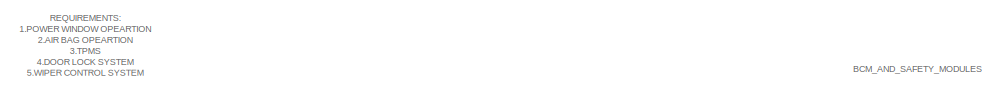
[diagram: root canvas - part 1/4, top left region]
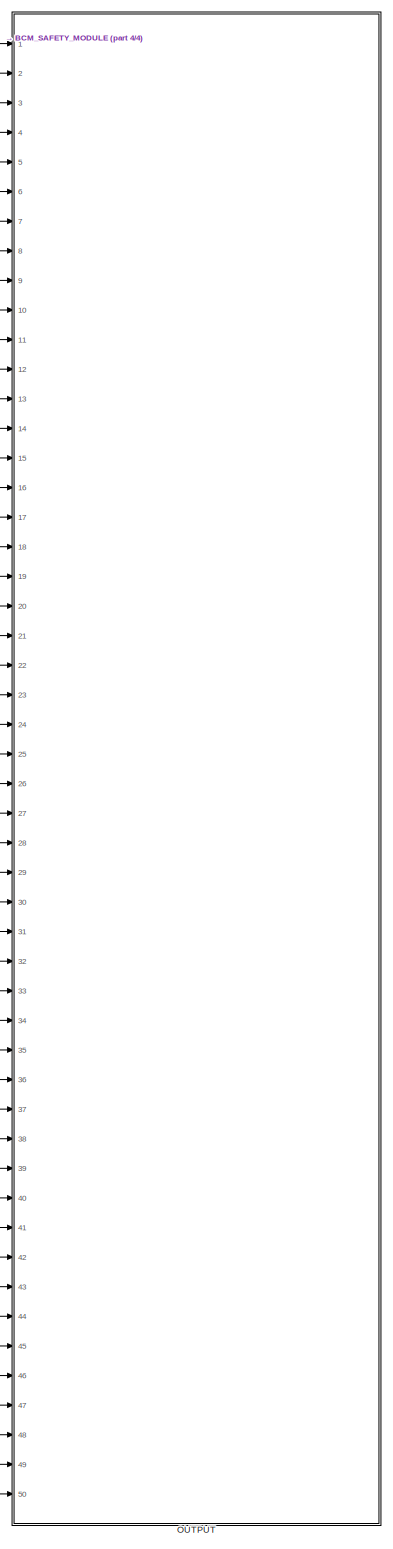
[diagram: root canvas - part 2/4, right side, full height]
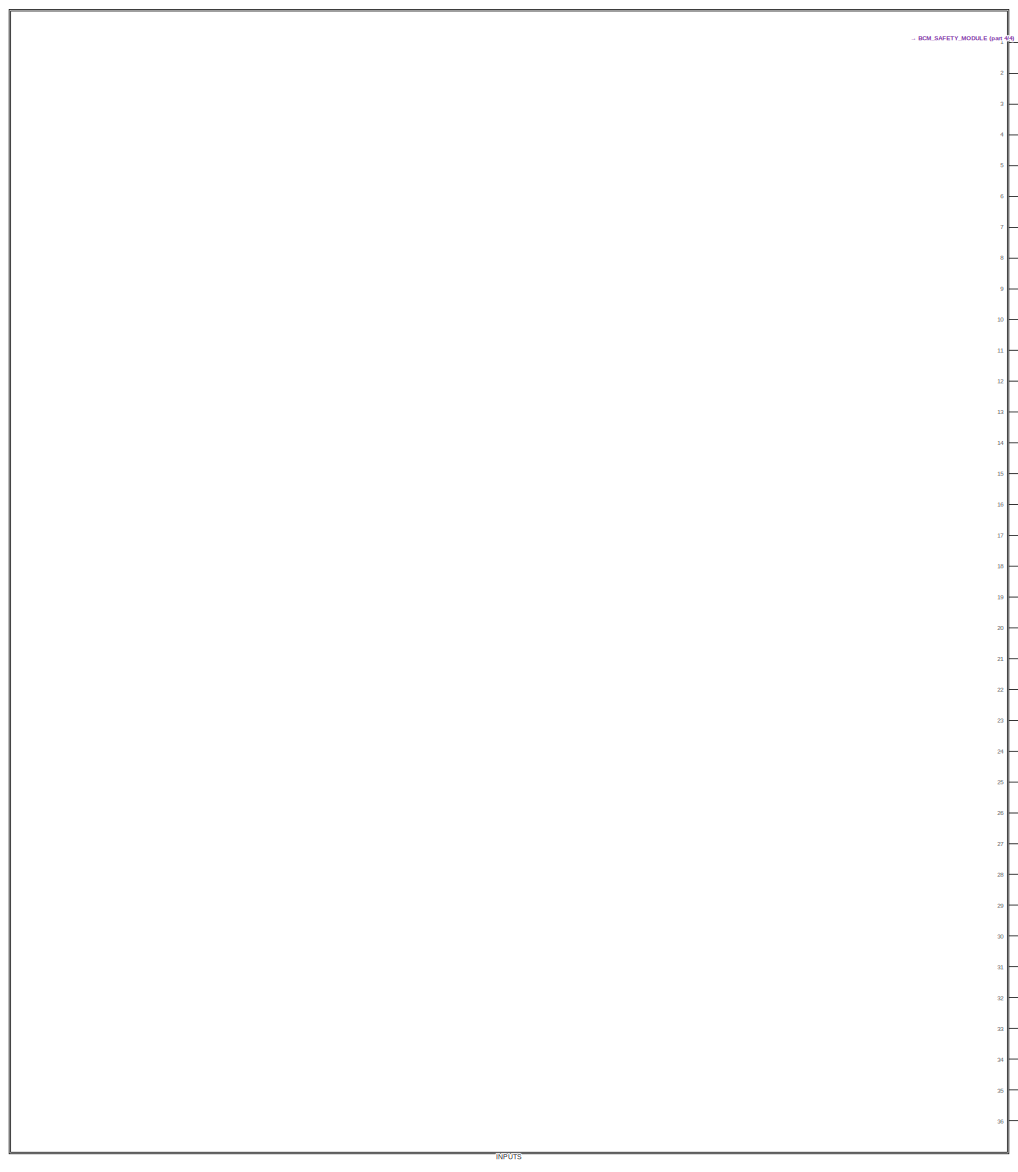
[diagram: root canvas - part 3/4, left side, full height]
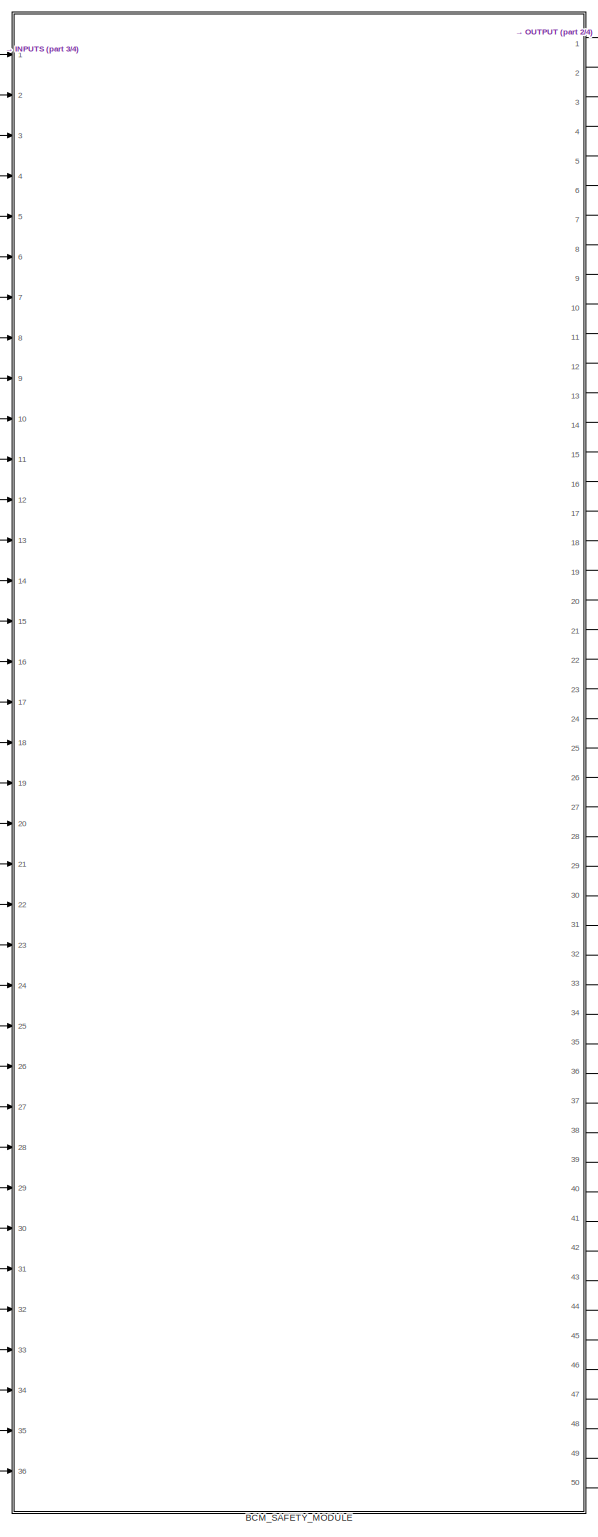
[diagram: root canvas - part 4/4, center side, full height]
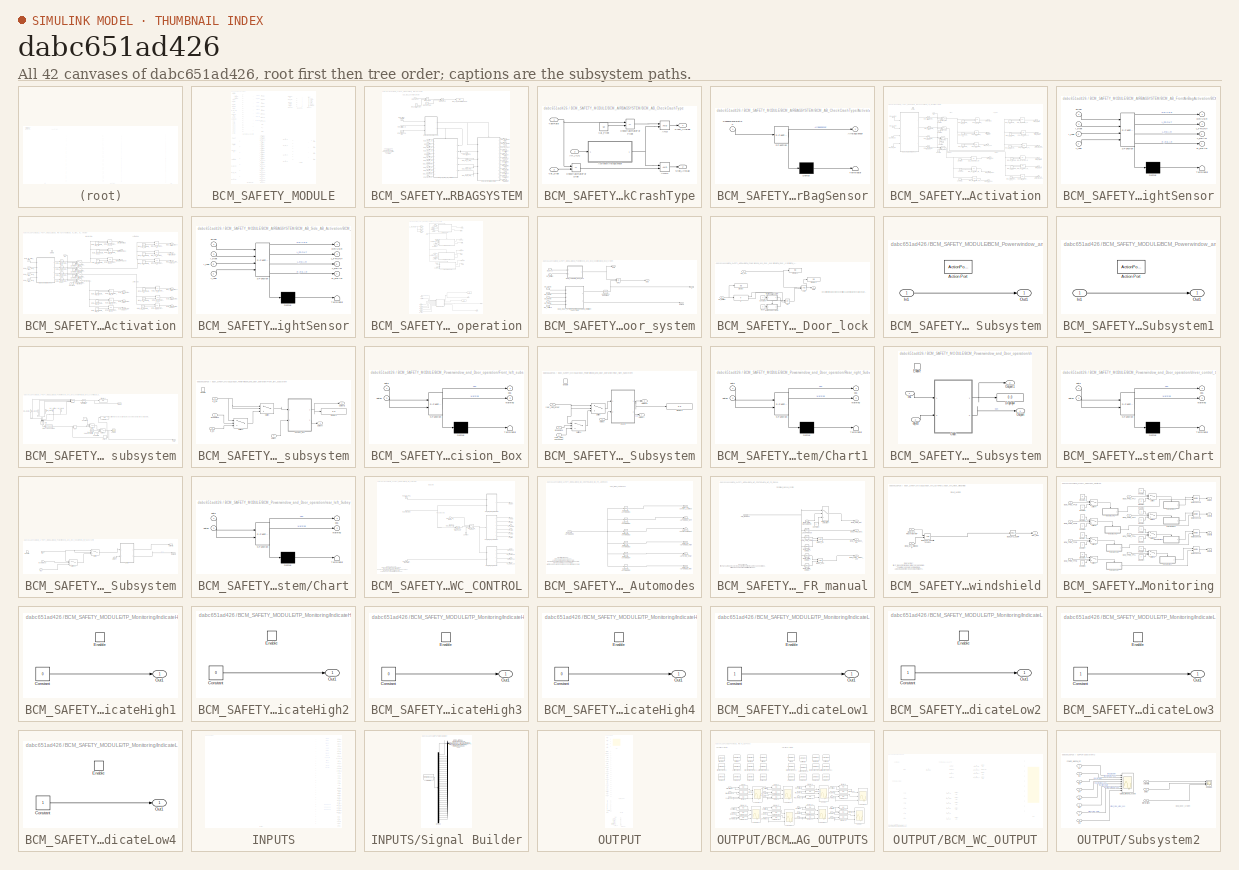
[diagram: thumbnail index - all 42 canvases of the model, root first then tree order]
MODEL slx_dabc651ad426
KIND model
CONFIG AbsTol = auto
CONFIG EnableMultiTasking = off
CONFIG FixedStep = auto
CONFIG MaxStep = auto
CONFIG MinStep = auto
CONFIG RelTol = 1e-3
CONFIG SampleTimeConstraint = Unconstrained
CONFIG SolverName = VariableStepAuto
CONFIG StartTime = 0.0
CONFIG StopTime = 97
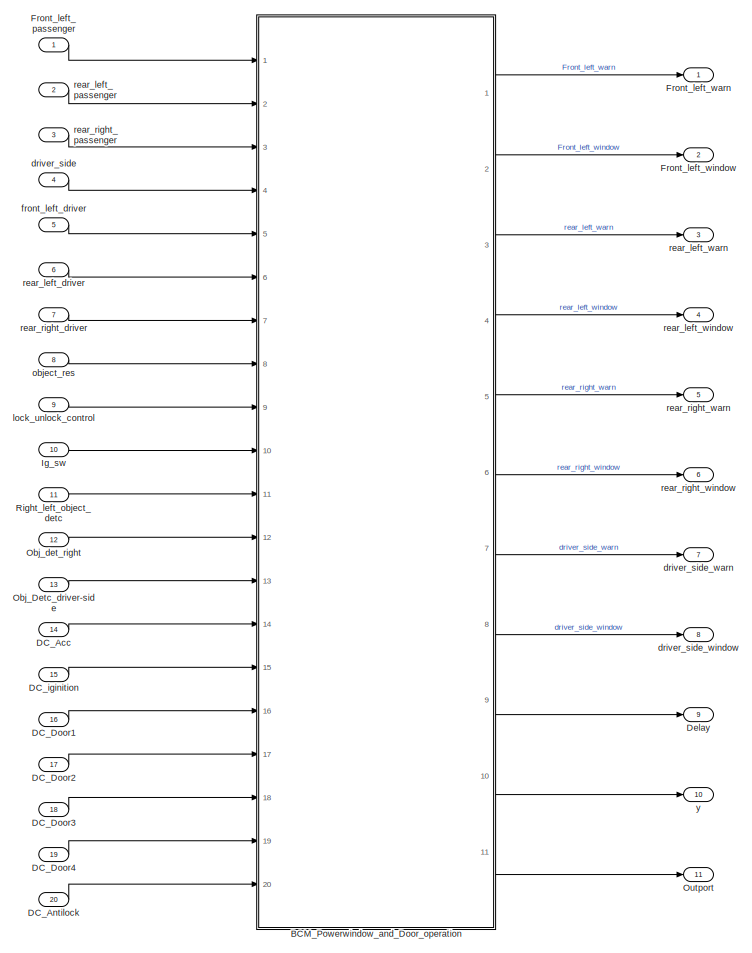
[diagram: BCM_SAFETY_MODULE - part 1/4, top left region]
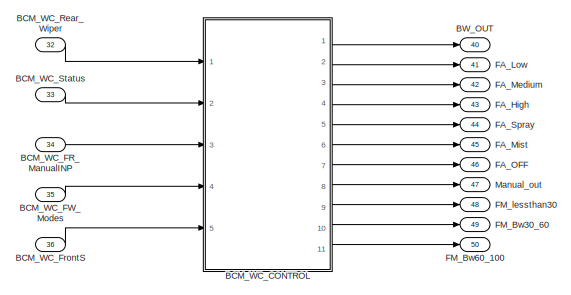
[diagram: BCM_SAFETY_MODULE - part 2/4, top right region]
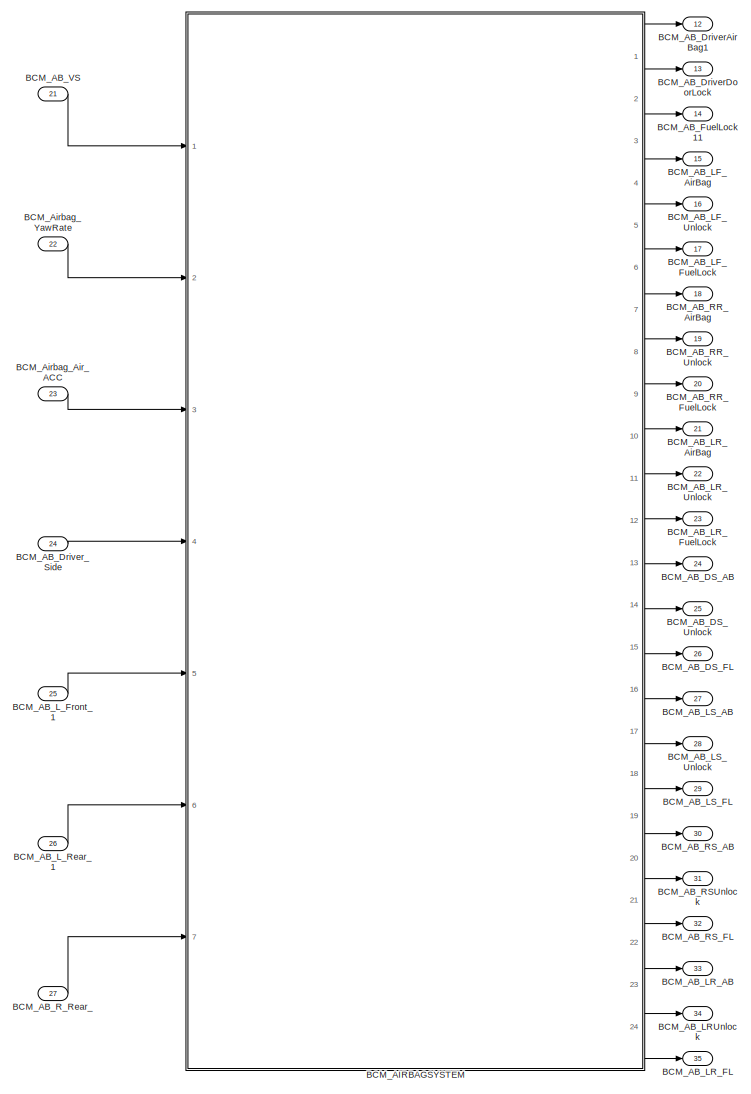
[diagram: BCM_SAFETY_MODULE - part 3/4, bottom left region]
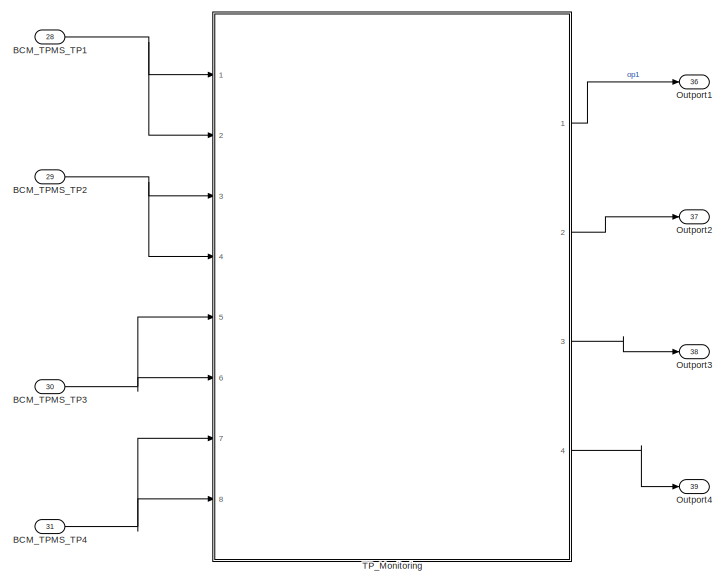
[diagram: BCM_SAFETY_MODULE - part 4/4, middle right region]
BLOCK [SubSystem] BCM_SAFETY_MODULE
  Ports = [36, 50]
  RequestExecContextInheritance = off
BLOCK [Outport] BCM_SAFETY_MODULE/BCM_AB_DS_AB
  Port = 24
BLOCK [Outport] BCM_SAFETY_MODULE/BCM_AB_DS_FL
  Port = 26
BLOCK [Outport] BCM_SAFETY_MODULE/BCM_AB_DS_Unlock
  Port = 25
BLOCK [Outport] BCM_SAFETY_MODULE/BCM_AB_DriverAirBag1
  Port = 12
BLOCK [Outport] BCM_SAFETY_MODULE/BCM_AB_DriverDoorLock
  Port = 13
BLOCK [Inport] BCM_SAFETY_MODULE/BCM_AB_Driver_Side
  Port = 24
BLOCK [Outport] BCM_SAFETY_MODULE/BCM_AB_FuelLock11
  Port = 14
BLOCK [Outport] BCM_SAFETY_MODULE/BCM_AB_LF_AirBag
  Port = 15
BLOCK [Outport] BCM_SAFETY_MODULE/BCM_AB_LF_FuelLock
  Port = 17
BLOCK [Outport] BCM_SAFETY_MODULE/BCM_AB_LF_Unlock
  Port = 16
BLOCK [Outport] BCM_SAFETY_MODULE/BCM_AB_LRUnlock
  Port = 34
BLOCK [Outport] BCM_SAFETY_MODULE/BCM_AB_LR_AB
  Port = 33
BLOCK [Outport] BCM_SAFETY_MODULE/BCM_AB_LR_AirBag
  Port = 21
BLOCK [Outport] BCM_SAFETY_MODULE/BCM_AB_LR_FL
  Port = 35
BLOCK [Outport] BCM_SAFETY_MODULE/BCM_AB_LR_FuelLock
  Port = 23
BLOCK [Outport] BCM_SAFETY_MODULE/BCM_AB_LR_Unlock
  Port = 22
BLOCK [Outport] BCM_SAFETY_MODULE/BCM_AB_LS_AB
  Port = 27
BLOCK [Outport] BCM_SAFETY_MODULE/BCM_AB_LS_FL
  Port = 29
BLOCK [Outport] BCM_SAFETY_MODULE/BCM_AB_LS_Unlock
  Port = 28
BLOCK [Inport] BCM_SAFETY_MODULE/BCM_AB_L_Front_1
  Port = 25
BLOCK [Inport] BCM_SAFETY_MODULE/BCM_AB_L_Rear_1
  Port = 26
BLOCK [Outport] BCM_SAFETY_MODULE/BCM_AB_RR_AirBag
  Port = 18
BLOCK [Outport] BCM_SAFETY_MODULE/BCM_AB_RR_FuelLock
  Port = 20
BLOCK [Outport] BCM_SAFETY_MODULE/BCM_AB_RR_Unlock
  Port = 19
BLOCK [Outport] BCM_SAFETY_MODULE/BCM_AB_RSUnlock
  Port = 31
BLOCK [Outport] BCM_SAFETY_MODULE/BCM_AB_RS_AB
  Port = 30
BLOCK [Outport] BCM_SAFETY_MODULE/BCM_AB_RS_FL
  Port = 32
BLOCK [Inport] BCM_SAFETY_MODULE/BCM_AB_R_Rear_
  Port = 27
BLOCK [Inport] BCM_SAFETY_MODULE/BCM_AB_VS
  Port = 21
BLOCK [SubSystem] BCM_SAFETY_MODULE/BCM_AIRBAGSYSTEM
  Ports = [7, 24]
  RequestExecContextInheritance = off
BLOCK [SubSystem] BCM_SAFETY_MODULE/BCM_AIRBAGSYSTEM/BCM_AB_CheckCrashType
  Ports = [3, 2]
  RequestExecContextInheritance = off
BLOCK [Logic] BCM_SAFETY_MODULE/BCM_AIRBAGSYSTEM/BCM_AB_CheckCrashType/AND
  AllPortsSameDT = off
  IconShape = distinctive
  OutDataTypeStr = boolean
  Ports = [2, 1]
BLOCK [Logic] BCM_SAFETY_MODULE/BCM_AIRBAGSYSTEM/BCM_AB_CheckCrashType/AND1
  AllPortsSameDT = off
  IconShape = distinctive
  OutDataTypeStr = boolean
  Ports = [2, 1]
BLOCK [SubSystem] BCM_SAFETY_MODULE/BCM_AIRBAGSYSTEM/BCM_AB_CheckCrashType/ActivateAirBagSensor
  ErrorFcn = Stateflow.Translate.translate
  PermitHierarchicalResolution = ExplicitOnly
  Ports = [1, 1]
  RequestExecContextInheritance = off
  SFBlockType = MATLAB Function
  TreatAsAtomicUnit = on
BLOCK [Demux] BCM_SAFETY_MODULE/BCM_AIRBAGSYSTEM/BCM_AB_CheckCrashType/ActivateAirBagSensor/ Demux 
  Outputs = 1
  Ports = [1, 1]
BLOCK [S-Function] BCM_SAFETY_MODULE/BCM_AIRBAGSYSTEM/BCM_AB_CheckCrashType/ActivateAirBagSensor/ SFunction 
  EnableBusSupport = on
  FunctionName = sf_sfun
  PortCounts = [1 2]
  Ports = [1, 2]
  SFcnIsStateOwnerBlock = off
  SFunctionDeploymentMode = off
  Tag = Stateflow S-Function 5
BLOCK [Terminator] BCM_SAFETY_MODULE/BCM_AIRBAGSYSTEM/BCM_AB_CheckCrashType/ActivateAirBagSensor/ Terminator 
BLOCK [Outport] BCM_SAFETY_MODULE/BCM_AIRBAGSYSTEM/BCM_AB_CheckCrashType/ActivateAirBagSensor/AirBagSensor
BLOCK [Inport] BCM_SAFETY_MODULE/BCM_AIRBAGSYSTEM/BCM_AB_CheckCrashType/ActivateAirBagSensor/SuddenDeceleration
BLOCK [Inport] BCM_SAFETY_MODULE/BCM_AIRBAGSYSTEM/BCM_AB_CheckCrashType/Air_ACC
  Port = 2
BLOCK [RelationalOperator] BCM_SAFETY_MODULE/BCM_AIRBAGSYSTEM/BCM_AB_CheckCrashType/CheckYawRateForFront
  InputSameDT = off
  Operator = ==
  OutDataTypeStr = boolean
  Ports = [2, 1]
  RndMeth = Simplest
BLOCK [RelationalOperator] BCM_SAFETY_MODULE/BCM_AIRBAGSYSTEM/BCM_AB_CheckCrashType/CheckYawRateForSide
  InputSameDT = off
  Operator = ==
  OutDataTypeStr = boolean
  Ports = [2, 1]
  RndMeth = Simplest
BLOCK [Outport] BCM_SAFETY_MODULE/BCM_AIRBAGSYSTEM/BCM_AB_CheckCrashType/Front_AirBag
BLOCK [Outport] BCM_SAFETY_MODULE/BCM_AIRBAGSYSTEM/BCM_AB_CheckCrashType/Side_AirBag
  Port = 2
BLOCK [Constant] BCM_SAFETY_MODULE/BCM_AIRBAGSYSTEM/BCM_AB_CheckCrashType/Val_Front
  Value = 50
BLOCK [Inport] BCM_SAFETY_MODULE/BCM_AIRBAGSYSTEM/BCM_AB_CheckCrashType/Val_Side
  Port = 3
BLOCK [Inport] BCM_SAFETY_MODULE/BCM_AIRBAGSYSTEM/BCM_AB_CheckCrashType/YawRate
BLOCK [Constant] BCM_SAFETY_MODULE/BCM_AIRBAGSYSTEM/BCM_AB_ConstantVS
  Value = 50
BLOCK [Sum] BCM_SAFETY_MODULE/BCM_AIRBAGSYSTEM/BCM_AB_DD
  IconShape = rectangular
  Inputs = +-
  Ports = [2, 1]
BLOCK [Outport] BCM_SAFETY_MODULE/BCM_AIRBAGSYSTEM/BCM_AB_DS_AB
  NameLocation = top
  Port = 13
BLOCK [Outport] BCM_SAFETY_MODULE/BCM_AIRBAGSYSTEM/BCM_AB_DS_FL
  NameLocation = top
  Port = 15
BLOCK [Outport] BCM_SAFETY_MODULE/BCM_AIRBAGSYSTEM/BCM_AB_DS_Unlock
  NameLocation = top
  Port = 14
BLOCK [Display] BCM_SAFETY_MODULE/BCM_AIRBAGSYSTEM/BCM_AB_DecelerationSpeed
  Decimation = 1
  Ports = [1]
BLOCK [Outport] BCM_SAFETY_MODULE/BCM_AIRBAGSYSTEM/BCM_AB_DriverAirBag1
BLOCK [Outport] BCM_SAFETY_MODULE/BCM_AIRBAGSYSTEM/BCM_AB_DriverDoorLock
  Port = 2
BLOCK [Inport] BCM_SAFETY_MODULE/BCM_AIRBAGSYSTEM/BCM_AB_Driver_Side
  NameLocation = top
  Port = 4
BLOCK [SubSystem] BCM_SAFETY_MODULE/BCM_AIRBAGSYSTEM/BCM_AB_FrontAirBagActivation
  Ports = [5, 12, 1]
  RequestExecContextInheritance = off
  TreatAsAtomicUnit = on
BLOCK [Constant] BCM_SAFETY_MODULE/BCM_AIRBAGSYSTEM/BCM_AB_FrontAirBagActivation/BCM_AB_Compare_DS_AB
BLOCK [Reference] BCM_SAFETY_MODULE/BCM_AIRBAGSYSTEM/BCM_AB_FrontAirBagActivation/BCM_AB_Compare_Driver  REF=simulink/Logic and Bit
Operations/Compare
To Constant
  Ports = [1, 1]
  SourceBlock = simulink/Logic and Bit\nOperations/Compare\nTo Constant
  SourceProductBaseCode = SL
  SourceType = Compare To Constant
BLOCK [Reference] BCM_SAFETY_MODULE/BCM_AIRBAGSYSTEM/BCM_AB_FrontAirBagActivation/BCM_AB_Compare_Front  REF=simulink/Logic and Bit
Operations/Compare
To Constant
  Ports = [1, 1]
  SourceBlock = simulink/Logic and Bit\nOperations/Compare\nTo Constant
  SourceProductBaseCode = SL
  SourceType = Compare To Constant
BLOCK [Constant] BCM_SAFETY_MODULE/BCM_AIRBAGSYSTEM/BCM_AB_FrontAirBagActivation/BCM_AB_Compare_LF
BLOCK [Constant] BCM_SAFETY_MODULE/BCM_AIRBAGSYSTEM/BCM_AB_FrontAirBagActivation/BCM_AB_Compare_LF_FL
BLOCK [Constant] BCM_SAFETY_MODULE/BCM_AIRBAGSYSTEM/BCM_AB_FrontAirBagActivation/BCM_AB_Compare_LF_UL
BLOCK [Constant] BCM_SAFETY_MODULE/BCM_AIRBAGSYSTEM/BCM_AB_FrontAirBagActivation/BCM_AB_Compare_LR
BLOCK [Constant] BCM_SAFETY_MODULE/BCM_AIRBAGSYSTEM/BCM_AB_FrontAirBagActivation/BCM_AB_Compare_LR_UL
BLOCK [Reference] BCM_SAFETY_MODULE/BCM_AIRBAGSYSTEM/BCM_AB_FrontAirBagActivation/BCM_AB_Compare_Left_Rear  REF=simulink/Logic and Bit
Operations/Compare
To Constant
  Ports = [1, 1]
  SourceBlock = simulink/Logic and Bit\nOperations/Compare\nTo Constant
  SourceProductBaseCode = SL
  SourceType = Compare To Constant
BLOCK [Reference] BCM_SAFETY_MODULE/BCM_AIRBAGSYSTEM/BCM_AB_FrontAirBagActivation/BCM_AB_Compare_Right_Rear  REF=simulink/Logic and Bit
Operations/Compare
To Constant
  Ports = [1, 1]
  SourceBlock = simulink/Logic and Bit\nOperations/Compare\nTo Constant
  SourceProductBaseCode = SL
  SourceType = Compare To Constant
BLOCK [Constant] BCM_SAFETY_MODULE/BCM_AIRBAGSYSTEM/BCM_AB_FrontAirBagActivation/BCM_AB_Compare_SFL
BLOCK [Constant] BCM_SAFETY_MODULE/BCM_AIRBAGSYSTEM/BCM_AB_FrontAirBagActivation/BCM_AB_Compare_SUL
BLOCK [RelationalOperator] BCM_SAFETY_MODULE/BCM_AIRBAGSYSTEM/BCM_AB_FrontAirBagActivation/BCM_AB_Decision_DS_AB
  InputSameDT = off
  Operator = ==
  OutDataTypeStr = boolean
  Ports = [2, 1]
  RndMeth = Simplest
BLOCK [RelationalOperator] BCM_SAFETY_MODULE/BCM_AIRBAGSYSTEM/BCM_AB_FrontAirBagActivation/BCM_AB_Decision_LF
  InputSameDT = off
  Operator = ==
  OutDataTypeStr = boolean
  Ports = [2, 1]
  RndMeth = Simplest
BLOCK [RelationalOperator] BCM_SAFETY_MODULE/BCM_AIRBAGSYSTEM/BCM_AB_FrontAirBagActivation/BCM_AB_Decision_LF_FL
  InputSameDT = off
  Operator = ==
  OutDataTypeStr = boolean
  Ports = [2, 1]
  RndMeth = Simplest
BLOCK [RelationalOperator] BCM_SAFETY_MODULE/BCM_AIRBAGSYSTEM/BCM_AB_FrontAirBagActivation/BCM_AB_Decision_LF_UL
  InputSameDT = off
  Operator = ==
  OutDataTypeStr = boolean
  Ports = [2, 1]
  RndMeth = Simplest
BLOCK [RelationalOperator] BCM_SAFETY_MODULE/BCM_AIRBAGSYSTEM/BCM_AB_FrontAirBagActivation/BCM_AB_Decision_LR
  InputSameDT = off
  Operator = ==
  OutDataTypeStr = boolean
  Ports = [2, 1]
  RndMeth = Simplest
BLOCK [RelationalOperator] BCM_SAFETY_MODULE/BCM_AIRBAGSYSTEM/BCM_AB_FrontAirBagActivation/BCM_AB_Decision_LR_FL
  InputSameDT = off
  Operator = ==
  OutDataTypeStr = boolean
  Ports = [2, 1]
  RndMeth = Simplest
BLOCK [RelationalOperator] BCM_SAFETY_MODULE/BCM_AIRBAGSYSTEM/BCM_AB_FrontAirBagActivation/BCM_AB_Decision_LR_UL
  InputSameDT = off
  Operator = ==
  OutDataTypeStr = boolean
  Ports = [2, 1]
  RndMeth = Simplest
BLOCK [RelationalOperator] BCM_SAFETY_MODULE/BCM_AIRBAGSYSTEM/BCM_AB_FrontAirBagActivation/BCM_AB_Decision_RR
  InputSameDT = off
  Operator = ==
  OutDataTypeStr = boolean
  Ports = [2, 1]
  RndMeth = Simplest
BLOCK [RelationalOperator] BCM_SAFETY_MODULE/BCM_AIRBAGSYSTEM/BCM_AB_FrontAirBagActivation/BCM_AB_Decision_RR_FL
  InputSameDT = off
  Operator = ==
  OutDataTypeStr = boolean
  Ports = [2, 1]
  RndMeth = Simplest
BLOCK [RelationalOperator] BCM_SAFETY_MODULE/BCM_AIRBAGSYSTEM/BCM_AB_FrontAirBagActivation/BCM_AB_Decision_RR_UL
  InputSameDT = off
  Operator = ==
  OutDataTypeStr = boolean
  Ports = [2, 1]
  RndMeth = Simplest
BLOCK [RelationalOperator] BCM_SAFETY_MODULE/BCM_AIRBAGSYSTEM/BCM_AB_FrontAirBagActivation/BCM_AB_Decision_SFL
  InputSameDT = off
  Operator = ==
  OutDataTypeStr = boolean
  Ports = [2, 1]
  RndMeth = Simplest
BLOCK [RelationalOperator] BCM_SAFETY_MODULE/BCM_AIRBAGSYSTEM/BCM_AB_FrontAirBagActivation/BCM_AB_Decision_SUL
  InputSameDT = off
  Operator = ==
  OutDataTypeStr = boolean
  Ports = [2, 1]
  RndMeth = Simplest
BLOCK [Outport] BCM_SAFETY_MODULE/BCM_AIRBAGSYSTEM/BCM_AB_FrontAirBagActivation/BCM_AB_Left_Front_Air_Bag
  Port = 4
BLOCK [Outport] BCM_SAFETY_MODULE/BCM_AIRBAGSYSTEM/BCM_AB_FrontAirBagActivation/BCM_AB_Left_Front_Fuel_Lock
  Port = 6
BLOCK [Outport] BCM_SAFETY_MODULE/BCM_AIRBAGSYSTEM/BCM_AB_FrontAirBagActivation/BCM_AB_Left_Front_Unlock
  Port = 5
BLOCK [Outport] BCM_SAFETY_MODULE/BCM_AIRBAGSYSTEM/BCM_AB_FrontAirBagActivation/BCM_AB_Left_Rear_Air_Bag
  Port = 10
BLOCK [Outport] BCM_SAFETY_MODULE/BCM_AIRBAGSYSTEM/BCM_AB_FrontAirBagActivation/BCM_AB_Left_Rear_Fuel_Lock
  Port = 12
BLOCK [Outport] BCM_SAFETY_MODULE/BCM_AIRBAGSYSTEM/BCM_AB_FrontAirBagActivation/BCM_AB_Left_Rear_Unlock
  Port = 11
BLOCK [SubSystem] BCM_SAFETY_MODULE/BCM_AIRBAGSYSTEM/BCM_AB_FrontAirBagActivation/BCM_AB_SIDE_WeightSensor
  ErrorFcn = Stateflow.Translate.translate
  PermitHierarchicalResolution = ExplicitOnly
  Ports = [4, 4]
  RequestExecContextInheritance = off
  SFBlockType = MATLAB Function
  TreatAsAtomicUnit = on
BLOCK [Demux] BCM_SAFETY_MODULE/BCM_AIRBAGSYSTEM/BCM_AB_FrontAirBagActivation/BCM_AB_SIDE_WeightSensor/ Demux 
  Outputs = 1
  Ports = [1, 1]
BLOCK [S-Function] BCM_SAFETY_MODULE/BCM_AIRBAGSYSTEM/BCM_AB_FrontAirBagActivation/BCM_AB_SIDE_WeightSensor/ SFunction 
  EnableBusSupport = on
  FunctionName = sf_sfun
  PortCounts = [4 5]
  Ports = [4, 5]
  SFcnIsStateOwnerBlock = off
  SFunctionDeploymentMode = off
  Tag = Stateflow S-Function 6
BLOCK [Terminator] BCM_SAFETY_MODULE/BCM_AIRBAGSYSTEM/BCM_AB_FrontAirBagActivation/BCM_AB_SIDE_WeightSensor/ Terminator 
BLOCK [Outport] BCM_SAFETY_MODULE/BCM_AIRBAGSYSTEM/BCM_AB_FrontAirBagActivation/BCM_AB_SIDE_WeightSensor/DRIVER
BLOCK [Outport] BCM_SAFETY_MODULE/BCM_AIRBAGSYSTEM/BCM_AB_FrontAirBagActivation/BCM_AB_SIDE_WeightSensor/L_FRONT
  Port = 2
BLOCK [Outport] BCM_SAFETY_MODULE/BCM_AIRBAGSYSTEM/BCM_AB_FrontAirBagActivation/BCM_AB_SIDE_WeightSensor/L_REAR
  Port = 3
BLOCK [Outport] BCM_SAFETY_MODULE/BCM_AIRBAGSYSTEM/BCM_AB_FrontAirBagActivation/BCM_AB_SIDE_WeightSensor/R_REAR
  Port = 4
BLOCK [Inport] BCM_SAFETY_MODULE/BCM_AIRBAGSYSTEM/BCM_AB_FrontAirBagActivation/BCM_AB_SIDE_WeightSensor/driver
BLOCK [Inport] BCM_SAFETY_MODULE/BCM_AIRBAGSYSTEM/BCM_AB_FrontAirBagActivation/BCM_AB_SIDE_WeightSensor/l_front
  Port = 2
BLOCK [Inport] BCM_SAFETY_MODULE/BCM_AIRBAGSYSTEM/BCM_AB_FrontAirBagActivation/BCM_AB_SIDE_WeightSensor/l_rear
  Port = 3
BLOCK [Inport] BCM_SAFETY_MODULE/BCM_AIRBAGSYSTEM/BCM_AB_FrontAirBagActivation/BCM_AB_SIDE_WeightSensor/r_rear
  Port = 4
BLOCK [Inport] BCM_SAFETY_MODULE/BCM_AIRBAGSYSTEM/BCM_AB_FrontAirBagActivation/BCM_AB_driver
  Port = 2
BLOCK [Inport] BCM_SAFETY_MODULE/BCM_AIRBAGSYSTEM/BCM_AB_FrontAirBagActivation/BCM_AB_l_front
  Port = 3
BLOCK [Inport] BCM_SAFETY_MODULE/BCM_AIRBAGSYSTEM/BCM_AB_FrontAirBagActivation/BCM_AB_l_rear
  Port = 4
BLOCK [Inport] BCM_SAFETY_MODULE/BCM_AIRBAGSYSTEM/BCM_AB_FrontAirBagActivation/BCM_AB_r_rear
  Port = 5
BLOCK [Constant] BCM_SAFETY_MODULE/BCM_AIRBAGSYSTEM/BCM_AB_FrontAirBagActivation/BCM_LR_Decision_LR_FL
BLOCK [Constant] BCM_SAFETY_MODULE/BCM_AIRBAGSYSTEM/BCM_AB_FrontAirBagActivation/Constant
  Value = -1
BLOCK [Constant] BCM_SAFETY_MODULE/BCM_AIRBAGSYSTEM/BCM_AB_FrontAirBagActivation/Constant1
  Value = -1
BLOCK [Constant] BCM_SAFETY_MODULE/BCM_AIRBAGSYSTEM/BCM_AB_FrontAirBagActivation/Constant10
BLOCK [Constant] BCM_SAFETY_MODULE/BCM_AIRBAGSYSTEM/BCM_AB_FrontAirBagActivation/Constant11
BLOCK [Constant] BCM_SAFETY_MODULE/BCM_AIRBAGSYSTEM/BCM_AB_FrontAirBagActivation/Constant2
  Value = -1
BLOCK [Constant] BCM_SAFETY_MODULE/BCM_AIRBAGSYSTEM/BCM_AB_FrontAirBagActivation/Constant3
  Value = -1
BLOCK [Constant] BCM_SAFETY_MODULE/BCM_AIRBAGSYSTEM/BCM_AB_FrontAirBagActivation/Constant9
BLOCK [Outport] BCM_SAFETY_MODULE/BCM_AIRBAGSYSTEM/BCM_AB_FrontAirBagActivation/Driver_Air_Bag
BLOCK [Outport] BCM_SAFETY_MODULE/BCM_AIRBAGSYSTEM/BCM_AB_FrontAirBagActivation/Driver_Door_Unlock
  Port = 2
BLOCK [Outport] BCM_SAFETY_MODULE/BCM_AIRBAGSYSTEM/BCM_AB_FrontAirBagActivation/Driver_Fuel_Lock
  Port = 3
BLOCK [EnablePort] BCM_SAFETY_MODULE/BCM_AIRBAGSYSTEM/BCM_AB_FrontAirBagActivation/Enable
  Ports = []
BLOCK [Outport] BCM_SAFETY_MODULE/BCM_AIRBAGSYSTEM/BCM_AB_FrontAirBagActivation/Right_Rear_Air_Bag
  Port = 7
BLOCK [Outport] BCM_SAFETY_MODULE/BCM_AIRBAGSYSTEM/BCM_AB_FrontAirBagActivation/Right_Rear_Fuel_Lock
  Port = 9
BLOCK [Outport] BCM_SAFETY_MODULE/BCM_AIRBAGSYSTEM/BCM_AB_FrontAirBagActivation/Right_Rear_Unlock
  Port = 8
BLOCK [Switch] BCM_SAFETY_MODULE/BCM_AIRBAGSYSTEM/BCM_AB_FrontAirBagActivation/Switch_Driver
  Criteria = u2 > Threshold
  InputSameDT = off
  SaturateOnIntegerOverflow = off
BLOCK [Switch] BCM_SAFETY_MODULE/BCM_AIRBAGSYSTEM/BCM_AB_FrontAirBagActivation/Switch_Front
  Criteria = u2 > Threshold
  InputSameDT = off
  SaturateOnIntegerOverflow = off
BLOCK [Switch] BCM_SAFETY_MODULE/BCM_AIRBAGSYSTEM/BCM_AB_FrontAirBagActivation/Switch_LRear
  Criteria = u2 > Threshold
  InputSameDT = off
  SaturateOnIntegerOverflow = off
BLOCK [Switch] BCM_SAFETY_MODULE/BCM_AIRBAGSYSTEM/BCM_AB_FrontAirBagActivation/Switch_RRear
  Criteria = u2 > Threshold
  InputSameDT = off
  SaturateOnIntegerOverflow = off
BLOCK [Inport] BCM_SAFETY_MODULE/BCM_AIRBAGSYSTEM/BCM_AB_FrontAirBagActivation/True
BLOCK [Outport] BCM_SAFETY_MODULE/BCM_AIRBAGSYSTEM/BCM_AB_FuelLock11
  Port = 3
BLOCK [Outport] BCM_SAFETY_MODULE/BCM_AIRBAGSYSTEM/BCM_AB_LF_AirBag
  Port = 4
BLOCK [Outport] BCM_SAFETY_MODULE/BCM_AIRBAGSYSTEM/BCM_AB_LF_FuelLock
  Port = 6
BLOCK [Outport] BCM_SAFETY_MODULE/BCM_AIRBAGSYSTEM/BCM_AB_LF_Unlock
  Port = 5
BLOCK [Outport] BCM_SAFETY_MODULE/BCM_AIRBAGSYSTEM/BCM_AB_LRUnlock
  NameLocation = top
  Port = 23
BLOCK [Outport] BCM_SAFETY_MODULE/BCM_AIRBAGSYSTEM/BCM_AB_LR_AB
  NameLocation = top
  Port = 22
BLOCK [Outport] BCM_SAFETY_MODULE/BCM_AIRBAGSYSTEM/BCM_AB_LR_AirBag
  Port = 10
BLOCK [Outport] BCM_SAFETY_MODULE/BCM_AIRBAGSYSTEM/BCM_AB_LR_FL
  NameLocation = top
  Port = 24
BLOCK [Outport] BCM_SAFETY_MODULE/BCM_AIRBAGSYSTEM/BCM_AB_LR_FuelLock
  Port = 12
BLOCK [Outport] BCM_SAFETY_MODULE/BCM_AIRBAGSYSTEM/BCM_AB_LR_Unlock
  Port = 11
BLOCK [Outport] BCM_SAFETY_MODULE/BCM_AIRBAGSYSTEM/BCM_AB_LS_AB
  NameLocation = top
  Port = 16
BLOCK [Outport] BCM_SAFETY_MODULE/BCM_AIRBAGSYSTEM/BCM_AB_LS_FL
  NameLocation = top
  Port = 18
BLOCK [Outport] BCM_SAFETY_MODULE/BCM_AIRBAGSYSTEM/BCM_AB_LS_Unlock
  NameLocation = top
  Port = 17
BLOCK [Inport] BCM_SAFETY_MODULE/BCM_AIRBAGSYSTEM/BCM_AB_L_Front_1
  Port = 5
BLOCK [Inport] BCM_SAFETY_MODULE/BCM_AIRBAGSYSTEM/BCM_AB_L_Rear_1
  Port = 6
BLOCK [Outport] BCM_SAFETY_MODULE/BCM_AIRBAGSYSTEM/BCM_AB_RR_AirBag
  Port = 7
BLOCK [Outport] BCM_SAFETY_MODULE/BCM_AIRBAGSYSTEM/BCM_AB_RR_FuelLock
  Port = 9
BLOCK [Outport] BCM_SAFETY_MODULE/BCM_AIRBAGSYSTEM/BCM_AB_RR_Unlock
  Port = 8
BLOCK [Outport] BCM_SAFETY_MODULE/BCM_AIRBAGSYSTEM/BCM_AB_RSUnlock
  NameLocation = top
  Port = 20
BLOCK [Outport] BCM_SAFETY_MODULE/BCM_AIRBAGSYSTEM/BCM_AB_RS_AB
  NameLocation = top
  Port = 19
BLOCK [Outport] BCM_SAFETY_MODULE/BCM_AIRBAGSYSTEM/BCM_AB_RS_FL
  NameLocation = top
  Port = 21
BLOCK [Inport] BCM_SAFETY_MODULE/BCM_AIRBAGSYSTEM/BCM_AB_R_Rear_
  Port = 7
BLOCK [RelationalOperator] BCM_SAFETY_MODULE/BCM_AIRBAGSYSTEM/BCM_AB_SD
  InputSameDT = off
  OutDataTypeStr = boolean
  Ports = [2, 1]
  RndMeth = Simplest
BLOCK [SubSystem] BCM_SAFETY_MODULE/BCM_AIRBAGSYSTEM/BCM_AB_Side_AB_Activation
  Ports = [5, 12, 1]
  RequestExecContextInheritance = off
  TreatAsAtomicUnit = on
BLOCK [Constant] BCM_SAFETY_MODULE/BCM_AIRBAGSYSTEM/BCM_AB_Side_AB_Activation/BCM_AB_Compare_DS_AB
BLOCK [Constant] BCM_SAFETY_MODULE/BCM_AIRBAGSYSTEM/BCM_AB_Side_AB_Activation/BCM_AB_Compare_DS_FL
BLOCK [Constant] BCM_SAFETY_MODULE/BCM_AIRBAGSYSTEM/BCM_AB_Side_AB_Activation/BCM_AB_Compare_DS_UL
BLOCK [Constant] BCM_SAFETY_MODULE/BCM_AIRBAGSYSTEM/BCM_AB_Side_AB_Activation/BCM_AB_Compare_FL
BLOCK [Constant] BCM_SAFETY_MODULE/BCM_AIRBAGSYSTEM/BCM_AB_Side_AB_Activation/BCM_AB_Compare_LF
BLOCK [Constant] BCM_SAFETY_MODULE/BCM_AIRBAGSYSTEM/BCM_AB_Side_AB_Activation/BCM_AB_Compare_LF_AB
BLOCK [Constant] BCM_SAFETY_MODULE/BCM_AIRBAGSYSTEM/BCM_AB_Side_AB_Activation/BCM_AB_Compare_LR
BLOCK [Constant] BCM_SAFETY_MODULE/BCM_AIRBAGSYSTEM/BCM_AB_Side_AB_Activation/BCM_AB_Compare_LR_FL
BLOCK [Constant] BCM_SAFETY_MODULE/BCM_AIRBAGSYSTEM/BCM_AB_Side_AB_Activation/BCM_AB_Compare_RR_AB
BLOCK [Constant] BCM_SAFETY_MODULE/BCM_AIRBAGSYSTEM/BCM_AB_Side_AB_Activation/BCM_AB_Compare_RR_FL
BLOCK [Constant] BCM_SAFETY_MODULE/BCM_AIRBAGSYSTEM/BCM_AB_Side_AB_Activation/BCM_AB_Compare_RR_UL
BLOCK [Constant] BCM_SAFETY_MODULE/BCM_AIRBAGSYSTEM/BCM_AB_Side_AB_Activation/BCM_AB_Compare_UL
BLOCK [RelationalOperator] BCM_SAFETY_MODULE/BCM_AIRBAGSYSTEM/BCM_AB_Side_AB_Activation/BCM_AB_Decision_DS_AB
  InputSameDT = off
  Operator = ==
  OutDataTypeStr = boolean
  Ports = [2, 1]
  RndMeth = Simplest
BLOCK [RelationalOperator] BCM_SAFETY_MODULE/BCM_AIRBAGSYSTEM/BCM_AB_Side_AB_Activation/BCM_AB_Decision_DS_FL
  InputSameDT = off
  Operator = ==
  OutDataTypeStr = boolean
  Ports = [2, 1]
  RndMeth = Simplest
BLOCK [RelationalOperator] BCM_SAFETY_MODULE/BCM_AIRBAGSYSTEM/BCM_AB_Side_AB_Activation/BCM_AB_Decision_DS_UL
  InputSameDT = off
  Operator = ==
  OutDataTypeStr = boolean
  Ports = [2, 1]
  RndMeth = Simplest
BLOCK [Reference] BCM_SAFETY_MODULE/BCM_AIRBAGSYSTEM/BCM_AB_Side_AB_Activation/BCM_AB_Decision_Driver  REF=simulink/Logic and Bit
Operations/Compare
To Constant
  Ports = [1, 1]
  SourceBlock = simulink/Logic and Bit\nOperations/Compare\nTo Constant
  SourceProductBaseCode = SL
  SourceType = Compare To Constant
BLOCK [RelationalOperator] BCM_SAFETY_MODULE/BCM_AIRBAGSYSTEM/BCM_AB_Side_AB_Activation/BCM_AB_Decision_FL
  InputSameDT = off
  Operator = ==
  OutDataTypeStr = boolean
  Ports = [2, 1]
  RndMeth = Simplest
BLOCK [Reference] BCM_SAFETY_MODULE/BCM_AIRBAGSYSTEM/BCM_AB_Side_AB_Activation/BCM_AB_Decision_LFront  REF=simulink/Logic and Bit
Operations/Compare
To Constant
  Ports = [1, 1]
  SourceBlock = simulink/Logic and Bit\nOperations/Compare\nTo Constant
  SourceProductBaseCode = SL
  SourceType = Compare To Constant
BLOCK [RelationalOperator] BCM_SAFETY_MODULE/BCM_AIRBAGSYSTEM/BCM_AB_Side_AB_Activation/BCM_AB_Decision_LR
  InputSameDT = off
  Operator = ==
  OutDataTypeStr = boolean
  Ports = [2, 1]
  RndMeth = Simplest
BLOCK [RelationalOperator] BCM_SAFETY_MODULE/BCM_AIRBAGSYSTEM/BCM_AB_Side_AB_Activation/BCM_AB_Decision_LR_FL
  InputSameDT = off
  Operator = ==
  OutDataTypeStr = boolean
  Ports = [2, 1]
  RndMeth = Simplest
BLOCK [RelationalOperator] BCM_SAFETY_MODULE/BCM_AIRBAGSYSTEM/BCM_AB_Side_AB_Activation/BCM_AB_Decision_LR_UL
  InputSameDT = off
  Operator = ==
  OutDataTypeStr = boolean
  Ports = [2, 1]
  RndMeth = Simplest
BLOCK [Reference] BCM_SAFETY_MODULE/BCM_AIRBAGSYSTEM/BCM_AB_Side_AB_Activation/BCM_AB_Decision_LRear  REF=simulink/Logic and Bit
Operations/Compare
To Constant
  Ports = [1, 1]
  SourceBlock = simulink/Logic and Bit\nOperations/Compare\nTo Constant
  SourceProductBaseCode = SL
  SourceType = Compare To Constant
BLOCK [RelationalOperator] BCM_SAFETY_MODULE/BCM_AIRBAGSYSTEM/BCM_AB_Side_AB_Activation/BCM_AB_Decision_RR_AB
  InputSameDT = off
  Operator = ==
  OutDataTypeStr = boolean
  Ports = [2, 1]
  RndMeth = Simplest
BLOCK [RelationalOperator] BCM_SAFETY_MODULE/BCM_AIRBAGSYSTEM/BCM_AB_Side_AB_Activation/BCM_AB_Decision_RR_FL
  InputSameDT = off
  Operator = ==
  OutDataTypeStr = boolean
  Ports = [2, 1]
  RndMeth = Simplest
BLOCK [RelationalOperator] BCM_SAFETY_MODULE/BCM_AIRBAGSYSTEM/BCM_AB_Side_AB_Activation/BCM_AB_Decision_RR_UL
  InputSameDT = off
  Operator = ==
  OutDataTypeStr = boolean
  Ports = [2, 1]
  RndMeth = Simplest
BLOCK [Reference] BCM_SAFETY_MODULE/BCM_AIRBAGSYSTEM/BCM_AB_Side_AB_Activation/BCM_AB_Decision_RRear  REF=simulink/Logic and Bit
Operations/Compare
To Constant
  Ports = [1, 1]
  SourceBlock = simulink/Logic and Bit\nOperations/Compare\nTo Constant
  SourceProductBaseCode = SL
  SourceType = Compare To Constant
BLOCK [RelationalOperator] BCM_SAFETY_MODULE/BCM_AIRBAGSYSTEM/BCM_AB_Side_AB_Activation/BCM_AB_Decision_UL
  InputSameDT = off
  Operator = ==
  OutDataTypeStr = boolean
  Ports = [2, 1]
  RndMeth = Simplest
BLOCK [RelationalOperator] BCM_SAFETY_MODULE/BCM_AIRBAGSYSTEM/BCM_AB_Side_AB_Activation/BCM_AB_Desicion_AB
  InputSameDT = off
  Operator = ==
  OutDataTypeStr = boolean
  Ports = [2, 1]
  RndMeth = Simplest
BLOCK [Inport] BCM_SAFETY_MODULE/BCM_AIRBAGSYSTEM/BCM_AB_Side_AB_Activation/BCM_AB_Driver_Side
  Port = 2
BLOCK [Outport] BCM_SAFETY_MODULE/BCM_AIRBAGSYSTEM/BCM_AB_Side_AB_Activation/BCM_AB_LFSideAirBag
  Port = 4
BLOCK [Outport] BCM_SAFETY_MODULE/BCM_AIRBAGSYSTEM/BCM_AB_Side_AB_Activation/BCM_AB_LF_SideUnlock
  Port = 5
BLOCK [Outport] BCM_SAFETY_MODULE/BCM_AIRBAGSYSTEM/BCM_AB_Side_AB_Activation/BCM_AB_LF_Side_FuelLock
  Port = 6
BLOCK [Outport] BCM_SAFETY_MODULE/BCM_AIRBAGSYSTEM/BCM_AB_Side_AB_Activation/BCM_AB_LRSideAirBag
  Port = 10
BLOCK [Outport] BCM_SAFETY_MODULE/BCM_AIRBAGSYSTEM/BCM_AB_Side_AB_Activation/BCM_AB_LRSideFuelLock
  Port = 12
BLOCK [Outport] BCM_SAFETY_MODULE/BCM_AIRBAGSYSTEM/BCM_AB_Side_AB_Activation/BCM_AB_LRSideUnlock
  Port = 11
BLOCK [Inport] BCM_SAFETY_MODULE/BCM_AIRBAGSYSTEM/BCM_AB_Side_AB_Activation/BCM_AB_L_Front_Side
  Port = 3
BLOCK [Inport] BCM_SAFETY_MODULE/BCM_AIRBAGSYSTEM/BCM_AB_Side_AB_Activation/BCM_AB_L_Rear_Side
  Port = 4
BLOCK [Outport] BCM_SAFETY_MODULE/BCM_AIRBAGSYSTEM/BCM_AB_Side_AB_Activation/BCM_AB_RRSideAirBag
  Port = 7
BLOCK [Outport] BCM_SAFETY_MODULE/BCM_AIRBAGSYSTEM/BCM_AB_Side_AB_Activation/BCM_AB_RRSideFuelLock
  Port = 9
BLOCK [Outport] BCM_SAFETY_MODULE/BCM_AIRBAGSYSTEM/BCM_AB_Side_AB_Activation/BCM_AB_RRSideUnlock
  Port = 8
BLOCK [Inport] BCM_SAFETY_MODULE/BCM_AIRBAGSYSTEM/BCM_AB_Side_AB_Activation/BCM_AB_R_Rear_Side
  Port = 5
BLOCK [Switch] BCM_SAFETY_MODULE/BCM_AIRBAGSYSTEM/BCM_AB_Side_AB_Activation/BCM_AB_Switch_Driver
  Criteria = u2 > Threshold
  InputSameDT = off
  SaturateOnIntegerOverflow = off
BLOCK [Switch] BCM_SAFETY_MODULE/BCM_AIRBAGSYSTEM/BCM_AB_Side_AB_Activation/BCM_AB_Switch_FrontLeft
  Criteria = u2 > Threshold
  InputSameDT = off
  SaturateOnIntegerOverflow = off
BLOCK [Switch] BCM_SAFETY_MODULE/BCM_AIRBAGSYSTEM/BCM_AB_Side_AB_Activation/BCM_AB_Switch_LeftRear
  Criteria = u2 > Threshold
  InputSameDT = off
  SaturateOnIntegerOverflow = off
BLOCK [Switch] BCM_SAFETY_MODULE/BCM_AIRBAGSYSTEM/BCM_AB_Side_AB_Activation/BCM_AB_Switch_RightRear
  Criteria = u2 > Threshold
  InputSameDT = off
  SaturateOnIntegerOverflow = off
BLOCK [SubSystem] BCM_SAFETY_MODULE/BCM_AIRBAGSYSTEM/BCM_AB_Side_AB_Activation/BCM_AB_WeightSensor
  ErrorFcn = Stateflow.Translate.translate
  PermitHierarchicalResolution = ExplicitOnly
  Ports = [4, 4]
  RequestExecContextInheritance = off
  SFBlockType = MATLAB Function
  TreatAsAtomicUnit = on
BLOCK [Demux] BCM_SAFETY_MODULE/BCM_AIRBAGSYSTEM/BCM_AB_Side_AB_Activation/BCM_AB_WeightSensor/ Demux 
  Outputs = 1
  Ports = [1, 1]
BLOCK [S-Function] BCM_SAFETY_MODULE/BCM_AIRBAGSYSTEM/BCM_AB_Side_AB_Activation/BCM_AB_WeightSensor/ SFunction 
  EnableBusSupport = on
  FunctionName = sf_sfun
  PortCounts = [4 5]
  Ports = [4, 5]
  SFcnIsStateOwnerBlock = off
  SFunctionDeploymentMode = off
  Tag = Stateflow S-Function 7
BLOCK [Terminator] BCM_SAFETY_MODULE/BCM_AIRBAGSYSTEM/BCM_AB_Side_AB_Activation/BCM_AB_WeightSensor/ Terminator 
BLOCK [Outport] BCM_SAFETY_MODULE/BCM_AIRBAGSYSTEM/BCM_AB_Side_AB_Activation/BCM_AB_WeightSensor/DRIVER
BLOCK [Outport] BCM_SAFETY_MODULE/BCM_AIRBAGSYSTEM/BCM_AB_Side_AB_Activation/BCM_AB_WeightSensor/L_FRONT
  Port = 2
BLOCK [Outport] BCM_SAFETY_MODULE/BCM_AIRBAGSYSTEM/BCM_AB_Side_AB_Activation/BCM_AB_WeightSensor/L_REAR
  Port = 3
BLOCK [Outport] BCM_SAFETY_MODULE/BCM_AIRBAGSYSTEM/BCM_AB_Side_AB_Activation/BCM_AB_WeightSensor/R_REAR
  Port = 4
BLOCK [Inport] BCM_SAFETY_MODULE/BCM_AIRBAGSYSTEM/BCM_AB_Side_AB_Activation/BCM_AB_WeightSensor/driver
BLOCK [Inport] BCM_SAFETY_MODULE/BCM_AIRBAGSYSTEM/BCM_AB_Side_AB_Activation/BCM_AB_WeightSensor/l_front
  Port = 2
BLOCK [Inport] BCM_SAFETY_MODULE/BCM_AIRBAGSYSTEM/BCM_AB_Side_AB_Activation/BCM_AB_WeightSensor/l_rear
  Port = 3
BLOCK [Inport] BCM_SAFETY_MODULE/BCM_AIRBAGSYSTEM/BCM_AB_Side_AB_Activation/BCM_AB_WeightSensor/r_rear
  Port = 4
BLOCK [Constant] BCM_SAFETY_MODULE/BCM_AIRBAGSYSTEM/BCM_AB_Side_AB_Activation/Constant
  Value = -1
BLOCK [Constant] BCM_SAFETY_MODULE/BCM_AIRBAGSYSTEM/BCM_AB_Side_AB_Activation/Constant1
  Value = -1
BLOCK [Constant] BCM_SAFETY_MODULE/BCM_AIRBAGSYSTEM/BCM_AB_Side_AB_Activation/Constant2
  Value = -1
BLOCK [Constant] BCM_SAFETY_MODULE/BCM_AIRBAGSYSTEM/BCM_AB_Side_AB_Activation/Constant3
  Value = -1
BLOCK [Outport] BCM_SAFETY_MODULE/BCM_AIRBAGSYSTEM/BCM_AB_Side_AB_Activation/DriverSideAirBag
BLOCK [Outport] BCM_SAFETY_MODULE/BCM_AIRBAGSYSTEM/BCM_AB_Side_AB_Activation/DriverSideFuelLock
  Port = 3
BLOCK [Outport] BCM_SAFETY_MODULE/BCM_AIRBAGSYSTEM/BCM_AB_Side_AB_Activation/DriverSideUnlock
  Port = 2
BLOCK [EnablePort] BCM_SAFETY_MODULE/BCM_AIRBAGSYSTEM/BCM_AB_Side_AB_Activation/Enable
  Ports = []
BLOCK [Inport] BCM_SAFETY_MODULE/BCM_AIRBAGSYSTEM/BCM_AB_Side_AB_Activation/True
BLOCK [Inport] BCM_SAFETY_MODULE/BCM_AIRBAGSYSTEM/BCM_AB_VS
BLOCK [Constant] BCM_SAFETY_MODULE/BCM_AIRBAGSYSTEM/BCM_AB_Value
  Value = 60
BLOCK [Inport] BCM_SAFETY_MODULE/BCM_AIRBAGSYSTEM/BCM_Airbag_Air_ACC
  Port = 3
BLOCK [Constant] BCM_SAFETY_MODULE/BCM_AIRBAGSYSTEM/BCM_Airbag_Val_Side
  Value = 100
BLOCK [Inport] BCM_SAFETY_MODULE/BCM_AIRBAGSYSTEM/BCM_Airbag_YawRate
  Port = 2
BLOCK [Inport] BCM_SAFETY_MODULE/BCM_Airbag_Air_ACC
  Port = 23
BLOCK [Inport] BCM_SAFETY_MODULE/BCM_Airbag_YawRate
  Port = 22
BLOCK [SubSystem] BCM_SAFETY_MODULE/BCM_Powerwindow_and_Door_operation
  Ports = [20, 11]
  RequestExecContextInheritance = off
BLOCK [SubSystem] BCM_SAFETY_MODULE/BCM_Powerwindow_and_Door_operation/BCM_Door_system
  Ports = [7, 4]
  RequestExecContextInheritance = off
BLOCK [SubSystem] BCM_SAFETY_MODULE/BCM_Powerwindow_and_Door_operation/BCM_Door_system/BCM_Automatic_Door_lock
  Ports = [2, 1]
  RequestExecContextInheritance = off
BLOCK [Logic] BCM_SAFETY_MODULE/BCM_Powerwindow_and_Door_operation/BCM_Door_system/BCM_Automatic_Door_lock/AND
  AllPortsSameDT = off
  IconShape = distinctive
  OutDataTypeStr = boolean
  Ports = [2, 1]
BLOCK [Constant] BCM_SAFETY_MODULE/BCM_Powerwindow_and_Door_operation/BCM_Door_system/BCM_Automatic_Door_lock/Constant
BLOCK [Inport] BCM_SAFETY_MODULE/BCM_Powerwindow_and_Door_operation/BCM_Door_system/BCM_Automatic_Door_lock/DC_Acc
BLOCK [Inport] BCM_SAFETY_MODULE/BCM_Powerwindow_and_Door_operation/BCM_Door_system/BCM_Automatic_Door_lock/DC_iginition
  Port = 2
BLOCK [Display] BCM_SAFETY_MODULE/BCM_Powerwindow_and_Door_operation/BCM_Door_system/BCM_Automatic_Door_lock/Display
  Decimation = 1
  Ports = [1]
BLOCK [Display] BCM_SAFETY_MODULE/BCM_Powerwindow_and_Door_operation/BCM_Door_system/BCM_Automatic_Door_lock/Display1
  Decimation = 1
  Ports = [1]
BLOCK [Display] BCM_SAFETY_MODULE/BCM_Powerwindow_and_Door_operation/BCM_Door_system/BCM_Automatic_Door_lock/Display2
  Decimation = 1
  Ports = [1]
BLOCK [If] BCM_SAFETY_MODULE/BCM_Powerwindow_and_Door_operation/BCM_Door_system/BCM_Automatic_Door_lock/If
  ElseIfExpressions = u1<13
  IfExpression = u1>=13
  Ports = [1, 2]
  ShowElse = off
BLOCK [SubSystem] BCM_SAFETY_MODULE/BCM_Powerwindow_and_Door_operation/BCM_Door_system/BCM_Automatic_Door_lock/If Action Subsystem
  Ports = [1, 1, 0, 0, 0, 0, 0, 1]
  RequestExecContextInheritance = off
  TreatAsAtomicUnit = on
BLOCK [ActionPort] BCM_SAFETY_MODULE/BCM_Powerwindow_and_Door_operation/BCM_Door_system/BCM_Automatic_Door_lock/If Action Subsystem/Action Port
  ActionPortLabel = if(u1>=13)
BLOCK [Inport] BCM_SAFETY_MODULE/BCM_Powerwindow_and_Door_operation/BCM_Door_system/BCM_Automatic_Door_lock/If Action Subsystem/In1
BLOCK [Outport] BCM_SAFETY_MODULE/BCM_Powerwindow_and_Door_operation/BCM_Door_system/BCM_Automatic_Door_lock/If Action Subsystem/Out1
BLOCK [SubSystem] BCM_SAFETY_MODULE/BCM_Powerwindow_and_Door_operation/BCM_Door_system/BCM_Automatic_Door_lock/If Action Subsystem1
  Ports = [1, 1, 0, 0, 0, 0, 0, 1]
  RequestExecContextInheritance = off
  TreatAsAtomicUnit = on
BLOCK [ActionPort] BCM_SAFETY_MODULE/BCM_Powerwindow_and_Door_operation/BCM_Door_system/BCM_Automatic_Door_lock/If Action Subsystem1/Action Port
  ActionPortLabel = elseif(u1<13)
BLOCK [Inport] BCM_SAFETY_MODULE/BCM_Powerwindow_and_Door_operation/BCM_Door_system/BCM_Automatic_Door_lock/If Action Subsystem1/In1
BLOCK [Outport] BCM_SAFETY_MODULE/BCM_Powerwindow_and_Door_operation/BCM_Door_system/BCM_Automatic_Door_lock/If Action Subsystem1/Out1
BLOCK [Logic] BCM_SAFETY_MODULE/BCM_Powerwindow_and_Door_operation/BCM_Door_system/BCM_Automatic_Door_lock/OR
  AllPortsSameDT = off
  IconShape = distinctive
  Operator = OR
  OutDataTypeStr = boolean
  Ports = [2, 1]
BLOCK [Outport] BCM_SAFETY_MODULE/BCM_Powerwindow_and_Door_operation/BCM_Door_system/BCM_Automatic_Door_lock/Out1
BLOCK [Constant] BCM_SAFETY_MODULE/BCM_Powerwindow_and_Door_operation/BCM_Door_system/BCM_Automatic_Door_lock/reset
  Value = 0
BLOCK [SubSystem] BCM_SAFETY_MODULE/BCM_Powerwindow_and_Door_operation/BCM_Door_system/BCM_Delay_System_door lock and BCM_interior light subsystem
  Ports = [5, 2]
  RequestExecContextInheritance = off
BLOCK [Logic] BCM_SAFETY_MODULE/BCM_Powerwindow_and_Door_operation/BCM_Door_system/BCM_Delay_System_door lock and BCM_interior light subsystem/AND
  AllPortsSameDT = off
  IconShape = distinctive
  Inputs = 5
  NameLocation = left
  OutDataTypeStr = boolean
  Ports = [5, 1]
BLOCK [Logic] BCM_SAFETY_MODULE/BCM_Powerwindow_and_Door_operation/BCM_Door_system/BCM_Delay_System_door lock and BCM_interior light subsystem/AND1
  AllPortsSameDT = off
  IconShape = distinctive
  Inputs = 4
  OutDataTypeStr = boolean
  Ports = [4, 1]
BLOCK [Sum] BCM_SAFETY_MODULE/BCM_Powerwindow_and_Door_operation/BCM_Door_system/BCM_Delay_System_door lock and BCM_interior light subsystem/Add
  IconShape = rectangular
  Ports = [2, 1]
BLOCK [Reference] BCM_SAFETY_MODULE/BCM_Powerwindow_and_Door_operation/BCM_Door_system/BCM_Delay_System_door lock and BCM_interior light subsystem/Compare To Constant  REF=simulink/Logic and Bit
Operations/Compare
To Constant
  Ports = [1, 1]
  SourceBlock = simulink/Logic and Bit\nOperations/Compare\nTo Constant
  SourceProductBaseCode = SL
  SourceType = Compare To Constant
BLOCK [Constant] BCM_SAFETY_MODULE/BCM_Powerwindow_and_Door_operation/BCM_Door_system/BCM_Delay_System_door lock and BCM_interior light subsystem/Constant4
  Value = 0
BLOCK [Constant] BCM_SAFETY_MODULE/BCM_Powerwindow_and_Door_operation/BCM_Door_system/BCM_Delay_System_door lock and BCM_interior light subsystem/Constant5
  Value = 0
BLOCK [Inport] BCM_SAFETY_MODULE/BCM_Powerwindow_and_Door_operation/BCM_Door_system/BCM_Delay_System_door lock and BCM_interior light subsystem/DC_Antilock
  NameLocation = left
  Port = 5
BLOCK [Inport] BCM_SAFETY_MODULE/BCM_Powerwindow_and_Door_operation/BCM_Door_system/BCM_Delay_System_door lock and BCM_interior light subsystem/DC_Door1
  NameLocation = left
BLOCK [Inport] BCM_SAFETY_MODULE/BCM_Powerwindow_and_Door_operation/BCM_Door_system/BCM_Delay_System_door lock and BCM_interior light subsystem/DC_Door2
  NameLocation = left
  Port = 2
BLOCK [Inport] BCM_SAFETY_MODULE/BCM_Powerwindow_and_Door_operation/BCM_Door_system/BCM_Delay_System_door lock and BCM_interior light subsystem/DC_Door3
  NameLocation = left
  Port = 3
BLOCK [Inport] BCM_SAFETY_MODULE/BCM_Powerwindow_and_Door_operation/BCM_Door_system/BCM_Delay_System_door lock and BCM_interior light subsystem/DC_Door4
  NameLocation = left
  Port = 4
BLOCK [DataTypeConversion] BCM_SAFETY_MODULE/BCM_Powerwindow_and_Door_operation/BCM_Door_system/BCM_Delay_System_door lock and BCM_interior light subsystem/Data Type Conversion
  RndMeth = Floor
  SaturateOnIntegerOverflow = off
BLOCK [Delay] BCM_SAFETY_MODULE/BCM_Powerwindow_and_Door_operation/BCM_Door_system/BCM_Delay_System_door lock and BCM_interior light subsystem/Delay1
  DelayLength = 1
  InputPortMap = u0
  NameLocation = top
  Ports = [1, 1]
BLOCK [Display] BCM_SAFETY_MODULE/BCM_Powerwindow_and_Door_operation/BCM_Door_system/BCM_Delay_System_door lock and BCM_interior light subsystem/Display
  Decimation = 1
  Ports = [1]
BLOCK [Display] BCM_SAFETY_MODULE/BCM_Powerwindow_and_Door_operation/BCM_Door_system/BCM_Delay_System_door lock and BCM_interior light subsystem/Display1
  Decimation = 1
  Ports = [1]
BLOCK [Outport] BCM_SAFETY_MODULE/BCM_Powerwindow_and_Door_operation/BCM_Door_system/BCM_Delay_System_door lock and BCM_interior light subsystem/Out1
BLOCK [Outport] BCM_SAFETY_MODULE/BCM_Powerwindow_and_Door_operation/BCM_Door_system/BCM_Delay_System_door lock and BCM_interior light subsystem/Outport
  Port = 2
BLOCK [Reference] BCM_SAFETY_MODULE/BCM_Powerwindow_and_Door_operation/BCM_Door_system/BCM_Delay_System_door lock and BCM_interior light subsystem/Repeating Sequence Stair  REF=simulink/Sources/Repeating
Sequence
Stair
  Ports = [0, 1]
  SourceBlock = simulink/Sources/Repeating\nSequence\nStair
  SourceProductBaseCode = SL
  SourceType = Repeating Sequence Stair
BLOCK [Scope] BCM_SAFETY_MODULE/BCM_Powerwindow_and_Door_operation/BCM_Door_system/BCM_Delay_System_door lock and BCM_interior light subsystem/Scope
  Floating = off
  NumInputPorts = 1
  Ports = [1]
  ScopeSpecificationString = Simulink.scopes.TimeScopeBlockCfg('CurrentConfiguration', extmgr.ConfigurationSet(extmgr.Configuration('Core','General UI',true),extmgr.Configuration('Core','Source UI',true),extmgr.Configuration('Sources','WiredSimulink',true),extmgr.Configuration('Visuals','Time Domain',true,'SerializedDisplays',{struct('MinYLimReal','-0.5','MaxYLimReal','4.5','YLabelReal','','MinYLimMag','0.00000','MaxYLimMag',...<+1391ch>
BLOCK [Switch] BCM_SAFETY_MODULE/BCM_Powerwindow_and_Door_operation/BCM_Door_system/BCM_Delay_System_door lock and BCM_interior light subsystem/Switch
  InputSameDT = off
  SaturateOnIntegerOverflow = off
  Threshold = 5
BLOCK [Switch] BCM_SAFETY_MODULE/BCM_Powerwindow_and_Door_operation/BCM_Door_system/BCM_Delay_System_door lock and BCM_interior light subsystem/Switch1
  InputSameDT = off
  SaturateOnIntegerOverflow = off
BLOCK [Reference] BCM_SAFETY_MODULE/BCM_Powerwindow_and_Door_operation/BCM_Door_system/Compare To Constant  REF=simulink/Logic and Bit
Operations/Compare
To Constant
  Ports = [1, 1]
  SourceBlock = simulink/Logic and Bit\nOperations/Compare\nTo Constant
  SourceProductBaseCode = SL
  SourceType = Compare To Constant
BLOCK [Inport] BCM_SAFETY_MODULE/BCM_Powerwindow_and_Door_operation/BCM_Door_system/DC_Acc
BLOCK [Inport] BCM_SAFETY_MODULE/BCM_Powerwindow_and_Door_operation/BCM_Door_system/DC_Antilock
  Port = 7
BLOCK [Inport] BCM_SAFETY_MODULE/BCM_Powerwindow_and_Door_operation/BCM_Door_system/DC_Door1
  Port = 3
BLOCK [Inport] BCM_SAFETY_MODULE/BCM_Powerwindow_and_Door_operation/BCM_Door_system/DC_Door2
  Port = 4
BLOCK [Inport] BCM_SAFETY_MODULE/BCM_Powerwindow_and_Door_operation/BCM_Door_system/DC_Door3
  Port = 5
BLOCK [Inport] BCM_SAFETY_MODULE/BCM_Powerwindow_and_Door_operation/BCM_Door_system/DC_Door4
  Port = 6
BLOCK [Inport] BCM_SAFETY_MODULE/BCM_Powerwindow_and_Door_operation/BCM_Door_system/DC_iginition
  Port = 2
BLOCK [Logic] BCM_SAFETY_MODULE/BCM_Powerwindow_and_Door_operation/BCM_Door_system/OR1
  AllPortsSameDT = off
  IconShape = distinctive
  Operator = OR
  OutDataTypeStr = boolean
  Ports = [2, 1]
BLOCK [Outport] BCM_SAFETY_MODULE/BCM_Powerwindow_and_Door_operation/BCM_Door_system/Out1
BLOCK [Outport] BCM_SAFETY_MODULE/BCM_Powerwindow_and_Door_operation/BCM_Door_system/Out2
  Port = 2
BLOCK [Outport] BCM_SAFETY_MODULE/BCM_Powerwindow_and_Door_operation/BCM_Door_system/Outport
  Port = 4
BLOCK [Outport] BCM_SAFETY_MODULE/BCM_Powerwindow_and_Door_operation/BCM_Door_system/y
  Port = 3
BLOCK [Inport] BCM_SAFETY_MODULE/BCM_Powerwindow_and_Door_operation/DC_Acc
  Port = 14
BLOCK [Inport] BCM_SAFETY_MODULE/BCM_Powerwindow_and_Door_operation/DC_Antilock
  Port = 20
BLOCK [Inport] BCM_SAFETY_MODULE/BCM_Powerwindow_and_Door_operation/DC_Door1
  Port = 16
BLOCK [Inport] BCM_SAFETY_MODULE/BCM_Powerwindow_and_Door_operation/DC_Door2
  Port = 17
BLOCK [Inport] BCM_SAFETY_MODULE/BCM_Powerwindow_and_Door_operation/DC_Door3
  Port = 18
BLOCK [Inport] BCM_SAFETY_MODULE/BCM_Powerwindow_and_Door_operation/DC_Door4
  Port = 19
BLOCK [Inport] BCM_SAFETY_MODULE/BCM_Powerwindow_and_Door_operation/DC_iginition
  Port = 15
BLOCK [Outport] BCM_SAFETY_MODULE/BCM_Powerwindow_and_Door_operation/Delay
  Port = 9
BLOCK [Display] BCM_SAFETY_MODULE/BCM_Powerwindow_and_Door_operation/Display
  Decimation = 1
  Ports = [1]
BLOCK [Display] BCM_SAFETY_MODULE/BCM_Powerwindow_and_Door_operation/Display1
  Decimation = 1
  Ports = [1]
BLOCK [From] BCM_SAFETY_MODULE/BCM_Powerwindow_and_Door_operation/From
  GotoTag = Lock_button1
BLOCK [From] BCM_SAFETY_MODULE/BCM_Powerwindow_and_Door_operation/From1
  GotoTag = Lock_button2
BLOCK [From] BCM_SAFETY_MODULE/BCM_Powerwindow_and_Door_operation/From2
  GotoTag = Lock_button3
BLOCK [Inport] BCM_SAFETY_MODULE/BCM_Powerwindow_and_Door_operation/Front_left_passenger
BLOCK [SubSystem] BCM_SAFETY_MODULE/BCM_Powerwindow_and_Door_operation/Front_left_subsystem
  Ports = [4, 2, 1]
  RequestExecContextInheritance = off
BLOCK [Display] BCM_SAFETY_MODULE/BCM_Powerwindow_and_Door_operation/Front_left_subsystem/Display1
  Decimation = 1
  Ports = [1]
BLOCK [EnablePort] BCM_SAFETY_MODULE/BCM_Powerwindow_and_Door_operation/Front_left_subsystem/Enable
  Ports = []
BLOCK [Inport] BCM_SAFETY_MODULE/BCM_Powerwindow_and_Door_operation/Front_left_subsystem/In_fl_Dc
  Port = 3
BLOCK [Inport] BCM_SAFETY_MODULE/BCM_Powerwindow_and_Door_operation/Front_left_subsystem/In_fl_b
  Port = 2
BLOCK [Outport] BCM_SAFETY_MODULE/BCM_Powerwindow_and_Door_operation/Front_left_subsystem/Outport
BLOCK [Outport] BCM_SAFETY_MODULE/BCM_Powerwindow_and_Door_operation/Front_left_subsystem/Outport1
  Port = 2
BLOCK [Switch] BCM_SAFETY_MODULE/BCM_Powerwindow_and_Door_operation/Front_left_subsystem/Switch
  Criteria = u2 ~= 0
  InputSameDT = off
  SaturateOnIntegerOverflow = off
BLOCK [Switch] BCM_SAFETY_MODULE/BCM_Powerwindow_and_Door_operation/Front_left_subsystem/Switch1
  Criteria = u2 > Threshold
  InputSameDT = off
  SaturateOnIntegerOverflow = off
BLOCK [SubSystem] BCM_SAFETY_MODULE/BCM_Powerwindow_and_Door_operation/Front_left_subsystem/decision_Box
  ErrorFcn = Stateflow.Translate.translate
  PermitHierarchicalResolution = ExplicitOnly
  Ports = [2, 2]
  RequestExecContextInheritance = off
  SFBlockType = Chart
  TreatAsAtomicUnit = on
BLOCK [Demux] BCM_SAFETY_MODULE/BCM_Powerwindow_and_Door_operation/Front_left_subsystem/decision_Box/ Demux 
  Outputs = 1
  Ports = [1, 1]
BLOCK [S-Function] BCM_SAFETY_MODULE/BCM_Powerwindow_and_Door_operation/Front_left_subsystem/decision_Box/ SFunction 
  EnableBusSupport = on
  FunctionName = sf_sfun
  PortCounts = [2 3]
  Ports = [2, 3]
  SFcnIsStateOwnerBlock = off
  SFunctionDeploymentMode = off
  Tag = Stateflow S-Function 3
BLOCK [Terminator] BCM_SAFETY_MODULE/BCM_Powerwindow_and_Door_operation/Front_left_subsystem/decision_Box/ Terminator 
BLOCK [Inport] BCM_SAFETY_MODULE/BCM_Powerwindow_and_Door_operation/Front_left_subsystem/decision_Box/data
BLOCK [Inport] BCM_SAFETY_MODULE/BCM_Powerwindow_and_Door_operation/Front_left_subsystem/decision_Box/data1
  Port = 2
BLOCK [Outport] BCM_SAFETY_MODULE/BCM_Powerwindow_and_Door_operation/Front_left_subsystem/decision_Box/op1
BLOCK [Outport] BCM_SAFETY_MODULE/BCM_Powerwindow_and_Door_operation/Front_left_subsystem/decision_Box/warning
  Port = 2
BLOCK [Inport] BCM_SAFETY_MODULE/BCM_Powerwindow_and_Door_operation/Front_left_subsystem/lock//unlock
BLOCK [Inport] BCM_SAFETY_MODULE/BCM_Powerwindow_and_Door_operation/Front_left_subsystem/object
  Port = 4
BLOCK [Goto] BCM_SAFETY_MODULE/BCM_Powerwindow_and_Door_operation/Goto
  GotoTag = Lock_button1
BLOCK [Goto] BCM_SAFETY_MODULE/BCM_Powerwindow_and_Door_operation/Goto1
  GotoTag = Lock_button2
BLOCK [Goto] BCM_SAFETY_MODULE/BCM_Powerwindow_and_Door_operation/Goto2
  GotoTag = Lock_button3
BLOCK [Inport] BCM_SAFETY_MODULE/BCM_Powerwindow_and_Door_operation/Ig_sw
  Port = 10
BLOCK [Inport] BCM_SAFETY_MODULE/BCM_Powerwindow_and_Door_operation/Obj_Detc_driver-side
  Port = 13
BLOCK [Inport] BCM_SAFETY_MODULE/BCM_Powerwindow_and_Door_operation/Obj_det_right
  Port = 12
BLOCK [Outport] BCM_SAFETY_MODULE/BCM_Powerwindow_and_Door_operation/Out_DC
  Port = 8
BLOCK [Outport] BCM_SAFETY_MODULE/BCM_Powerwindow_and_Door_operation/Out_DC_warn
  Port = 7
BLOCK [Outport] BCM_SAFETY_MODULE/BCM_Powerwindow_and_Door_operation/Out_FL
  Port = 2
BLOCK [Outport] BCM_SAFETY_MODULE/BCM_Powerwindow_and_Door_operation/Out_RL
  Port = 4
BLOCK [Outport] BCM_SAFETY_MODULE/BCM_Powerwindow_and_Door_operation/Out_RL_warn
  Port = 3
BLOCK [Outport] BCM_SAFETY_MODULE/BCM_Powerwindow_and_Door_operation/Out_RR
  Port = 6
BLOCK [Outport] BCM_SAFETY_MODULE/BCM_Powerwindow_and_Door_operation/Out_RR_warn
  Port = 5
BLOCK [Outport] BCM_SAFETY_MODULE/BCM_Powerwindow_and_Door_operation/Out_warn
BLOCK [Outport] BCM_SAFETY_MODULE/BCM_Powerwindow_and_Door_operation/Outport
  Port = 11
BLOCK [SubSystem] BCM_SAFETY_MODULE/BCM_Powerwindow_and_Door_operation/Rear_right_Subsystem
  Ports = [4, 2, 1]
  RequestExecContextInheritance = off
BLOCK [SubSystem] BCM_SAFETY_MODULE/BCM_Powerwindow_and_Door_operation/Rear_right_Subsystem/Chart1
  ErrorFcn = Stateflow.Translate.translate
  PermitHierarchicalResolution = ExplicitOnly
  Ports = [2, 2]
  RequestExecContextInheritance = off
  SFBlockType = Chart
  TreatAsAtomicUnit = on
BLOCK [Demux] BCM_SAFETY_MODULE/BCM_Powerwindow_and_Door_operation/Rear_right_Subsystem/Chart1/ Demux 
  Outputs = 1
  Ports = [1, 1]
BLOCK [S-Function] BCM_SAFETY_MODULE/BCM_Powerwindow_and_Door_operation/Rear_right_Subsystem/Chart1/ SFunction 
  EnableBusSupport = on
  FunctionName = sf_sfun
  PortCounts = [2 3]
  Ports = [2, 3]
  SFcnIsStateOwnerBlock = off
  SFunctionDeploymentMode = off
  Tag = Stateflow S-Function 8
BLOCK [Terminator] BCM_SAFETY_MODULE/BCM_Powerwindow_and_Door_operation/Rear_right_Subsystem/Chart1/ Terminator 
BLOCK [Inport] BCM_SAFETY_MODULE/BCM_Powerwindow_and_Door_operation/Rear_right_Subsystem/Chart1/data
BLOCK [Inport] BCM_SAFETY_MODULE/BCM_Powerwindow_and_Door_operation/Rear_right_Subsystem/Chart1/data1
  Port = 2
BLOCK [Outport] BCM_SAFETY_MODULE/BCM_Powerwindow_and_Door_operation/Rear_right_Subsystem/Chart1/op1
BLOCK [Outport] BCM_SAFETY_MODULE/BCM_Powerwindow_and_Door_operation/Rear_right_Subsystem/Chart1/warning
  Port = 2
BLOCK [Display] BCM_SAFETY_MODULE/BCM_Powerwindow_and_Door_operation/Rear_right_Subsystem/Display3
  Decimation = 1
  Ports = [1]
BLOCK [EnablePort] BCM_SAFETY_MODULE/BCM_Powerwindow_and_Door_operation/Rear_right_Subsystem/Enable
  Ports = []
BLOCK [Outport] BCM_SAFETY_MODULE/BCM_Powerwindow_and_Door_operation/Rear_right_Subsystem/Outport
BLOCK [Outport] BCM_SAFETY_MODULE/BCM_Powerwindow_and_Door_operation/Rear_right_Subsystem/Outport1
  Port = 2
BLOCK [Switch] BCM_SAFETY_MODULE/BCM_Powerwindow_and_Door_operation/Rear_right_Subsystem/Switch
  Criteria = u2 ~= 0
  InputSameDT = off
  SaturateOnIntegerOverflow = off
BLOCK [Switch] BCM_SAFETY_MODULE/BCM_Powerwindow_and_Door_operation/Rear_right_Subsystem/Switch1
  Criteria = u2 > Threshold
  InputSameDT = off
  SaturateOnIntegerOverflow = off
BLOCK [Inport] BCM_SAFETY_MODULE/BCM_Powerwindow_and_Door_operation/Rear_right_Subsystem/lock//unlock
BLOCK [Inport] BCM_SAFETY_MODULE/BCM_Powerwindow_and_Door_operation/Rear_right_Subsystem/object
  Port = 4
BLOCK [Inport] BCM_SAFETY_MODULE/BCM_Powerwindow_and_Door_operation/Rear_right_Subsystem/rear_right_driver
  Port = 3
BLOCK [Inport] BCM_SAFETY_MODULE/BCM_Powerwindow_and_Door_operation/Rear_right_Subsystem/rear_right_passenger
  Port = 2
BLOCK [Inport] BCM_SAFETY_MODULE/BCM_Powerwindow_and_Door_operation/Right_left_object_detc
  Port = 11
BLOCK [SubSystem] BCM_SAFETY_MODULE/BCM_Powerwindow_and_Door_operation/driver_control_Subsystem
  Ports = [2, 2, 1]
  RequestExecContextInheritance = off
BLOCK [SubSystem] BCM_SAFETY_MODULE/BCM_Powerwindow_and_Door_operation/driver_control_Subsystem/Chart
  ErrorFcn = Stateflow.Translate.translate
  PermitHierarchicalResolution = ExplicitOnly
  Ports = [2, 2]
  RequestExecContextInheritance = off
  SFBlockType = Chart
  TreatAsAtomicUnit = on
BLOCK [Demux] BCM_SAFETY_MODULE/BCM_Powerwindow_and_Door_operation/driver_control_Subsystem/Chart/ Demux 
  Outputs = 1
  Ports = [1, 1]
BLOCK [S-Function] BCM_SAFETY_MODULE/BCM_Powerwindow_and_Door_operation/driver_control_Subsystem/Chart/ SFunction 
  EnableBusSupport = on
  FunctionName = sf_sfun
  PortCounts = [2 3]
  Ports = [2, 3]
  SFcnIsStateOwnerBlock = off
  SFunctionDeploymentMode = off
  Tag = Stateflow S-Function 2
BLOCK [Terminator] BCM_SAFETY_MODULE/BCM_Powerwindow_and_Door_operation/driver_control_Subsystem/Chart/ Terminator 
BLOCK [Inport] BCM_SAFETY_MODULE/BCM_Powerwindow_and_Door_operation/driver_control_Subsystem/Chart/data
BLOCK [Inport] BCM_SAFETY_MODULE/BCM_Powerwindow_and_Door_operation/driver_control_Subsystem/Chart/data1
  Port = 2
BLOCK [Outport] BCM_SAFETY_MODULE/BCM_Powerwindow_and_Door_operation/driver_control_Subsystem/Chart/op1
BLOCK [Outport] BCM_SAFETY_MODULE/BCM_Powerwindow_and_Door_operation/driver_control_Subsystem/Chart/warning
  Port = 2
BLOCK [Display] BCM_SAFETY_MODULE/BCM_Powerwindow_and_Door_operation/driver_control_Subsystem/Display4
  Decimation = 1
  Ports = [1]
BLOCK [EnablePort] BCM_SAFETY_MODULE/BCM_Powerwindow_and_Door_operation/driver_control_Subsystem/Enable
  Ports = []
BLOCK [Inport] BCM_SAFETY_MODULE/BCM_Powerwindow_and_Door_operation/driver_control_Subsystem/In1
BLOCK [Outport] BCM_SAFETY_MODULE/BCM_Powerwindow_and_Door_operation/driver_control_Subsystem/Outport
BLOCK [Outport] BCM_SAFETY_MODULE/BCM_Powerwindow_and_Door_operation/driver_control_Subsystem/Outport1
  Port = 2
BLOCK [Inport] BCM_SAFETY_MODULE/BCM_Powerwindow_and_Door_operation/driver_control_Subsystem/object
  Port = 2
BLOCK [Inport] BCM_SAFETY_MODULE/BCM_Powerwindow_and_Door_operation/driver_side
  Port = 4
BLOCK [Inport] BCM_SAFETY_MODULE/BCM_Powerwindow_and_Door_operation/front_left_driver
  Port = 5
BLOCK [Inport] BCM_SAFETY_MODULE/BCM_Powerwindow_and_Door_operation/lock_unlock_control
  Port = 9
BLOCK [Inport] BCM_SAFETY_MODULE/BCM_Powerwindow_and_Door_operation/object_res
  Port = 8
BLOCK [SubSystem] BCM_SAFETY_MODULE/BCM_Powerwindow_and_Door_operation/rear_left_Subsystem
  Ports = [4, 2, 1]
  RequestExecContextInheritance = off
BLOCK [SubSystem] BCM_SAFETY_MODULE/BCM_Powerwindow_and_Door_operation/rear_left_Subsystem/Chart
  ErrorFcn = Stateflow.Translate.translate
  PermitHierarchicalResolution = ExplicitOnly
  Ports = [2, 2]
  RequestExecContextInheritance = off
  SFBlockType = Chart
  TreatAsAtomicUnit = on
BLOCK [Demux] BCM_SAFETY_MODULE/BCM_Powerwindow_and_Door_operation/rear_left_Subsystem/Chart/ Demux 
  Outputs = 1
  Ports = [1, 1]
BLOCK [S-Function] BCM_SAFETY_MODULE/BCM_Powerwindow_and_Door_operation/rear_left_Subsystem/Chart/ SFunction 
  EnableBusSupport = on
  FunctionName = sf_sfun
  PortCounts = [2 3]
  Ports = [2, 3]
  SFcnIsStateOwnerBlock = off
  SFunctionDeploymentMode = off
  Tag = Stateflow S-Function 1
BLOCK [Terminator] BCM_SAFETY_MODULE/BCM_Powerwindow_and_Door_operation/rear_left_Subsystem/Chart/ Terminator 
BLOCK [Inport] BCM_SAFETY_MODULE/BCM_Powerwindow_and_Door_operation/rear_left_Subsystem/Chart/data
BLOCK [Inport] BCM_SAFETY_MODULE/BCM_Powerwindow_and_Door_operation/rear_left_Subsystem/Chart/data1
  Port = 2
BLOCK [Outport] BCM_SAFETY_MODULE/BCM_Powerwindow_and_Door_operation/rear_left_Subsystem/Chart/op1
BLOCK [Outport] BCM_SAFETY_MODULE/BCM_Powerwindow_and_Door_operation/rear_left_Subsystem/Chart/warning
  Port = 2
BLOCK [EnablePort] BCM_SAFETY_MODULE/BCM_Powerwindow_and_Door_operation/rear_left_Subsystem/Enable
  Ports = []
BLOCK [Inport] BCM_SAFETY_MODULE/BCM_Powerwindow_and_Door_operation/rear_left_Subsystem/In2
  Port = 2
BLOCK [Inport] BCM_SAFETY_MODULE/BCM_Powerwindow_and_Door_operation/rear_left_Subsystem/In3
  Port = 3
BLOCK [Outport] BCM_SAFETY_MODULE/BCM_Powerwindow_and_Door_operation/rear_left_Subsystem/Outport
BLOCK [Outport] BCM_SAFETY_MODULE/BCM_Powerwindow_and_Door_operation/rear_left_Subsystem/Outport1
  Port = 2
BLOCK [Switch] BCM_SAFETY_MODULE/BCM_Powerwindow_and_Door_operation/rear_left_Subsystem/Switch
  Criteria = u2 ~= 0
  InputSameDT = off
  SaturateOnIntegerOverflow = off
BLOCK [Switch] BCM_SAFETY_MODULE/BCM_Powerwindow_and_Door_operation/rear_left_Subsystem/Switch1
  Criteria = u2 > Threshold
  InputSameDT = off
  SaturateOnIntegerOverflow = off
BLOCK [Inport] BCM_SAFETY_MODULE/BCM_Powerwindow_and_Door_operation/rear_left_Subsystem/lock//unlock
BLOCK [Inport] BCM_SAFETY_MODULE/BCM_Powerwindow_and_Door_operation/rear_left_Subsystem/object
  Port = 4
BLOCK [Inport] BCM_SAFETY_MODULE/BCM_Powerwindow_and_Door_operation/rear_left_driver
  Port = 6
BLOCK [Inport] BCM_SAFETY_MODULE/BCM_Powerwindow_and_Door_operation/rear_left_passenger
  Port = 2
BLOCK [Inport] BCM_SAFETY_MODULE/BCM_Powerwindow_and_Door_operation/rear_right_driver
  Port = 7
BLOCK [Inport] BCM_SAFETY_MODULE/BCM_Powerwindow_and_Door_operation/rear_right_passenger
  Port = 3
BLOCK [Outport] BCM_SAFETY_MODULE/BCM_Powerwindow_and_Door_operation/y
  Port = 10
BLOCK [Inport] BCM_SAFETY_MODULE/BCM_TPMS_TP1
  Port = 28
BLOCK [Inport] BCM_SAFETY_MODULE/BCM_TPMS_TP2
  Port = 29
BLOCK [Inport] BCM_SAFETY_MODULE/BCM_TPMS_TP3
  Port = 30
BLOCK [Inport] BCM_SAFETY_MODULE/BCM_TPMS_TP4
  Port = 31
BLOCK [SubSystem] BCM_SAFETY_MODULE/BCM_WC_CONTROL
  Ports = [5, 11]
  RequestExecContextInheritance = off
BLOCK [SubSystem] BCM_SAFETY_MODULE/BCM_WC_CONTROL/BCM_WC_FR_Automodes
  Ports = [1, 6]
  RequestExecContextInheritance = off
BLOCK [Reference] BCM_SAFETY_MODULE/BCM_WC_CONTROL/BCM_WC_FR_Automodes/BCM_FR_AUTOMODE0  REF=simulink/Logic and Bit
Operations/Compare
To Constant
  Ports = [1, 1]
  SourceBlock = simulink/Logic and Bit\nOperations/Compare\nTo Constant
  SourceProductBaseCode = SL
  SourceType = Compare To Constant
BLOCK [Reference] BCM_SAFETY_MODULE/BCM_WC_CONTROL/BCM_WC_FR_Automodes/BCM_FR_AUTOMODE1  REF=simulink/Logic and Bit
Operations/Compare
To Constant
  Ports = [1, 1]
  SourceBlock = simulink/Logic and Bit\nOperations/Compare\nTo Constant
  SourceProductBaseCode = SL
  SourceType = Compare To Constant
BLOCK [Reference] BCM_SAFETY_MODULE/BCM_WC_CONTROL/BCM_WC_FR_Automodes/BCM_FR_AUTOMODE2  REF=simulink/Logic and Bit
Operations/Compare
To Constant
  Ports = [1, 1]
  SourceBlock = simulink/Logic and Bit\nOperations/Compare\nTo Constant
  SourceProductBaseCode = SL
  SourceType = Compare To Constant
BLOCK [Reference] BCM_SAFETY_MODULE/BCM_WC_CONTROL/BCM_WC_FR_Automodes/BCM_FR_AUTOMODE3  REF=simulink/Logic and Bit
Operations/Compare
To Constant
  Ports = [1, 1]
  SourceBlock = simulink/Logic and Bit\nOperations/Compare\nTo Constant
  SourceProductBaseCode = SL
  SourceType = Compare To Constant
BLOCK [Reference] BCM_SAFETY_MODULE/BCM_WC_CONTROL/BCM_WC_FR_Automodes/BCM_FR_AUTOMODE4  REF=simulink/Logic and Bit
Operations/Compare
To Constant
  Ports = [1, 1]
  SourceBlock = simulink/Logic and Bit\nOperations/Compare\nTo Constant
  SourceProductBaseCode = SL
  SourceType = Compare To Constant
BLOCK [Reference] BCM_SAFETY_MODULE/BCM_WC_CONTROL/BCM_WC_FR_Automodes/BCM_FR_AUTOMODE5  REF=simulink/Logic and Bit
Operations/Compare
To Constant
  Ports = [1, 1]
  SourceBlock = simulink/Logic and Bit\nOperations/Compare\nTo Constant
  SourceProductBaseCode = SL
  SourceType = Compare To Constant
BLOCK [Inport] BCM_SAFETY_MODULE/BCM_WC_CONTROL/BCM_WC_FR_Automodes/BCM_FR_AUTOMODES
BLOCK [Outport] BCM_SAFETY_MODULE/BCM_WC_CONTROL/BCM_WC_FR_Automodes/BCM_FR_AUTOMODE_High
  Port = 4
BLOCK [Outport] BCM_SAFETY_MODULE/BCM_WC_CONTROL/BCM_WC_FR_Automodes/BCM_FR_AUTOMODE_LOWout
BLOCK [Outport] BCM_SAFETY_MODULE/BCM_WC_CONTROL/BCM_WC_FR_Automodes/BCM_FR_AUTOMODE_Mediumout
  Port = 3
BLOCK [Outport] BCM_SAFETY_MODULE/BCM_WC_CONTROL/BCM_WC_FR_Automodes/BCM_FR_AUTOMODE_Mist
  Port = 6
BLOCK [Outport] BCM_SAFETY_MODULE/BCM_WC_CONTROL/BCM_WC_FR_Automodes/BCM_FR_AUTOMODE_OFF
  Port = 2
BLOCK [Outport] BCM_SAFETY_MODULE/BCM_WC_CONTROL/BCM_WC_FR_Automodes/BCM_FR_AUTOMODE_Spray
  Port = 5
BLOCK [Inport] BCM_SAFETY_MODULE/BCM_WC_CONTROL/BCM_WC_FR_ManualINP
  Port = 3
BLOCK [SubSystem] BCM_SAFETY_MODULE/BCM_WC_CONTROL/BCM_WC_FR_manual
  Ports = [2, 4]
  RequestExecContextInheritance = off
BLOCK [Outport] BCM_SAFETY_MODULE/BCM_WC_CONTROL/BCM_WC_FR_manual/BCM_FRM_Bw30_60
  Port = 3
BLOCK [Reference] BCM_SAFETY_MODULE/BCM_WC_CONTROL/BCM_WC_FR_manual/BCM_FRM_COND  REF=simulink/Logic and Bit
Operations/Compare
To Constant
  Ports = [1, 1]
  SourceBlock = simulink/Logic and Bit\nOperations/Compare\nTo Constant
  SourceProductBaseCode = SL
  SourceType = Compare To Constant
BLOCK [Reference] BCM_SAFETY_MODULE/BCM_WC_CONTROL/BCM_WC_FR_manual/BCM_FRM_COND1  REF=simulink/Logic and Bit
Operations/Compare
To Constant
  Ports = [1, 1]
  SourceBlock = simulink/Logic and Bit\nOperations/Compare\nTo Constant
  SourceProductBaseCode = SL
  SourceType = Compare To Constant
BLOCK [Reference] BCM_SAFETY_MODULE/BCM_WC_CONTROL/BCM_WC_FR_manual/BCM_FRM_COND2  REF=simulink/Logic and Bit
Operations/Compare
To Constant
  Ports = [1, 1]
  SourceBlock = simulink/Logic and Bit\nOperations/Compare\nTo Constant
  SourceProductBaseCode = SL
  SourceType = Compare To Constant
BLOCK [Reference] BCM_SAFETY_MODULE/BCM_WC_CONTROL/BCM_WC_FR_manual/BCM_FRM_COND3  REF=simulink/Logic and Bit
Operations/Compare
To Constant
  Ports = [1, 1]
  SourceBlock = simulink/Logic and Bit\nOperations/Compare\nTo Constant
  SourceProductBaseCode = SL
  SourceType = Compare To Constant
BLOCK [Outport] BCM_SAFETY_MODULE/BCM_WC_CONTROL/BCM_WC_FR_manual/BCM_FRM_OUT1
  Port = 2
BLOCK [Outport] BCM_SAFETY_MODULE/BCM_WC_CONTROL/BCM_WC_FR_manual/BCM_FRM_Out
BLOCK [Switch] BCM_SAFETY_MODULE/BCM_WC_CONTROL/BCM_WC_FR_manual/BCM_FRM_Selection
  Criteria = u2 > Threshold
  InputSameDT = off
  SaturateOnIntegerOverflow = off
  Threshold = 5
BLOCK [Outport] BCM_SAFETY_MODULE/BCM_WC_CONTROL/BCM_WC_FR_manual/BCM_FRM__Bw60_100
  Port = 4
BLOCK [Inport] BCM_SAFETY_MODULE/BCM_WC_CONTROL/BCM_WC_FR_manual/BCM_FRW_Manualmode
BLOCK [Logic] BCM_SAFETY_MODULE/BCM_WC_CONTROL/BCM_WC_FR_manual/Bw30_60
  AllPortsSameDT = off
  IconShape = distinctive
  OutDataTypeStr = boolean
  Ports = [2, 1]
BLOCK [Logic] BCM_SAFETY_MODULE/BCM_WC_CONTROL/BCM_WC_FR_manual/Bw60_100
  AllPortsSameDT = off
  IconShape = distinctive
  OutDataTypeStr = boolean
  Ports = [2, 1]
BLOCK [Constant] BCM_SAFETY_MODULE/BCM_WC_CONTROL/BCM_WC_FR_manual/Constant
  Value = -1
BLOCK [Inport] BCM_SAFETY_MODULE/BCM_WC_CONTROL/BCM_WC_FR_manual/FW_MANUAL
  Port = 2
BLOCK [Reference] BCM_SAFETY_MODULE/BCM_WC_CONTROL/BCM_WC_FR_manual/LessThan30  REF=simulink/Logic and Bit
Operations/Compare
To Constant
  Ports = [1, 1]
  SourceBlock = simulink/Logic and Bit\nOperations/Compare\nTo Constant
  SourceProductBaseCode = SL
  SourceType = Compare To Constant
BLOCK [Switch] BCM_SAFETY_MODULE/BCM_WC_CONTROL/BCM_WC_FW_ENABLE
  Criteria = u2 ~= 0
  InputSameDT = off
  SaturateOnIntegerOverflow = off
BLOCK [Inport] BCM_SAFETY_MODULE/BCM_WC_CONTROL/BCM_WC_FW_Modes
  Port = 4
BLOCK [Logic] BCM_SAFETY_MODULE/BCM_WC_CONTROL/BCM_WC_FW_Statuscheck
  AllPortsSameDT = off
  IconShape = distinctive
  OutDataTypeStr = boolean
  Ports = [2, 1]
BLOCK [Inport] BCM_SAFETY_MODULE/BCM_WC_CONTROL/BCM_WC_FrontS
  Port = 5
BLOCK [Inport] BCM_SAFETY_MODULE/BCM_WC_CONTROL/BCM_WC_Rear_Wiper
BLOCK [SubSystem] BCM_SAFETY_MODULE/BCM_WC_CONTROL/BCM_WC_Rear_windshield
  Ports = [2, 1]
  RequestExecContextInheritance = off
BLOCK [Reference] BCM_SAFETY_MODULE/BCM_WC_CONTROL/BCM_WC_Rear_windshield/BCM_WC_COMP  REF=simulink/Logic and Bit
Operations/Compare
To Constant
  Ports = [1, 1]
  SourceBlock = simulink/Logic and Bit\nOperations/Compare\nTo Constant
  SourceProductBaseCode = SL
  SourceType = Compare To Constant
BLOCK [Logic] BCM_SAFETY_MODULE/BCM_WC_CONTROL/BCM_WC_Rear_windshield/BCM_WC_Conditioncheck
  AllPortsSameDT = off
  IconShape = distinctive
  OutDataTypeStr = boolean
  Ports = [2, 1]
BLOCK [Inport] BCM_SAFETY_MODULE/BCM_WC_CONTROL/BCM_WC_Rear_windshield/BCM_WC_RearWiperINP
BLOCK [Inport] BCM_SAFETY_MODULE/BCM_WC_CONTROL/BCM_WC_Rear_windshield/BCM_WC_StatusINP
  Port = 2
BLOCK [Outport] BCM_SAFETY_MODULE/BCM_WC_CONTROL/BCM_WC_Rear_windshield/BW_OUT
BLOCK [Inport] BCM_SAFETY_MODULE/BCM_WC_CONTROL/BCM_WC_Status
  Port = 2
BLOCK [Outport] BCM_SAFETY_MODULE/BCM_WC_CONTROL/BW_OUT
BLOCK [Constant] BCM_SAFETY_MODULE/BCM_WC_CONTROL/Constant
  NameLocation = right
  Value = 7
BLOCK [Outport] BCM_SAFETY_MODULE/BCM_WC_CONTROL/FA_High
  Port = 4
BLOCK [Outport] BCM_SAFETY_MODULE/BCM_WC_CONTROL/FA_Low
  Port = 2
BLOCK [Outport] BCM_SAFETY_MODULE/BCM_WC_CONTROL/FA_Medium
  Port = 3
BLOCK [Outport] BCM_SAFETY_MODULE/BCM_WC_CONTROL/FA_Mist
  Port = 6
BLOCK [Outport] BCM_SAFETY_MODULE/BCM_WC_CONTROL/FA_OFF
  NameLocation = top
  Port = 7
BLOCK [Outport] BCM_SAFETY_MODULE/BCM_WC_CONTROL/FA_Spray
  Port = 5
BLOCK [Outport] BCM_SAFETY_MODULE/BCM_WC_CONTROL/FM_Bw30_60
  Port = 10
BLOCK [Outport] BCM_SAFETY_MODULE/BCM_WC_CONTROL/FM_Bw60_100
  Port = 11
BLOCK [Outport] BCM_SAFETY_MODULE/BCM_WC_CONTROL/FM_lessthan30
  Port = 9
BLOCK [Outport] BCM_SAFETY_MODULE/BCM_WC_CONTROL/Manual_out
  Port = 8
BLOCK [Inport] BCM_SAFETY_MODULE/BCM_WC_FR_ManualINP
  Port = 34
BLOCK [Inport] BCM_SAFETY_MODULE/BCM_WC_FW_Modes
  Port = 35
BLOCK [Inport] BCM_SAFETY_MODULE/BCM_WC_FrontS
  Port = 36
BLOCK [Inport] BCM_SAFETY_MODULE/BCM_WC_Rear_Wiper
  Port = 32
BLOCK [Inport] BCM_SAFETY_MODULE/BCM_WC_Status
  Port = 33
BLOCK [Outport] BCM_SAFETY_MODULE/BW_OUT
  Port = 40
BLOCK [Inport] BCM_SAFETY_MODULE/DC_Acc
  Port = 14
BLOCK [Inport] BCM_SAFETY_MODULE/DC_Antilock
  Port = 20
BLOCK [Inport] BCM_SAFETY_MODULE/DC_Door1
  Port = 16
BLOCK [Inport] BCM_SAFETY_MODULE/DC_Door2
  Port = 17
BLOCK [Inport] BCM_SAFETY_MODULE/DC_Door3
  Port = 18
BLOCK [Inport] BCM_SAFETY_MODULE/DC_Door4
  Port = 19
BLOCK [Inport] BCM_SAFETY_MODULE/DC_iginition
  Port = 15
BLOCK [Outport] BCM_SAFETY_MODULE/Delay
  Port = 9
BLOCK [Outport] BCM_SAFETY_MODULE/FA_High
  Port = 43
BLOCK [Outport] BCM_SAFETY_MODULE/FA_Low
  Port = 41
BLOCK [Outport] BCM_SAFETY_MODULE/FA_Medium
  Port = 42
BLOCK [Outport] BCM_SAFETY_MODULE/FA_Mist
  Port = 45
BLOCK [Outport] BCM_SAFETY_MODULE/FA_OFF
  Port = 46
BLOCK [Outport] BCM_SAFETY_MODULE/FA_Spray
  Port = 44
BLOCK [Outport] BCM_SAFETY_MODULE/FM_Bw30_60
  Port = 49
BLOCK [Outport] BCM_SAFETY_MODULE/FM_Bw60_100
  Port = 50
BLOCK [Outport] BCM_SAFETY_MODULE/FM_lessthan30
  Port = 48
BLOCK [Inport] BCM_SAFETY_MODULE/Front_left_passenger
BLOCK [Outport] BCM_SAFETY_MODULE/Front_left_warn
BLOCK [Outport] BCM_SAFETY_MODULE/Front_left_window
  Port = 2
BLOCK [Inport] BCM_SAFETY_MODULE/Ig_sw
  Port = 10
BLOCK [Outport] BCM_SAFETY_MODULE/Manual_out
  Port = 47
BLOCK [Inport] BCM_SAFETY_MODULE/Obj_Detc_driver-side
  Port = 13
BLOCK [Inport] BCM_SAFETY_MODULE/Obj_det_right
  Port = 12
BLOCK [Outport] BCM_SAFETY_MODULE/Outport
  Port = 11
BLOCK [Outport] BCM_SAFETY_MODULE/Outport1
  Port = 36
BLOCK [Outport] BCM_SAFETY_MODULE/Outport2
  Port = 37
BLOCK [Outport] BCM_SAFETY_MODULE/Outport3
  Port = 38
BLOCK [Outport] BCM_SAFETY_MODULE/Outport4
  Port = 39
BLOCK [Inport] BCM_SAFETY_MODULE/Right_left_object_detc
  Port = 11
BLOCK [SubSystem] BCM_SAFETY_MODULE/TP_Monitoring
  Ports = [8, 4]
  RequestExecContextInheritance = off
BLOCK [Inport] BCM_SAFETY_MODULE/TP_Monitoring/BCM_TPMS_TP1A
BLOCK [Inport] BCM_SAFETY_MODULE/TP_Monitoring/BCM_TPMS_TP1B
  Port = 2
BLOCK [Inport] BCM_SAFETY_MODULE/TP_Monitoring/BCM_TPMS_TP2A
  Port = 3
BLOCK [Inport] BCM_SAFETY_MODULE/TP_Monitoring/BCM_TPMS_TP2B
  Port = 4
BLOCK [Inport] BCM_SAFETY_MODULE/TP_Monitoring/BCM_TPMS_TP3A
  Port = 5
BLOCK [Inport] BCM_SAFETY_MODULE/TP_Monitoring/BCM_TPMS_TP3B
  Port = 6
BLOCK [Inport] BCM_SAFETY_MODULE/TP_Monitoring/BCM_TPMS_TP4A
  Port = 7
BLOCK [Inport] BCM_SAFETY_MODULE/TP_Monitoring/BCM_TPMS_TP4B
  Port = 8
BLOCK [Constant] BCM_SAFETY_MODULE/TP_Monitoring/Disable5
  Value = 0
BLOCK [Constant] BCM_SAFETY_MODULE/TP_Monitoring/Disable6
  Value = 0
BLOCK [Constant] BCM_SAFETY_MODULE/TP_Monitoring/Disable7
  Value = 0
BLOCK [Constant] BCM_SAFETY_MODULE/TP_Monitoring/Disable8
  Value = 0
BLOCK [Constant] BCM_SAFETY_MODULE/TP_Monitoring/Enable5
BLOCK [Constant] BCM_SAFETY_MODULE/TP_Monitoring/Enable6
BLOCK [Constant] BCM_SAFETY_MODULE/TP_Monitoring/Enable7
BLOCK [Constant] BCM_SAFETY_MODULE/TP_Monitoring/Enable8
BLOCK [SubSystem] BCM_SAFETY_MODULE/TP_Monitoring/IndicateHigh1
  Ports = [0, 1, 1]
  RequestExecContextInheritance = off
  TreatAsAtomicUnit = on
BLOCK [Constant] BCM_SAFETY_MODULE/TP_Monitoring/IndicateHigh1/Constant
  Value = 0
BLOCK [EnablePort] BCM_SAFETY_MODULE/TP_Monitoring/IndicateHigh1/Enable
  Ports = []
BLOCK [Outport] BCM_SAFETY_MODULE/TP_Monitoring/IndicateHigh1/Out1
BLOCK [SubSystem] BCM_SAFETY_MODULE/TP_Monitoring/IndicateHigh2
  Ports = [0, 1, 1]
  RequestExecContextInheritance = off
  TreatAsAtomicUnit = on
BLOCK [Constant] BCM_SAFETY_MODULE/TP_Monitoring/IndicateHigh2/Constant
  Value = 0
BLOCK [EnablePort] BCM_SAFETY_MODULE/TP_Monitoring/IndicateHigh2/Enable
  Ports = []
BLOCK [Outport] BCM_SAFETY_MODULE/TP_Monitoring/IndicateHigh2/Out1
BLOCK [SubSystem] BCM_SAFETY_MODULE/TP_Monitoring/IndicateHigh3
  Ports = [0, 1, 1]
  RequestExecContextInheritance = off
  TreatAsAtomicUnit = on
BLOCK [Constant] BCM_SAFETY_MODULE/TP_Monitoring/IndicateHigh3/Constant
  Value = 0
BLOCK [EnablePort] BCM_SAFETY_MODULE/TP_Monitoring/IndicateHigh3/Enable
  Ports = []
BLOCK [Outport] BCM_SAFETY_MODULE/TP_Monitoring/IndicateHigh3/Out1
BLOCK [SubSystem] BCM_SAFETY_MODULE/TP_Monitoring/IndicateHigh4
  Ports = [0, 1, 1]
  RequestExecContextInheritance = off
  TreatAsAtomicUnit = on
BLOCK [Constant] BCM_SAFETY_MODULE/TP_Monitoring/IndicateHigh4/Constant
  Value = 0
BLOCK [EnablePort] BCM_SAFETY_MODULE/TP_Monitoring/IndicateHigh4/Enable
  Ports = []
BLOCK [Outport] BCM_SAFETY_MODULE/TP_Monitoring/IndicateHigh4/Out1
BLOCK [SubSystem] BCM_SAFETY_MODULE/TP_Monitoring/IndicateLow1
  Ports = [0, 1, 1]
  RequestExecContextInheritance = off
  TreatAsAtomicUnit = on
BLOCK [Constant] BCM_SAFETY_MODULE/TP_Monitoring/IndicateLow1/Constant
BLOCK [EnablePort] BCM_SAFETY_MODULE/TP_Monitoring/IndicateLow1/Enable
  Ports = []
BLOCK [Outport] BCM_SAFETY_MODULE/TP_Monitoring/IndicateLow1/Out1
BLOCK [SubSystem] BCM_SAFETY_MODULE/TP_Monitoring/IndicateLow2
  Ports = [0, 1, 1]
  RequestExecContextInheritance = off
  TreatAsAtomicUnit = on
BLOCK [Constant] BCM_SAFETY_MODULE/TP_Monitoring/IndicateLow2/Constant
BLOCK [EnablePort] BCM_SAFETY_MODULE/TP_Monitoring/IndicateLow2/Enable
  Ports = []
BLOCK [Outport] BCM_SAFETY_MODULE/TP_Monitoring/IndicateLow2/Out1
BLOCK [SubSystem] BCM_SAFETY_MODULE/TP_Monitoring/IndicateLow3
  Ports = [0, 1, 1]
  RequestExecContextInheritance = off
  TreatAsAtomicUnit = on
BLOCK [Constant] BCM_SAFETY_MODULE/TP_Monitoring/IndicateLow3/Constant
BLOCK [EnablePort] BCM_SAFETY_MODULE/TP_Monitoring/IndicateLow3/Enable
  Ports = []
BLOCK [Outport] BCM_SAFETY_MODULE/TP_Monitoring/IndicateLow3/Out1
BLOCK [SubSystem] BCM_SAFETY_MODULE/TP_Monitoring/IndicateLow4
  Ports = [0, 1, 1]
  RequestExecContextInheritance = off
  TreatAsAtomicUnit = on
BLOCK [Constant] BCM_SAFETY_MODULE/TP_Monitoring/IndicateLow4/Constant
BLOCK [EnablePort] BCM_SAFETY_MODULE/TP_Monitoring/IndicateLow4/Enable
  Ports = []
BLOCK [Outport] BCM_SAFETY_MODULE/TP_Monitoring/IndicateLow4/Out1
BLOCK [Merge] BCM_SAFETY_MODULE/TP_Monitoring/MergeSensor1
  Ports = [2, 1]
BLOCK [Merge] BCM_SAFETY_MODULE/TP_Monitoring/MergeSensor2
  Ports = [2, 1]
BLOCK [Merge] BCM_SAFETY_MODULE/TP_Monitoring/MergeSensor3
  Ports = [2, 1]
BLOCK [Merge] BCM_SAFETY_MODULE/TP_Monitoring/MergeSensor4
  Ports = [2, 1]
BLOCK [Outport] BCM_SAFETY_MODULE/TP_Monitoring/Outport
BLOCK [Outport] BCM_SAFETY_MODULE/TP_Monitoring/Outport1
  Port = 2
BLOCK [Outport] BCM_SAFETY_MODULE/TP_Monitoring/Outport2
  Port = 3
BLOCK [Outport] BCM_SAFETY_MODULE/TP_Monitoring/Outport3
  Port = 4
BLOCK [Switch] BCM_SAFETY_MODULE/TP_Monitoring/Switch
  Criteria = u2 > Threshold
  InputSameDT = off
  SaturateOnIntegerOverflow = off
  Threshold = 75
BLOCK [Switch] BCM_SAFETY_MODULE/TP_Monitoring/Switch1
  Criteria = u2 > Threshold
  InputSameDT = off
  SaturateOnIntegerOverflow = off
  Threshold = 75
BLOCK [Switch] BCM_SAFETY_MODULE/TP_Monitoring/Switch2
  Criteria = u2 > Threshold
  InputSameDT = off
  SaturateOnIntegerOverflow = off
  Threshold = 75
BLOCK [Switch] BCM_SAFETY_MODULE/TP_Monitoring/Switch3
  Criteria = u2 > Threshold
  InputSameDT = off
  SaturateOnIntegerOverflow = off
  Threshold = 75
BLOCK [Switch] BCM_SAFETY_MODULE/TP_Monitoring/Switch4
  Criteria = u2 > Threshold
  InputSameDT = off
  SaturateOnIntegerOverflow = off
  Threshold = 75
BLOCK [Switch] BCM_SAFETY_MODULE/TP_Monitoring/Switch5
  Criteria = u2 > Threshold
  InputSameDT = off
  SaturateOnIntegerOverflow = off
  Threshold = 75
BLOCK [Switch] BCM_SAFETY_MODULE/TP_Monitoring/Switch6
  Criteria = u2 > Threshold
  InputSameDT = off
  SaturateOnIntegerOverflow = off
  Threshold = 75
BLOCK [Switch] BCM_SAFETY_MODULE/TP_Monitoring/Switch7
  Criteria = u2 > Threshold
  InputSameDT = off
  SaturateOnIntegerOverflow = off
  Threshold = 75
BLOCK [Constant] BCM_SAFETY_MODULE/TP_Monitoring/disable1
  Value = 0
BLOCK [Constant] BCM_SAFETY_MODULE/TP_Monitoring/disable2
  Value = 0
BLOCK [Constant] BCM_SAFETY_MODULE/TP_Monitoring/disable3
  Value = 0
BLOCK [Constant] BCM_SAFETY_MODULE/TP_Monitoring/disable4
  Value = 0
BLOCK [Constant] BCM_SAFETY_MODULE/TP_Monitoring/enable1
BLOCK [Constant] BCM_SAFETY_MODULE/TP_Monitoring/enable2
BLOCK [Constant] BCM_SAFETY_MODULE/TP_Monitoring/enable3
BLOCK [Constant] BCM_SAFETY_MODULE/TP_Monitoring/enable4
BLOCK [Inport] BCM_SAFETY_MODULE/driver_side
  Port = 4
BLOCK [Outport] BCM_SAFETY_MODULE/driver_side_warn
  Port = 7
BLOCK [Outport] BCM_SAFETY_MODULE/driver_side_window
  Port = 8
BLOCK [Inport] BCM_SAFETY_MODULE/front_left_driver
  Port = 5
BLOCK [Inport] BCM_SAFETY_MODULE/lock_unlock_control
  Port = 9
BLOCK [Inport] BCM_SAFETY_MODULE/object_res
  Port = 8
BLOCK [Inport] BCM_SAFETY_MODULE/rear_left_driver
  Port = 6
BLOCK [Inport] BCM_SAFETY_MODULE/rear_left_passenger
  Port = 2
BLOCK [Outport] BCM_SAFETY_MODULE/rear_left_warn
  Port = 3
BLOCK [Outport] BCM_SAFETY_MODULE/rear_left_window
  Port = 4
BLOCK [Inport] BCM_SAFETY_MODULE/rear_right_driver
  Port = 7
BLOCK [Inport] BCM_SAFETY_MODULE/rear_right_passenger
  Port = 3
BLOCK [Outport] BCM_SAFETY_MODULE/rear_right_warn
  Port = 5
BLOCK [Outport] BCM_SAFETY_MODULE/rear_right_window
  Port = 6
BLOCK [Outport] BCM_SAFETY_MODULE/y
  Port = 10
BLOCK [SubSystem] INPUTS
  Ports = [0, 36]
  RequestExecContextInheritance = off
BLOCK [Outport] INPUTS/BAM_Airbag_VehicleSpeed
  Port = 21
BLOCK [Outport] INPUTS/BCM_AirbagL_Front_1
  Port = 25
BLOCK [Outport] INPUTS/BCM_Airbag_Air_ACC
  Port = 23
BLOCK [Outport] INPUTS/BCM_Airbag_Driver_L
  NameLocation = top
  Port = 24
BLOCK [Outport] INPUTS/BCM_Airbag_L_Rear_1
  Port = 26
BLOCK [Outport] INPUTS/BCM_Airbag_R_Rear_
  Port = 27
BLOCK [Outport] INPUTS/BCM_Airbag_YawRate
  Port = 22
BLOCK [Outport] INPUTS/BCM_TPMS_TP1_VALUE
  Port = 28
BLOCK [Outport] INPUTS/BCM_TPMS_TP2_VALUE
  Port = 29
BLOCK [Outport] INPUTS/BCM_TPMS_TP3_VALUE
  Port = 30
BLOCK [Outport] INPUTS/BCM_TPMS_TP4_VALUE
  Port = 31
BLOCK [Outport] INPUTS/DC_Door1
  Port = 16
BLOCK [Outport] INPUTS/DC_Door2
  Port = 17
BLOCK [Outport] INPUTS/DC_Door3
  Port = 18
BLOCK [Outport] INPUTS/DC_Door4
  Port = 19
BLOCK [Outport] INPUTS/DC_antilock
  Port = 20
BLOCK [Outport] INPUTS/DC_ignition_status
  Port = 15
BLOCK [Outport] INPUTS/Driver_side
  Port = 4
BLOCK [Outport] INPUTS/FC_manualINP
  Port = 34
BLOCK [Outport] INPUTS/FW_Modes
  Port = 35
BLOCK [Outport] INPUTS/Front_left_driver
  Port = 5
BLOCK [Outport] INPUTS/Front_left_pass
BLOCK [Outport] INPUTS/Rear_wiper
  Port = 32
BLOCK [SubSystem] INPUTS/Signal Builder
  ClipboardFcn = sigbuilder_block('clipboard');
  CloseFcn = sigbuilder_block('close');
  ContinueFcn = sigbuilder_block('continue');
  CopyFcn = sigbuilder_block('copy');
  DeleteFcn = sigbuilder_block('delete');
  LoadFcn = sigbuilder_block('load');
  MaskHideContents = on
  ModelCloseFcn = sigbuilder_block('modelClose');
  NameChangeFcn = sigbuilder_block('namechange');
  OpenFcn = sigbuilder_block('open',[6 30 1188 546.75 ]);
  PauseFcn = sigbuilder_block('pause');
  Ports = [0, 36]
  PreSaveFcn = sigbuilder_block('preSave');
  RequestExecContextInheritance = off
  StartFcn = sigbuilder_block('start');
  StopFcn = sigbuilder_block('stop');
  Tag = STV Subsys
BLOCK [Outport] INPUTS/Signal Builder/BCM_Airbag_Air_ACC
  Port = 23
  Tag = STV Outport
BLOCK [Outport] INPUTS/Signal Builder/BCM_Airbag_Driver_L
  Port = 24
  Tag = STV Outport
BLOCK [Outport] INPUTS/Signal Builder/BCM_Airbag_L_Front_1
  Port = 25
  Tag = STV Outport
BLOCK [Outport] INPUTS/Signal Builder/BCM_Airbag_L_Rear_1
  Port = 26
  Tag = STV Outport
BLOCK [Outport] INPUTS/Signal Builder/BCM_Airbag_R_Rear_
  Port = 27
  Tag = STV Outport
BLOCK [Outport] INPUTS/Signal Builder/BCM_Airbag_VehicleSpeed
  Port = 21
  Tag = STV Outport
BLOCK [Outport] INPUTS/Signal Builder/BCM_Airbag_YawRate
  Port = 22
  Tag = STV Outport
BLOCK [Demux] INPUTS/Signal Builder/Demux
  DisplayOption = none
  Outputs = 36
  Ports = [1, 36]
  Tag = STV Demux
BLOCK [Outport] INPUTS/Signal Builder/Door_1
  Port = 15
  Tag = STV Outport
BLOCK [Outport] INPUTS/Signal Builder/Door_2
  Port = 16
  Tag = STV Outport
BLOCK [Outport] INPUTS/Signal Builder/Door_3
  Port = 17
  Tag = STV Outport
BLOCK [Outport] INPUTS/Signal Builder/Door_4
  Port = 18
  Tag = STV Outport
BLOCK [Outport] INPUTS/Signal Builder/Driver_control
  Port = 4
  Tag = STV Outport
BLOCK [Outport] INPUTS/Signal Builder/FW_Modes
  Port = 32
  Tag = STV Outport
BLOCK [Outport] INPUTS/Signal Builder/FW_manual
  Port = 33
  Tag = STV Outport
BLOCK [FromWorkspace] INPUTS/Signal Builder/FromWs
  Tag = STV FromWs
  VariableName = tuvar
BLOCK [Outport] INPUTS/Signal Builder/Front_left_CP
  Tag = STV Outport
BLOCK [Outport] INPUTS/Signal Builder/Front_left_DC
  Port = 5
  Tag = STV Outport
BLOCK [Outport] INPUTS/Signal Builder/Lock_Unlock
  Port = 9
  Tag = STV Outport
BLOCK [Outport] INPUTS/Signal Builder/Right_left_CP
  Port = 2
  Tag = STV Outport
BLOCK [Outport] INPUTS/Signal Builder/Right_right_CP
  Port = 3
  Tag = STV Outport
BLOCK [Outport] INPUTS/Signal Builder/WC_BackS
  Port = 34
  Tag = STV Outport
BLOCK [Outport] INPUTS/Signal Builder/WC_FrontS
  Port = 35
  Tag = STV Outport
BLOCK [Outport] INPUTS/Signal Builder/WC_Status
  Port = 36
  Tag = STV Outport
BLOCK [Outport] INPUTS/Signal Builder/accln
  Port = 20
  Tag = STV Outport
BLOCK [Outport] INPUTS/Signal Builder/antilockleature
  Port = 19
  Tag = STV Outport
BLOCK [Outport] INPUTS/Signal Builder/iginition
  Port = 10
  Tag = STV Outport
BLOCK [Outport] INPUTS/Signal Builder/ignition status
  Port = 14
  Tag = STV Outport
BLOCK [Outport] INPUTS/Signal Builder/oject_detection_FL
  Port = 8
  Tag = STV Outport
BLOCK [Outport] INPUTS/Signal Builder/oject_detection_RL
  Port = 11
  Tag = STV Outport
BLOCK [Outport] INPUTS/Signal Builder/oject_detection_RR
  Port = 12
  Tag = STV Outport
BLOCK [Outport] INPUTS/Signal Builder/oject_detection_driver
  Port = 13
  Tag = STV Outport
BLOCK [Outport] INPUTS/Signal Builder/rear_left_DC
  Port = 6
  Tag = STV Outport
BLOCK [Outport] INPUTS/Signal Builder/rear_right_DC
  Port = 7
  Tag = STV Outport
BLOCK [Outport] INPUTS/Signal Builder/tier_pressure_1
  Port = 28
  Tag = STV Outport
BLOCK [Outport] INPUTS/Signal Builder/tier_pressure_2
  Port = 29
  Tag = STV Outport
BLOCK [Outport] INPUTS/Signal Builder/tier_pressure_3
  Port = 30
  Tag = STV Outport
BLOCK [Outport] INPUTS/Signal Builder/tier_pressure_4
  Port = 31
  Tag = STV Outport
BLOCK [Outport] INPUTS/WC_FrontS
  Port = 36
BLOCK [Outport] INPUTS/WC_status
  Port = 33
BLOCK [Outport] INPUTS/accln
  Port = 14
BLOCK [Outport] INPUTS/ignition_sw
  Port = 10
BLOCK [Outport] INPUTS/lock_unlock_button
  Port = 9
BLOCK [Outport] INPUTS/object_det_FL
  Port = 8
BLOCK [Outport] INPUTS/object_det_RL
  Port = 11
BLOCK [Outport] INPUTS/object_det_RR
  Port = 12
BLOCK [Outport] INPUTS/object_det_driver
  Port = 13
BLOCK [Outport] INPUTS/rear_left_driver
  Port = 6
BLOCK [Outport] INPUTS/rear_left_pass
  Port = 2
BLOCK [Outport] INPUTS/rear_right_driver
  Port = 7
BLOCK [Outport] INPUTS/rear_right_pass
  Port = 3
BLOCK [SubSystem] OUTPUT
  Ports = [50]
  RequestExecContextInheritance = off
BLOCK [Inport] OUTPUT/Automatic
  Port = 11
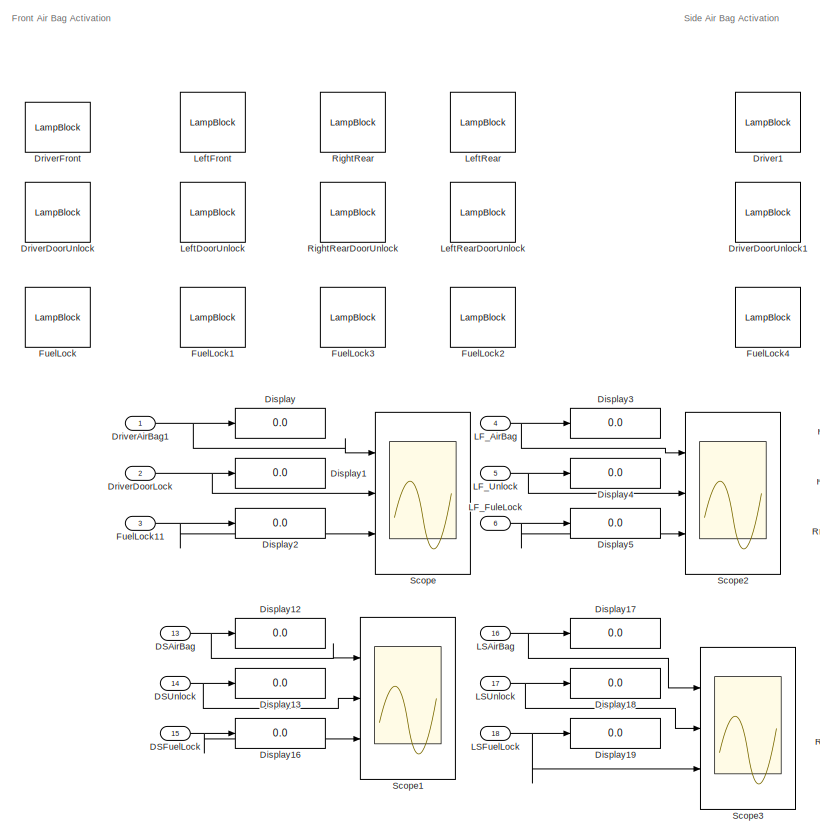
[diagram: OUTPUT/BCM_AIRBAG_OUTPUTS - part 1/2, left side, full height]
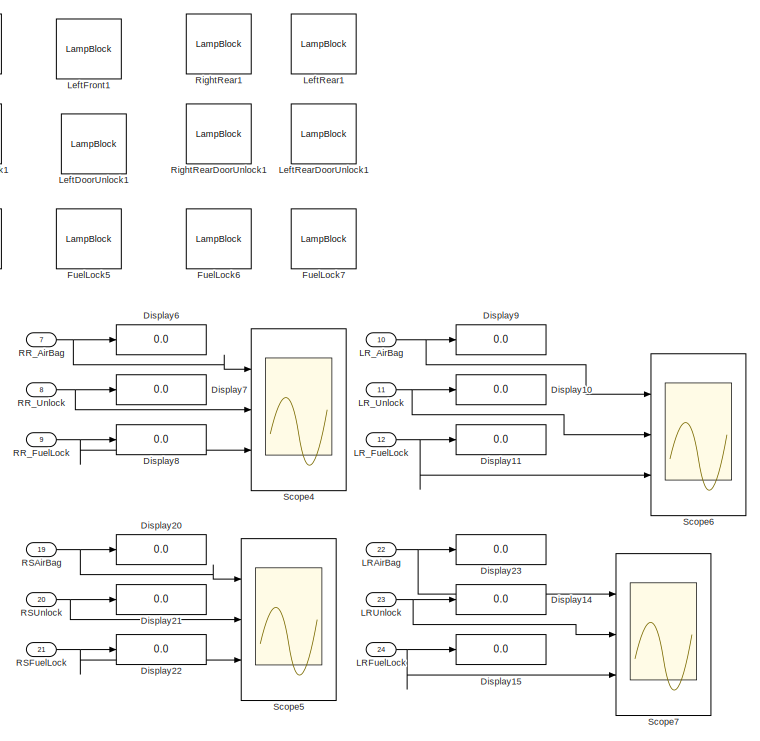
[diagram: OUTPUT/BCM_AIRBAG_OUTPUTS - part 2/2, right side, full height]
BLOCK [SubSystem] OUTPUT/BCM_AIRBAG_OUTPUTS
  Ports = [24]
  RequestExecContextInheritance = off
BLOCK [Inport] OUTPUT/BCM_AIRBAG_OUTPUTS/DSAirBag
  Port = 13
BLOCK [Inport] OUTPUT/BCM_AIRBAG_OUTPUTS/DSFuelLock
  Port = 15
BLOCK [Inport] OUTPUT/BCM_AIRBAG_OUTPUTS/DSUnlock
  Port = 14
BLOCK [Display] OUTPUT/BCM_AIRBAG_OUTPUTS/Display
  Decimation = 1
  Ports = [1]
BLOCK [Display] OUTPUT/BCM_AIRBAG_OUTPUTS/Display1
  Decimation = 1
  Ports = [1]
BLOCK [Display] OUTPUT/BCM_AIRBAG_OUTPUTS/Display10
  Decimation = 1
  Ports = [1]
BLOCK [Display] OUTPUT/BCM_AIRBAG_OUTPUTS/Display11
  Decimation = 1
  Ports = [1]
BLOCK [Display] OUTPUT/BCM_AIRBAG_OUTPUTS/Display12
  Decimation = 1
  Ports = [1]
BLOCK [Display] OUTPUT/BCM_AIRBAG_OUTPUTS/Display13
  Decimation = 1
  Ports = [1]
BLOCK [Display] OUTPUT/BCM_AIRBAG_OUTPUTS/Display14
  Decimation = 1
  Ports = [1]
BLOCK [Display] OUTPUT/BCM_AIRBAG_OUTPUTS/Display15
  Decimation = 1
  Ports = [1]
BLOCK [Display] OUTPUT/BCM_AIRBAG_OUTPUTS/Display16
  Decimation = 1
  Ports = [1]
BLOCK [Display] OUTPUT/BCM_AIRBAG_OUTPUTS/Display17
  Decimation = 1
  Ports = [1]
BLOCK [Display] OUTPUT/BCM_AIRBAG_OUTPUTS/Display18
  Decimation = 1
  Ports = [1]
BLOCK [Display] OUTPUT/BCM_AIRBAG_OUTPUTS/Display19
  Decimation = 1
  Ports = [1]
BLOCK [Display] OUTPUT/BCM_AIRBAG_OUTPUTS/Display2
  Decimation = 1
  Ports = [1]
BLOCK [Display] OUTPUT/BCM_AIRBAG_OUTPUTS/Display20
  Decimation = 1
  Ports = [1]
BLOCK [Display] OUTPUT/BCM_AIRBAG_OUTPUTS/Display21
  Decimation = 1
  Ports = [1]
BLOCK [Display] OUTPUT/BCM_AIRBAG_OUTPUTS/Display22
  Decimation = 1
  Ports = [1]
BLOCK [Display] OUTPUT/BCM_AIRBAG_OUTPUTS/Display23
  Decimation = 1
  Ports = [1]
BLOCK [Display] OUTPUT/BCM_AIRBAG_OUTPUTS/Display3
  Decimation = 1
  Ports = [1]
BLOCK [Display] OUTPUT/BCM_AIRBAG_OUTPUTS/Display4
  Decimation = 1
  Ports = [1]
BLOCK [Display] OUTPUT/BCM_AIRBAG_OUTPUTS/Display5
  Decimation = 1
  Ports = [1]
BLOCK [Display] OUTPUT/BCM_AIRBAG_OUTPUTS/Display6
  Decimation = 1
  Ports = [1]
BLOCK [Display] OUTPUT/BCM_AIRBAG_OUTPUTS/Display7
  Decimation = 1
  Ports = [1]
BLOCK [Display] OUTPUT/BCM_AIRBAG_OUTPUTS/Display8
  Decimation = 1
  Ports = [1]
BLOCK [Display] OUTPUT/BCM_AIRBAG_OUTPUTS/Display9
  Decimation = 1
  Ports = [1]
BLOCK [LampBlock] OUTPUT/BCM_AIRBAG_OUTPUTS/Driver1
BLOCK [Inport] OUTPUT/BCM_AIRBAG_OUTPUTS/DriverAirBag1
BLOCK [Inport] OUTPUT/BCM_AIRBAG_OUTPUTS/DriverDoorLock
  Port = 2
BLOCK [LampBlock] OUTPUT/BCM_AIRBAG_OUTPUTS/DriverDoorUnlock
BLOCK [LampBlock] OUTPUT/BCM_AIRBAG_OUTPUTS/DriverDoorUnlock1
BLOCK [LampBlock] OUTPUT/BCM_AIRBAG_OUTPUTS/DriverFront
BLOCK [LampBlock] OUTPUT/BCM_AIRBAG_OUTPUTS/FuelLock
BLOCK [LampBlock] OUTPUT/BCM_AIRBAG_OUTPUTS/FuelLock1
BLOCK [Inport] OUTPUT/BCM_AIRBAG_OUTPUTS/FuelLock11
  Port = 3
BLOCK [LampBlock] OUTPUT/BCM_AIRBAG_OUTPUTS/FuelLock2
BLOCK [LampBlock] OUTPUT/BCM_AIRBAG_OUTPUTS/FuelLock3
BLOCK [LampBlock] OUTPUT/BCM_AIRBAG_OUTPUTS/FuelLock4
BLOCK [LampBlock] OUTPUT/BCM_AIRBAG_OUTPUTS/FuelLock5
BLOCK [LampBlock] OUTPUT/BCM_AIRBAG_OUTPUTS/FuelLock6
BLOCK [LampBlock] OUTPUT/BCM_AIRBAG_OUTPUTS/FuelLock7
BLOCK [Inport] OUTPUT/BCM_AIRBAG_OUTPUTS/LF_AirBag
  Port = 4
BLOCK [Inport] OUTPUT/BCM_AIRBAG_OUTPUTS/LF_FuleLock
  Port = 6
BLOCK [Inport] OUTPUT/BCM_AIRBAG_OUTPUTS/LF_Unlock
  Port = 5
BLOCK [Inport] OUTPUT/BCM_AIRBAG_OUTPUTS/LRAirBag
  Port = 22
BLOCK [Inport] OUTPUT/BCM_AIRBAG_OUTPUTS/LRFuelLock
  Port = 24
BLOCK [Inport] OUTPUT/BCM_AIRBAG_OUTPUTS/LRUnlock
  Port = 23
BLOCK [Inport] OUTPUT/BCM_AIRBAG_OUTPUTS/LR_AirBag
  Port = 10
BLOCK [Inport] OUTPUT/BCM_AIRBAG_OUTPUTS/LR_FuelLock
  Port = 12
BLOCK [Inport] OUTPUT/BCM_AIRBAG_OUTPUTS/LR_Unlock
  Port = 11
BLOCK [Inport] OUTPUT/BCM_AIRBAG_OUTPUTS/LSAirBag
  Port = 16
BLOCK [Inport] OUTPUT/BCM_AIRBAG_OUTPUTS/LSFuelLock
  Port = 18
BLOCK [Inport] OUTPUT/BCM_AIRBAG_OUTPUTS/LSUnlock
  Port = 17
BLOCK [LampBlock] OUTPUT/BCM_AIRBAG_OUTPUTS/LeftDoorUnlock
BLOCK [LampBlock] OUTPUT/BCM_AIRBAG_OUTPUTS/LeftDoorUnlock1
BLOCK [LampBlock] OUTPUT/BCM_AIRBAG_OUTPUTS/LeftFront
BLOCK [LampBlock] OUTPUT/BCM_AIRBAG_OUTPUTS/LeftFront1
BLOCK [LampBlock] OUTPUT/BCM_AIRBAG_OUTPUTS/LeftRear
BLOCK [LampBlock] OUTPUT/BCM_AIRBAG_OUTPUTS/LeftRear1
BLOCK [LampBlock] OUTPUT/BCM_AIRBAG_OUTPUTS/LeftRearDoorUnlock
BLOCK [LampBlock] OUTPUT/BCM_AIRBAG_OUTPUTS/LeftRearDoorUnlock1
BLOCK [Inport] OUTPUT/BCM_AIRBAG_OUTPUTS/RR_AirBag
  Port = 7
BLOCK [Inport] OUTPUT/BCM_AIRBAG_OUTPUTS/RR_FuelLock
  Port = 9
BLOCK [Inport] OUTPUT/BCM_AIRBAG_OUTPUTS/RR_Unlock
  Port = 8
BLOCK [Inport] OUTPUT/BCM_AIRBAG_OUTPUTS/RSAirBag
  Port = 19
BLOCK [Inport] OUTPUT/BCM_AIRBAG_OUTPUTS/RSFuelLock
  Port = 21
BLOCK [Inport] OUTPUT/BCM_AIRBAG_OUTPUTS/RSUnlock
  Port = 20
BLOCK [LampBlock] OUTPUT/BCM_AIRBAG_OUTPUTS/RightRear
BLOCK [LampBlock] OUTPUT/BCM_AIRBAG_OUTPUTS/RightRear1
BLOCK [LampBlock] OUTPUT/BCM_AIRBAG_OUTPUTS/RightRearDoorUnlock
BLOCK [LampBlock] OUTPUT/BCM_AIRBAG_OUTPUTS/RightRearDoorUnlock1
BLOCK [Scope] OUTPUT/BCM_AIRBAG_OUTPUTS/Scope
  Floating = off
  NumInputPorts = 3
  Ports = [3]
  ScopeSpecificationString = Simulink.scopes.TimeScopeBlockCfg('CurrentConfiguration', extmgr.ConfigurationSet(extmgr.Configuration('Core','General UI',true),extmgr.Configuration('Core','Source UI',true),extmgr.Configuration('Sources','WiredSimulink',true,'DataLoggingVariableName','ScopeData1'),extmgr.Configuration('Visuals','Time Domain',true,'SerializedDisplays',{struct('MinYLimReal','-0.125','MaxYLimReal','1.125','YLabelRe...<+2715ch>
BLOCK [Scope] OUTPUT/BCM_AIRBAG_OUTPUTS/Scope1
  Floating = off
  NumInputPorts = 3
  Ports = [3]
  ScopeSpecificationString = Simulink.scopes.TimeScopeBlockCfg('CurrentConfiguration', extmgr.ConfigurationSet(extmgr.Configuration('Core','General UI',true),extmgr.Configuration('Core','Source UI',true),extmgr.Configuration('Sources','WiredSimulink',true,'DataLoggingVariableName','ScopeData2'),extmgr.Configuration('Visuals','Time Domain',true),extmgr.Configuration('Tools','Plot Navigation',true),extmgr.Configuration('Tools',...<+40ch>
BLOCK [Scope] OUTPUT/BCM_AIRBAG_OUTPUTS/Scope2
  Floating = off
  NumInputPorts = 3
  Ports = [3]
  ScopeSpecificationString = Simulink.scopes.TimeScopeBlockCfg('CurrentConfiguration', extmgr.ConfigurationSet(extmgr.Configuration('Core','General UI',true),extmgr.Configuration('Core','Source UI',true),extmgr.Configuration('Sources','WiredSimulink',true,'DataLoggingVariableName','ScopeData3'),extmgr.Configuration('Visuals','Time Domain',true),extmgr.Configuration('Tools','Plot Navigation',true),extmgr.Configuration('Tools',...<+40ch>
BLOCK [Scope] OUTPUT/BCM_AIRBAG_OUTPUTS/Scope3
  Floating = off
  NumInputPorts = 3
  Ports = [3]
  ScopeSpecificationString = Simulink.scopes.TimeScopeBlockCfg('CurrentConfiguration', extmgr.ConfigurationSet(extmgr.Configuration('Core','General UI',true),extmgr.Configuration('Core','Source UI',true),extmgr.Configuration('Sources','WiredSimulink',true,'DataLoggingVariableName','ScopeData4'),extmgr.Configuration('Visuals','Time Domain',true),extmgr.Configuration('Tools','Plot Navigation',true),extmgr.Configuration('Tools',...<+40ch>
BLOCK [Scope] OUTPUT/BCM_AIRBAG_OUTPUTS/Scope4
  Floating = off
  NumInputPorts = 3
  Ports = [3]
  ScopeSpecificationString = Simulink.scopes.TimeScopeBlockCfg('CurrentConfiguration', extmgr.ConfigurationSet(extmgr.Configuration('Core','General UI',true),extmgr.Configuration('Core','Source UI',true),extmgr.Configuration('Sources','WiredSimulink',true,'DataLoggingVariableName','ScopeData5'),extmgr.Configuration('Visuals','Time Domain',true),extmgr.Configuration('Tools','Plot Navigation',true),extmgr.Configuration('Tools',...<+40ch>
BLOCK [Scope] OUTPUT/BCM_AIRBAG_OUTPUTS/Scope5
  Floating = off
  NumInputPorts = 3
  Ports = [3]
  ScopeSpecificationString = Simulink.scopes.TimeScopeBlockCfg('CurrentConfiguration', extmgr.ConfigurationSet(extmgr.Configuration('Core','General UI',true),extmgr.Configuration('Core','Source UI',true),extmgr.Configuration('Sources','WiredSimulink',true,'DataLoggingVariableName','ScopeData6'),extmgr.Configuration('Visuals','Time Domain',true),extmgr.Configuration('Tools','Plot Navigation',true),extmgr.Configuration('Tools',...<+40ch>
BLOCK [Scope] OUTPUT/BCM_AIRBAG_OUTPUTS/Scope6
  Floating = off
  NumInputPorts = 3
  Ports = [3]
  ScopeSpecificationString = Simulink.scopes.TimeScopeBlockCfg('CurrentConfiguration', extmgr.ConfigurationSet(extmgr.Configuration('Core','General UI',true),extmgr.Configuration('Core','Source UI',true),extmgr.Configuration('Sources','WiredSimulink',true,'DataLoggingVariableName','ScopeData7'),extmgr.Configuration('Visuals','Time Domain',true),extmgr.Configuration('Tools','Plot Navigation',true),extmgr.Configuration('Tools',...<+40ch>
BLOCK [Scope] OUTPUT/BCM_AIRBAG_OUTPUTS/Scope7
  Floating = off
  NumInputPorts = 3
  Ports = [3]
  ScopeSpecificationString = Simulink.scopes.TimeScopeBlockCfg('CurrentConfiguration', extmgr.ConfigurationSet(extmgr.Configuration('Core','General UI',true),extmgr.Configuration('Core','Source UI',true),extmgr.Configuration('Sources','WiredSimulink',true,'DataLoggingVariableName','ScopeData8'),extmgr.Configuration('Visuals','Time Domain',true),extmgr.Configuration('Tools','Plot Navigation',true),extmgr.Configuration('Tools',...<+40ch>
BLOCK [SubSystem] OUTPUT/BCM_WC_OUTPUT
  Ports = [11]
  RequestExecContextInheritance = off
BLOCK [Display] OUTPUT/BCM_WC_OUTPUT/BCM_BW_Display
  Decimation = 1
  Ports = [1]
BLOCK [Display] OUTPUT/BCM_WC_OUTPUT/BCM_FA_HIGH
  Decimation = 1
  Ports = [1]
BLOCK [Display] OUTPUT/BCM_WC_OUTPUT/BCM_FA_Low
  Decimation = 1
  Ports = [1]
BLOCK [Display] OUTPUT/BCM_WC_OUTPUT/BCM_FA_Medium
  Decimation = 1
  Ports = [1]
BLOCK [Display] OUTPUT/BCM_WC_OUTPUT/BCM_FA_Mist
  Decimation = 1
  Ports = [1]
BLOCK [Display] OUTPUT/BCM_WC_OUTPUT/BCM_FA_OFF
  Decimation = 1
  Ports = [1]
BLOCK [Display] OUTPUT/BCM_WC_OUTPUT/BCM_FA_Spray
  Decimation = 1
  Ports = [1]
BLOCK [Display] OUTPUT/BCM_WC_OUTPUT/BCM_FM_Bw30_60
  Decimation = 1
  Ports = [1]
BLOCK [Display] OUTPUT/BCM_WC_OUTPUT/BCM_FM_Bw60_100
  Decimation = 1
  Ports = [1]
BLOCK [Display] OUTPUT/BCM_WC_OUTPUT/BCM_FM_lessthan30
  Decimation = 1
  Ports = [1]
BLOCK [Display] OUTPUT/BCM_WC_OUTPUT/BCM_Manual_OUT
  Decimation = 1
  Ports = [1]
BLOCK [Inport] OUTPUT/BCM_WC_OUTPUT/BW_out
BLOCK [Inport] OUTPUT/BCM_WC_OUTPUT/FA_HIGH
  Port = 4
BLOCK [Inport] OUTPUT/BCM_WC_OUTPUT/FA_Low
  Port = 2
BLOCK [Inport] OUTPUT/BCM_WC_OUTPUT/FA_Medium
  Port = 3
BLOCK [Inport] OUTPUT/BCM_WC_OUTPUT/FA_Mist
  Port = 6
BLOCK [Inport] OUTPUT/BCM_WC_OUTPUT/FA_OFF
  Port = 7
BLOCK [Inport] OUTPUT/BCM_WC_OUTPUT/FA_Spray
  Port = 5
BLOCK [Inport] OUTPUT/BCM_WC_OUTPUT/FM_Bw30_60
  Port = 10
BLOCK [Inport] OUTPUT/BCM_WC_OUTPUT/FM_Bw60_100
  Port = 11
BLOCK [Inport] OUTPUT/BCM_WC_OUTPUT/FM_lessthan30
  Port = 9
BLOCK [LampBlock] OUTPUT/BCM_WC_OUTPUT/Lamp
BLOCK [LampBlock] OUTPUT/BCM_WC_OUTPUT/Lamp1
BLOCK [LampBlock] OUTPUT/BCM_WC_OUTPUT/Lamp2
BLOCK [LampBlock] OUTPUT/BCM_WC_OUTPUT/Lamp3
BLOCK [LampBlock] OUTPUT/BCM_WC_OUTPUT/Lamp4
BLOCK [LampBlock] OUTPUT/BCM_WC_OUTPUT/Lamp5
BLOCK [LampBlock] OUTPUT/BCM_WC_OUTPUT/Lamp6
BLOCK [LampBlock] OUTPUT/BCM_WC_OUTPUT/Lamp7
BLOCK [LampBlock] OUTPUT/BCM_WC_OUTPUT/Lamp8
BLOCK [Inport] OUTPUT/BCM_WC_OUTPUT/Manual_OUT
  Port = 8
BLOCK [Scope] OUTPUT/BCM_WC_OUTPUT/Scope
  Floating = off
  NumInputPorts = 11
  Ports = [11]
  ScopeSpecificationString = Simulink.scopes.TimeScopeBlockCfg('CurrentConfiguration', extmgr.ConfigurationSet(extmgr.Configuration('Core','General UI',true),extmgr.Configuration('Core','Source UI',true),extmgr.Configuration('Sources','WiredSimulink',true),extmgr.Configuration('Visuals','Time Domain',true,'SerializedDisplays',{struct('MinYLimReal','-0.125','MaxYLimReal','1.125','YLabelReal','','MinYLimMag','0.00000','MaxYLimM...<+9035ch>
BLOCK [Inport] OUTPUT/BW_out
  Port = 40
BLOCK [Inport] OUTPUT/DSAirBag
  Port = 24
BLOCK [Inport] OUTPUT/DSFuelLock
  Port = 26
BLOCK [Inport] OUTPUT/DSUnlock
  Port = 25
BLOCK [Inport] OUTPUT/Delay
  Port = 9
BLOCK [Inport] OUTPUT/DriverAirBag1
  Port = 12
BLOCK [Inport] OUTPUT/DriverDoorLock
  Port = 13
BLOCK [Inport] OUTPUT/FA_HIGH
  Port = 43
BLOCK [Inport] OUTPUT/FA_Low
  Port = 41
BLOCK [Inport] OUTPUT/FA_Medium
  Port = 42
BLOCK [Inport] OUTPUT/FA_Mist
  Port = 45
BLOCK [Inport] OUTPUT/FA_OFF
  Port = 46
BLOCK [Inport] OUTPUT/FA_Spray
  Port = 44
BLOCK [Inport] OUTPUT/FM_Bw30_60
  Port = 49
BLOCK [Inport] OUTPUT/FM_Bw60_100
  Port = 50
BLOCK [Inport] OUTPUT/FM_lessthan30
  Port = 48
BLOCK [Inport] OUTPUT/FuelLock11
  Port = 14
BLOCK [Inport] OUTPUT/In1
BLOCK [Inport] OUTPUT/In2
  Port = 2
BLOCK [Inport] OUTPUT/In3
  Port = 3
BLOCK [Inport] OUTPUT/In4
  Port = 4
BLOCK [Inport] OUTPUT/In5
  Port = 5
BLOCK [Inport] OUTPUT/In6
  Port = 6
BLOCK [Inport] OUTPUT/In7
  Port = 7
BLOCK [Inport] OUTPUT/In8
  Port = 8
BLOCK [Inport] OUTPUT/Interior light
  Port = 10
BLOCK [Inport] OUTPUT/LF_AirBag
  Port = 15
BLOCK [Inport] OUTPUT/LF_FuleLock
  Port = 17
BLOCK [Inport] OUTPUT/LF_Unlock
  Port = 16
BLOCK [Inport] OUTPUT/LRAirBag
  Port = 33
BLOCK [Inport] OUTPUT/LRFuelLock
  Port = 35
BLOCK [Inport] OUTPUT/LRUnlock
  Port = 34
BLOCK [Inport] OUTPUT/LR_AirBag
  Port = 21
BLOCK [Inport] OUTPUT/LR_FuelLock
  Port = 23
BLOCK [Inport] OUTPUT/LR_Unlock
  Port = 22
BLOCK [Inport] OUTPUT/LSAirBag
  Port = 27
BLOCK [Inport] OUTPUT/LSFuelLock
  Port = 29
BLOCK [Inport] OUTPUT/LSUnlock
  Port = 28
BLOCK [Inport] OUTPUT/Manual_OUT
  Port = 47
BLOCK [Inport] OUTPUT/Outport1
  Port = 36
BLOCK [Inport] OUTPUT/Outport2
  Port = 37
BLOCK [Inport] OUTPUT/Outport3
  Port = 38
BLOCK [Inport] OUTPUT/Outport4
  Port = 39
BLOCK [Inport] OUTPUT/RR_AirBag
  Port = 18
BLOCK [Inport] OUTPUT/RR_FuelLock
  Port = 20
BLOCK [Inport] OUTPUT/RR_Unlock
  Port = 19
BLOCK [Inport] OUTPUT/RSAirBag
  Port = 30
BLOCK [Inport] OUTPUT/RSFuelLock
  Port = 32
BLOCK [Inport] OUTPUT/RSUnlock
  Port = 31
BLOCK [Scope] OUTPUT/Scope
  Floating = off
  NumInputPorts = 4
  Ports = [4]
  ScopeSpecificationString = Simulink.scopes.TimeScopeBlockCfg('CurrentConfiguration', extmgr.ConfigurationSet(extmgr.Configuration('Core','General UI',true),extmgr.Configuration('Core','Source UI',true),extmgr.Configuration('Sources','WiredSimulink',true,'DataLoggingVariableName','ScopeData1'),extmgr.Configuration('Visuals','Time Domain',true,'SerializedDisplays',{struct('MinYLimReal','-0.125','MaxYLimReal','1.125','YLabelRe...<+3455ch>
BLOCK [SubSystem] OUTPUT/Subsystem2
  Ports = [11]
  RequestExecContextInheritance = off
BLOCK [Inport] OUTPUT/Subsystem2/Automatic
  Port = 11
BLOCK [Inport] OUTPUT/Subsystem2/Delay
  Port = 9
BLOCK [Inport] OUTPUT/Subsystem2/In1
BLOCK [Inport] OUTPUT/Subsystem2/In2
  Port = 2
BLOCK [Inport] OUTPUT/Subsystem2/In3
  Port = 3
BLOCK [Inport] OUTPUT/Subsystem2/In4
  Port = 4
BLOCK [Inport] OUTPUT/Subsystem2/In5
  Port = 5
BLOCK [Inport] OUTPUT/Subsystem2/In6
  Port = 6
BLOCK [Inport] OUTPUT/Subsystem2/In7
  Port = 7
BLOCK [Inport] OUTPUT/Subsystem2/In8
  Port = 8
BLOCK [Inport] OUTPUT/Subsystem2/Interior light
  Port = 10
BLOCK [Scope] OUTPUT/Subsystem2/Output_window_scope
  Floating = off
  NumInputPorts = 8
  Ports = [8]
  ScopeSpecificationString = Simulink.scopes.TimeScopeBlockCfg('CurrentConfiguration', extmgr.ConfigurationSet(extmgr.Configuration('Core','General UI',true),extmgr.Configuration('Core','Source UI',true),extmgr.Configuration('Sources','WiredSimulink',true,'DataLoggingVariableName','ScopeData2'),extmgr.Configuration('Visuals','Time Domain',true,'SerializedDisplays',{struct('MinYLimReal','-0.125','MaxYLimReal','1.125','YLabelRe...<+6301ch>
BLOCK [Scope] OUTPUT/Subsystem2/Scope3
  Floating = off
  NumInputPorts = 3
  Ports = [3]
  ScopeSpecificationString = Simulink.scopes.TimeScopeBlockCfg('CurrentConfiguration', extmgr.ConfigurationSet(extmgr.Configuration('Core','General UI',true),extmgr.Configuration('Core','Source UI',true),extmgr.Configuration('Sources','WiredSimulink',true,'DataLoggingVariableName','ScopeData1'),extmgr.Configuration('Visuals','Time Domain',true,'SerializedDisplays',{struct('MinYLimReal','-1.00000','MaxYLimReal','1.00000','YLab...<+2688ch>
ANNOTATION (root): REQUIREMENTS: 1.POWER WINDOW OPEARTION 2.AIR BAG OPEARTION 3.TPMS 4.DOOR LOCK SYSTEM 5.WIPER CONTROL SYSTEM
ANNOTATION (root): BCM_AND_SAFETY_MODULES
ANNOTATION BCM_SAFETY_MODULE/BCM_AIRBAGSYSTEM: VS - Vehicle Speed AB - AirBag DD - Detect Deceleration SD - Sudden Deceleration FL - FuelLock LS - Left Side
ANNOTATION BCM_SAFETY_MODULE/BCM_AIRBAGSYSTEM: BCM_Airbag_DecelerationDetection
ANNOTATION BCM_SAFETY_MODULE/BCM_AIRBAGSYSTEM/BCM_AB_FrontAirBagActivation: Driver
ANNOTATION BCM_SAFETY_MODULE/BCM_AIRBAGSYSTEM/BCM_AB_FrontAirBagActivation: LeftRear
ANNOTATION BCM_SAFETY_MODULE/BCM_AIRBAGSYSTEM/BCM_AB_FrontAirBagActivation: Left_Front
ANNOTATION BCM_SAFETY_MODULE/BCM_AIRBAGSYSTEM/BCM_AB_FrontAirBagActivation: RightRear
ANNOTATION BCM_SAFETY_MODULE/BCM_AIRBAGSYSTEM/BCM_AB_Side_AB_Activation: DriverFrontSide
ANNOTATION BCM_SAFETY_MODULE/BCM_AIRBAGSYSTEM/BCM_AB_Side_AB_Activation: LeftFrontSIde
ANNOTATION BCM_SAFETY_MODULE/BCM_AIRBAGSYSTEM/BCM_AB_Side_AB_Activation: LeftRearSide
ANNOTATION BCM_SAFETY_MODULE/BCM_AIRBAGSYSTEM/BCM_AB_Side_AB_Activation: RightRearSide
ANNOTATION BCM_SAFETY_MODULE/BCM_Powerwindow_and_Door_operation/BCM_Door_system/BCM_Automatic_Door_lock: Description:-If equipped, the doors will lock automatically when all doors are closed, the ignition is on). If a vehicle door is unlocked, and then opened and closed, the doors will lock the vehicle speed becomes faster than 13 km/h (8 mph)
ANNOTATION BCM_SAFETY_MODULE/BCM_Powerwindow_and_Door_operation/BCM_Door_system/BCM_Delay_System_door lock and BCM_interior light subsystem: Description:-When unlock button is pressed on the power door lock switch while the door is open, a chime will sound three times indicating delayed locking is active. The doors will lock automatically five seconds after all doors are closed. If a door is reopened before that time, the five-second timer will reset when all doors are closed again.
ANNOTATION BCM_SAFETY_MODULE/BCM_WC_CONTROL: Wiper Enabling Control: Switch between front, Rear and maual mode. Manual control only works for front wiper When user enables front wiper, he will get 6 modes including manual input. WC status is to switch on/off wiper control There are 3 subsystems for rear, front and manual.
ANNOTATION BCM_SAFETY_MODULE/BCM_WC_CONTROL: Wiper Control
ANNOTATION BCM_SAFETY_MODULE/BCM_WC_CONTROL: Front_Windshield
ANNOTATION BCM_SAFETY_MODULE/BCM_WC_CONTROL/BCM_WC_FR_Automodes: Front Wiper modes : In this we are taking 5 modes Low mode for low wiping of windshield Medium mode for Medium speed wiping of windshield High mode for High speed wiping Mist mode for 1x wipe to clear fog and dust from windshield Spray to enable the spray
ANNOTATION BCM_SAFETY_MODULE/BCM_WC_CONTROL/BCM_WC_FR_Automodes: Front_Wiper_automodes
ANNOTATION BCM_SAFETY_MODULE/BCM_WC_CONTROL/BCM_WC_FR_manual: Manual inputs: If the manual mode is selected, user get the option to vary the speed of wiper manually. Different speed is defined for different ranges.
ANNOTATION BCM_SAFETY_MODULE/BCM_WC_CONTROL/BCM_WC_FR_manual: FrontWiper_Manual_Control
ANNOTATION BCM_SAFETY_MODULE/BCM_WC_CONTROL/BCM_WC_Rear_windshield: Rear Wiper: If WC_BackS is high, Rear wipers are enabled. The wipers only works in low mode. A clock is added for 30 sec delay in wipers.
ANNOTATION BCM_SAFETY_MODULE/BCM_WC_CONTROL/BCM_WC_Rear_windshield: REAR_WIPER
ANNOTATION OUTPUT/BCM_AIRBAG_OUTPUTS: Front Air Bag Activation
ANNOTATION OUTPUT/BCM_AIRBAG_OUTPUTS: Side Air Bag Activation
ANNOTATION OUTPUT/BCM_WC_OUTPUT: OUTPUTS: For Rear wiper, Low mode is activated and indicated by using display and led light. For Front wiper, Automodes and Manual mode is there. In Auto modes, 5 modes are there and output is taken from them accordingly In manual mode, user get to vary the speed of wiper and this is displayed using light and display block.
ANNOTATION OUTPUT/BCM_WC_OUTPUT: BACK WINDSHIELD
ANNOTATION OUTPUT/BCM_WC_OUTPUT: FRONT WINDSHIELD AUTOMODES
ANNOTATION OUTPUT/BCM_WC_OUTPUT: FRONT WINDSHIELD MANUAL MANUAL OUTPUT
ANNOTATION OUTPUT/Subsystem2: BCM_Door_system
ANNOTATION OUTPUT/Subsystem2: POWER_WINDOW_OP
LINE BCM_SAFETY_MODULE/BCM_AB_Driver_Side:1 -> BCM_SAFETY_MODULE/BCM_AIRBAGSYSTEM:4
LINE BCM_SAFETY_MODULE/BCM_AB_L_Front_1:1 -> BCM_SAFETY_MODULE/BCM_AIRBAGSYSTEM:5
LINE BCM_SAFETY_MODULE/BCM_AB_L_Rear_1:1 -> BCM_SAFETY_MODULE/BCM_AIRBAGSYSTEM:6
LINE BCM_SAFETY_MODULE/BCM_AB_R_Rear_:1 -> BCM_SAFETY_MODULE/BCM_AIRBAGSYSTEM:7
LINE BCM_SAFETY_MODULE/BCM_AB_VS:1 -> BCM_SAFETY_MODULE/BCM_AIRBAGSYSTEM:1
LINE BCM_SAFETY_MODULE/BCM_AIRBAGSYSTEM/BCM_AB_CheckCrashType/AND1:1 -> BCM_SAFETY_MODULE/BCM_AIRBAGSYSTEM/BCM_AB_CheckCrashType/Side_AirBag:1
LINE BCM_SAFETY_MODULE/BCM_AIRBAGSYSTEM/BCM_AB_CheckCrashType/AND:1 -> BCM_SAFETY_MODULE/BCM_AIRBAGSYSTEM/BCM_AB_CheckCrashType/Front_AirBag:1
NET BCM_SAFETY_MODULE/BCM_AIRBAGSYSTEM/BCM_AB_CheckCrashType/ActivateAirBagSensor:1 -> BCM_SAFETY_MODULE/BCM_AIRBAGSYSTEM/BCM_AB_CheckCrashType/AND1:1, BCM_SAFETY_MODULE/BCM_AIRBAGSYSTEM/BCM_AB_CheckCrashType/AND:2
LINE BCM_SAFETY_MODULE/BCM_AIRBAGSYSTEM/BCM_AB_CheckCrashType/Air_ACC:1 -> BCM_SAFETY_MODULE/BCM_AIRBAGSYSTEM/BCM_AB_CheckCrashType/ActivateAirBagSensor:1
LINE BCM_SAFETY_MODULE/BCM_AIRBAGSYSTEM/BCM_AB_CheckCrashType/CheckYawRateForFront:1 -> BCM_SAFETY_MODULE/BCM_AIRBAGSYSTEM/BCM_AB_CheckCrashType/AND:1
LINE BCM_SAFETY_MODULE/BCM_AIRBAGSYSTEM/BCM_AB_CheckCrashType/CheckYawRateForSide:1 -> BCM_SAFETY_MODULE/BCM_AIRBAGSYSTEM/BCM_AB_CheckCrashType/AND1:2
LINE BCM_SAFETY_MODULE/BCM_AIRBAGSYSTEM/BCM_AB_CheckCrashType/Val_Front:1 -> BCM_SAFETY_MODULE/BCM_AIRBAGSYSTEM/BCM_AB_CheckCrashType/CheckYawRateForFront:2
LINE BCM_SAFETY_MODULE/BCM_AIRBAGSYSTEM/BCM_AB_CheckCrashType/Val_Side:1 -> BCM_SAFETY_MODULE/BCM_AIRBAGSYSTEM/BCM_AB_CheckCrashType/CheckYawRateForSide:2
NET BCM_SAFETY_MODULE/BCM_AIRBAGSYSTEM/BCM_AB_CheckCrashType/YawRate:1 -> BCM_SAFETY_MODULE/BCM_AIRBAGSYSTEM/BCM_AB_CheckCrashType/CheckYawRateForFront:1, BCM_SAFETY_MODULE/BCM_AIRBAGSYSTEM/BCM_AB_CheckCrashType/CheckYawRateForSide:1
NET BCM_SAFETY_MODULE/BCM_AIRBAGSYSTEM/BCM_AB_CheckCrashType:1 -> BCM_SAFETY_MODULE/BCM_AIRBAGSYSTEM/BCM_AB_FrontAirBagActivation:1, BCM_SAFETY_MODULE/BCM_AIRBAGSYSTEM/BCM_AB_FrontAirBagActivation:enable
NET BCM_SAFETY_MODULE/BCM_AIRBAGSYSTEM/BCM_AB_CheckCrashType:2 -> BCM_SAFETY_MODULE/BCM_AIRBAGSYSTEM/BCM_AB_Side_AB_Activation:1, BCM_SAFETY_MODULE/BCM_AIRBAGSYSTEM/BCM_AB_Side_AB_Activation:enable
LINE BCM_SAFETY_MODULE/BCM_AIRBAGSYSTEM/BCM_AB_ConstantVS:1 -> BCM_SAFETY_MODULE/BCM_AIRBAGSYSTEM/BCM_AB_DD:2
LINE BCM_SAFETY_MODULE/BCM_AIRBAGSYSTEM/BCM_AB_DD:1 -> BCM_SAFETY_MODULE/BCM_AIRBAGSYSTEM/BCM_AB_SD:1
NET BCM_SAFETY_MODULE/BCM_AIRBAGSYSTEM/BCM_AB_Driver_Side:1 -> BCM_SAFETY_MODULE/BCM_AIRBAGSYSTEM/BCM_AB_FrontAirBagActivation:2, BCM_SAFETY_MODULE/BCM_AIRBAGSYSTEM/BCM_AB_Side_AB_Activation:2
LINE BCM_SAFETY_MODULE/BCM_AIRBAGSYSTEM/BCM_AB_FrontAirBagActivation/BCM_AB_Compare_DS_AB:1 -> BCM_SAFETY_MODULE/BCM_AIRBAGSYSTEM/BCM_AB_FrontAirBagActivation/BCM_AB_Decision_DS_AB:2
LINE BCM_SAFETY_MODULE/BCM_AIRBAGSYSTEM/BCM_AB_FrontAirBagActivation/BCM_AB_Compare_Driver:1 -> BCM_SAFETY_MODULE/BCM_AIRBAGSYSTEM/BCM_AB_FrontAirBagActivation/Switch_Driver:1
LINE BCM_SAFETY_MODULE/BCM_AIRBAGSYSTEM/BCM_AB_FrontAirBagActivation/BCM_AB_Compare_Front:1 -> BCM_SAFETY_MODULE/BCM_AIRBAGSYSTEM/BCM_AB_FrontAirBagActivation/Switch_Front:1
LINE BCM_SAFETY_MODULE/BCM_AIRBAGSYSTEM/BCM_AB_FrontAirBagActivation/BCM_AB_Compare_LF:1 -> BCM_SAFETY_MODULE/BCM_AIRBAGSYSTEM/BCM_AB_FrontAirBagActivation/BCM_AB_Decision_LF:2
LINE BCM_SAFETY_MODULE/BCM_AIRBAGSYSTEM/BCM_AB_FrontAirBagActivation/BCM_AB_Compare_LF_FL:1 -> BCM_SAFETY_MODULE/BCM_AIRBAGSYSTEM/BCM_AB_FrontAirBagActivation/BCM_AB_Decision_LF_FL:2
LINE BCM_SAFETY_MODULE/BCM_AIRBAGSYSTEM/BCM_AB_FrontAirBagActivation/BCM_AB_Compare_LF_UL:1 -> BCM_SAFETY_MODULE/BCM_AIRBAGSYSTEM/BCM_AB_FrontAirBagActivation/BCM_AB_Decision_LF_UL:2
LINE BCM_SAFETY_MODULE/BCM_AIRBAGSYSTEM/BCM_AB_FrontAirBagActivation/BCM_AB_Compare_LR:1 -> BCM_SAFETY_MODULE/BCM_AIRBAGSYSTEM/BCM_AB_FrontAirBagActivation/BCM_AB_Decision_LR:2
LINE BCM_SAFETY_MODULE/BCM_AIRBAGSYSTEM/BCM_AB_FrontAirBagActivation/BCM_AB_Compare_LR_UL:1 -> BCM_SAFETY_MODULE/BCM_AIRBAGSYSTEM/BCM_AB_FrontAirBagActivation/BCM_AB_Decision_LR_UL:2
LINE BCM_SAFETY_MODULE/BCM_AIRBAGSYSTEM/BCM_AB_FrontAirBagActivation/BCM_AB_Compare_Left_Rear:1 -> BCM_SAFETY_MODULE/BCM_AIRBAGSYSTEM/BCM_AB_FrontAirBagActivation/Switch_LRear:1
LINE BCM_SAFETY_MODULE/BCM_AIRBAGSYSTEM/BCM_AB_FrontAirBagActivation/BCM_AB_Compare_Right_Rear:1 -> BCM_SAFETY_MODULE/BCM_AIRBAGSYSTEM/BCM_AB_FrontAirBagActivation/Switch_RRear:1
LINE BCM_SAFETY_MODULE/BCM_AIRBAGSYSTEM/BCM_AB_FrontAirBagActivation/BCM_AB_Compare_SFL:1 -> BCM_SAFETY_MODULE/BCM_AIRBAGSYSTEM/BCM_AB_FrontAirBagActivation/BCM_AB_Decision_SFL:2
LINE BCM_SAFETY_MODULE/BCM_AIRBAGSYSTEM/BCM_AB_FrontAirBagActivation/BCM_AB_Compare_SUL:1 -> BCM_SAFETY_MODULE/BCM_AIRBAGSYSTEM/BCM_AB_FrontAirBagActivation/BCM_AB_Decision_SUL:2
LINE BCM_SAFETY_MODULE/BCM_AIRBAGSYSTEM/BCM_AB_FrontAirBagActivation/BCM_AB_Decision_DS_AB:1 -> BCM_SAFETY_MODULE/BCM_AIRBAGSYSTEM/BCM_AB_FrontAirBagActivation/Driver_Air_Bag:1
LINE BCM_SAFETY_MODULE/BCM_AIRBAGSYSTEM/BCM_AB_FrontAirBagActivation/BCM_AB_Decision_LF:1 -> BCM_SAFETY_MODULE/BCM_AIRBAGSYSTEM/BCM_AB_FrontAirBagActivation/BCM_AB_Left_Front_Air_Bag:1
LINE BCM_SAFETY_MODULE/BCM_AIRBAGSYSTEM/BCM_AB_FrontAirBagActivation/BCM_AB_Decision_LF_FL:1 -> BCM_SAFETY_MODULE/BCM_AIRBAGSYSTEM/BCM_AB_FrontAirBagActivation/BCM_AB_Left_Front_Fuel_Lock:1
LINE BCM_SAFETY_MODULE/BCM_AIRBAGSYSTEM/BCM_AB_FrontAirBagActivation/BCM_AB_Decision_LF_UL:1 -> BCM_SAFETY_MODULE/BCM_AIRBAGSYSTEM/BCM_AB_FrontAirBagActivation/BCM_AB_Left_Front_Unlock:1
LINE BCM_SAFETY_MODULE/BCM_AIRBAGSYSTEM/BCM_AB_FrontAirBagActivation/BCM_AB_Decision_LR:1 -> BCM_SAFETY_MODULE/BCM_AIRBAGSYSTEM/BCM_AB_FrontAirBagActivation/BCM_AB_Left_Rear_Air_Bag:1
LINE BCM_SAFETY_MODULE/BCM_AIRBAGSYSTEM/BCM_AB_FrontAirBagActivation/BCM_AB_Decision_LR_FL:1 -> BCM_SAFETY_MODULE/BCM_AIRBAGSYSTEM/BCM_AB_FrontAirBagActivation/BCM_AB_Left_Rear_Fuel_Lock:1
LINE BCM_SAFETY_MODULE/BCM_AIRBAGSYSTEM/BCM_AB_FrontAirBagActivation/BCM_AB_Decision_LR_UL:1 -> BCM_SAFETY_MODULE/BCM_AIRBAGSYSTEM/BCM_AB_FrontAirBagActivation/BCM_AB_Left_Rear_Unlock:1
LINE BCM_SAFETY_MODULE/BCM_AIRBAGSYSTEM/BCM_AB_FrontAirBagActivation/BCM_AB_Decision_RR:1 -> BCM_SAFETY_MODULE/BCM_AIRBAGSYSTEM/BCM_AB_FrontAirBagActivation/Right_Rear_Air_Bag:1
LINE BCM_SAFETY_MODULE/BCM_AIRBAGSYSTEM/BCM_AB_FrontAirBagActivation/BCM_AB_Decision_RR_FL:1 -> BCM_SAFETY_MODULE/BCM_AIRBAGSYSTEM/BCM_AB_FrontAirBagActivation/Right_Rear_Fuel_Lock:1
LINE BCM_SAFETY_MODULE/BCM_AIRBAGSYSTEM/BCM_AB_FrontAirBagActivation/BCM_AB_Decision_RR_UL:1 -> BCM_SAFETY_MODULE/BCM_AIRBAGSYSTEM/BCM_AB_FrontAirBagActivation/Right_Rear_Unlock:1
LINE BCM_SAFETY_MODULE/BCM_AIRBAGSYSTEM/BCM_AB_FrontAirBagActivation/BCM_AB_Decision_SFL:1 -> BCM_SAFETY_MODULE/BCM_AIRBAGSYSTEM/BCM_AB_FrontAirBagActivation/Driver_Fuel_Lock:1
LINE BCM_SAFETY_MODULE/BCM_AIRBAGSYSTEM/BCM_AB_FrontAirBagActivation/BCM_AB_Decision_SUL:1 -> BCM_SAFETY_MODULE/BCM_AIRBAGSYSTEM/BCM_AB_FrontAirBagActivation/Driver_Door_Unlock:1
LINE BCM_SAFETY_MODULE/BCM_AIRBAGSYSTEM/BCM_AB_FrontAirBagActivation/BCM_AB_SIDE_WeightSensor:1 -> BCM_SAFETY_MODULE/BCM_AIRBAGSYSTEM/BCM_AB_FrontAirBagActivation/BCM_AB_Compare_Driver:1
LINE BCM_SAFETY_MODULE/BCM_AIRBAGSYSTEM/BCM_AB_FrontAirBagActivation/BCM_AB_SIDE_WeightSensor:2 -> BCM_SAFETY_MODULE/BCM_AIRBAGSYSTEM/BCM_AB_FrontAirBagActivation/BCM_AB_Compare_Front:1
LINE BCM_SAFETY_MODULE/BCM_AIRBAGSYSTEM/BCM_AB_FrontAirBagActivation/BCM_AB_SIDE_WeightSensor:3 -> BCM_SAFETY_MODULE/BCM_AIRBAGSYSTEM/BCM_AB_FrontAirBagActivation/BCM_AB_Compare_Left_Rear:1
LINE BCM_SAFETY_MODULE/BCM_AIRBAGSYSTEM/BCM_AB_FrontAirBagActivation/BCM_AB_SIDE_WeightSensor:4 -> BCM_SAFETY_MODULE/BCM_AIRBAGSYSTEM/BCM_AB_FrontAirBagActivation/BCM_AB_Compare_Right_Rear:1
LINE BCM_SAFETY_MODULE/BCM_AIRBAGSYSTEM/BCM_AB_FrontAirBagActivation/BCM_AB_driver:1 -> BCM_SAFETY_MODULE/BCM_AIRBAGSYSTEM/BCM_AB_FrontAirBagActivation/BCM_AB_SIDE_WeightSensor:1
LINE BCM_SAFETY_MODULE/BCM_AIRBAGSYSTEM/BCM_AB_FrontAirBagActivation/BCM_AB_l_front:1 -> BCM_SAFETY_MODULE/BCM_AIRBAGSYSTEM/BCM_AB_FrontAirBagActivation/BCM_AB_SIDE_WeightSensor:2
LINE BCM_SAFETY_MODULE/BCM_AIRBAGSYSTEM/BCM_AB_FrontAirBagActivation/BCM_AB_l_rear:1 -> BCM_SAFETY_MODULE/BCM_AIRBAGSYSTEM/BCM_AB_FrontAirBagActivation/BCM_AB_SIDE_WeightSensor:3
LINE BCM_SAFETY_MODULE/BCM_AIRBAGSYSTEM/BCM_AB_FrontAirBagActivation/BCM_AB_r_rear:1 -> BCM_SAFETY_MODULE/BCM_AIRBAGSYSTEM/BCM_AB_FrontAirBagActivation/BCM_AB_SIDE_WeightSensor:4
LINE BCM_SAFETY_MODULE/BCM_AIRBAGSYSTEM/BCM_AB_FrontAirBagActivation/BCM_LR_Decision_LR_FL:1 -> BCM_SAFETY_MODULE/BCM_AIRBAGSYSTEM/BCM_AB_FrontAirBagActivation/BCM_AB_Decision_LR_FL:2
LINE BCM_SAFETY_MODULE/BCM_AIRBAGSYSTEM/BCM_AB_FrontAirBagActivation/Constant10:1 -> BCM_SAFETY_MODULE/BCM_AIRBAGSYSTEM/BCM_AB_FrontAirBagActivation/BCM_AB_Decision_RR_UL:2
LINE BCM_SAFETY_MODULE/BCM_AIRBAGSYSTEM/BCM_AB_FrontAirBagActivation/Constant11:1 -> BCM_SAFETY_MODULE/BCM_AIRBAGSYSTEM/BCM_AB_FrontAirBagActivation/BCM_AB_Decision_RR_FL:2
LINE BCM_SAFETY_MODULE/BCM_AIRBAGSYSTEM/BCM_AB_FrontAirBagActivation/Constant1:1 -> BCM_SAFETY_MODULE/BCM_AIRBAGSYSTEM/BCM_AB_FrontAirBagActivation/Switch_Front:3
LINE BCM_SAFETY_MODULE/BCM_AIRBAGSYSTEM/BCM_AB_FrontAirBagActivation/Constant2:1 -> BCM_SAFETY_MODULE/BCM_AIRBAGSYSTEM/BCM_AB_FrontAirBagActivation/Switch_LRear:3
LINE BCM_SAFETY_MODULE/BCM_AIRBAGSYSTEM/BCM_AB_FrontAirBagActivation/Constant3:1 -> BCM_SAFETY_MODULE/BCM_AIRBAGSYSTEM/BCM_AB_FrontAirBagActivation/Switch_RRear:3
LINE BCM_SAFETY_MODULE/BCM_AIRBAGSYSTEM/BCM_AB_FrontAirBagActivation/Constant9:1 -> BCM_SAFETY_MODULE/BCM_AIRBAGSYSTEM/BCM_AB_FrontAirBagActivation/BCM_AB_Decision_RR:2
LINE BCM_SAFETY_MODULE/BCM_AIRBAGSYSTEM/BCM_AB_FrontAirBagActivation/Constant:1 -> BCM_SAFETY_MODULE/BCM_AIRBAGSYSTEM/BCM_AB_FrontAirBagActivation/Switch_Driver:3
NET BCM_SAFETY_MODULE/BCM_AIRBAGSYSTEM/BCM_AB_FrontAirBagActivation/Switch_Driver:1 -> BCM_SAFETY_MODULE/BCM_AIRBAGSYSTEM/BCM_AB_FrontAirBagActivation/BCM_AB_Decision_DS_AB:1, BCM_SAFETY_MODULE/BCM_AIRBAGSYSTEM/BCM_AB_FrontAirBagActivation/BCM_AB_Decision_SFL:1, BCM_SAFETY_MODULE/BCM_AIRBAGSYSTEM/BCM_AB_FrontAirBagActivation/BCM_AB_Decision_SUL:1
NET BCM_SAFETY_MODULE/BCM_AIRBAGSYSTEM/BCM_AB_FrontAirBagActivation/Switch_Front:1 -> BCM_SAFETY_MODULE/BCM_AIRBAGSYSTEM/BCM_AB_FrontAirBagActivation/BCM_AB_Decision_LF:1, BCM_SAFETY_MODULE/BCM_AIRBAGSYSTEM/BCM_AB_FrontAirBagActivation/BCM_AB_Decision_LF_FL:1, BCM_SAFETY_MODULE/BCM_AIRBAGSYSTEM/BCM_AB_FrontAirBagActivation/BCM_AB_Decision_LF_UL:1
NET BCM_SAFETY_MODULE/BCM_AIRBAGSYSTEM/BCM_AB_FrontAirBagActivation/Switch_LRear:1 -> BCM_SAFETY_MODULE/BCM_AIRBAGSYSTEM/BCM_AB_FrontAirBagActivation/BCM_AB_Decision_LR:1, BCM_SAFETY_MODULE/BCM_AIRBAGSYSTEM/BCM_AB_FrontAirBagActivation/BCM_AB_Decision_LR_FL:1, BCM_SAFETY_MODULE/BCM_AIRBAGSYSTEM/BCM_AB_FrontAirBagActivation/BCM_AB_Decision_LR_UL:1
NET BCM_SAFETY_MODULE/BCM_AIRBAGSYSTEM/BCM_AB_FrontAirBagActivation/Switch_RRear:1 -> BCM_SAFETY_MODULE/BCM_AIRBAGSYSTEM/BCM_AB_FrontAirBagActivation/BCM_AB_Decision_RR:1, BCM_SAFETY_MODULE/BCM_AIRBAGSYSTEM/BCM_AB_FrontAirBagActivation/BCM_AB_Decision_RR_FL:1, BCM_SAFETY_MODULE/BCM_AIRBAGSYSTEM/BCM_AB_FrontAirBagActivation/BCM_AB_Decision_RR_UL:1
NET BCM_SAFETY_MODULE/BCM_AIRBAGSYSTEM/BCM_AB_FrontAirBagActivation/True:1 -> BCM_SAFETY_MODULE/BCM_AIRBAGSYSTEM/BCM_AB_FrontAirBagActivation/Switch_Driver:2, BCM_SAFETY_MODULE/BCM_AIRBAGSYSTEM/BCM_AB_FrontAirBagActivation/Switch_Front:2, BCM_SAFETY_MODULE/BCM_AIRBAGSYSTEM/BCM_AB_FrontAirBagActivation/Switch_LRear:2, BCM_SAFETY_MODULE/BCM_AIRBAGSYSTEM/BCM_AB_FrontAirBagActivation/Switch_RRear:2
LINE BCM_SAFETY_MODULE/BCM_AIRBAGSYSTEM/BCM_AB_FrontAirBagActivation:1 -> BCM_SAFETY_MODULE/BCM_AIRBAGSYSTEM/BCM_AB_DriverAirBag1:1
LINE BCM_SAFETY_MODULE/BCM_AIRBAGSYSTEM/BCM_AB_FrontAirBagActivation:10 -> BCM_SAFETY_MODULE/BCM_AIRBAGSYSTEM/BCM_AB_LR_AirBag:1
LINE BCM_SAFETY_MODULE/BCM_AIRBAGSYSTEM/BCM_AB_FrontAirBagActivation:11 -> BCM_SAFETY_MODULE/BCM_AIRBAGSYSTEM/BCM_AB_LR_Unlock:1
LINE BCM_SAFETY_MODULE/BCM_AIRBAGSYSTEM/BCM_AB_FrontAirBagActivation:12 -> BCM_SAFETY_MODULE/BCM_AIRBAGSYSTEM/BCM_AB_LR_FuelLock:1
LINE BCM_SAFETY_MODULE/BCM_AIRBAGSYSTEM/BCM_AB_FrontAirBagActivation:2 -> BCM_SAFETY_MODULE/BCM_AIRBAGSYSTEM/BCM_AB_DriverDoorLock:1
LINE BCM_SAFETY_MODULE/BCM_AIRBAGSYSTEM/BCM_AB_FrontAirBagActivation:3 -> BCM_SAFETY_MODULE/BCM_AIRBAGSYSTEM/BCM_AB_FuelLock11:1
LINE BCM_SAFETY_MODULE/BCM_AIRBAGSYSTEM/BCM_AB_FrontAirBagActivation:4 -> BCM_SAFETY_MODULE/BCM_AIRBAGSYSTEM/BCM_AB_LF_AirBag:1
LINE BCM_SAFETY_MODULE/BCM_AIRBAGSYSTEM/BCM_AB_FrontAirBagActivation:5 -> BCM_SAFETY_MODULE/BCM_AIRBAGSYSTEM/BCM_AB_LF_Unlock:1
LINE BCM_SAFETY_MODULE/BCM_AIRBAGSYSTEM/BCM_AB_FrontAirBagActivation:6 -> BCM_SAFETY_MODULE/BCM_AIRBAGSYSTEM/BCM_AB_LF_FuelLock:1
LINE BCM_SAFETY_MODULE/BCM_AIRBAGSYSTEM/BCM_AB_FrontAirBagActivation:7 -> BCM_SAFETY_MODULE/BCM_AIRBAGSYSTEM/BCM_AB_RR_AirBag:1
LINE BCM_SAFETY_MODULE/BCM_AIRBAGSYSTEM/BCM_AB_FrontAirBagActivation:8 -> BCM_SAFETY_MODULE/BCM_AIRBAGSYSTEM/BCM_AB_RR_Unlock:1
LINE BCM_SAFETY_MODULE/BCM_AIRBAGSYSTEM/BCM_AB_FrontAirBagActivation:9 -> BCM_SAFETY_MODULE/BCM_AIRBAGSYSTEM/BCM_AB_RR_FuelLock:1
NET BCM_SAFETY_MODULE/BCM_AIRBAGSYSTEM/BCM_AB_L_Front_1:1 -> BCM_SAFETY_MODULE/BCM_AIRBAGSYSTEM/BCM_AB_FrontAirBagActivation:3, BCM_SAFETY_MODULE/BCM_AIRBAGSYSTEM/BCM_AB_Side_AB_Activation:3
NET BCM_SAFETY_MODULE/BCM_AIRBAGSYSTEM/BCM_AB_L_Rear_1:1 -> BCM_SAFETY_MODULE/BCM_AIRBAGSYSTEM/BCM_AB_FrontAirBagActivation:4, BCM_SAFETY_MODULE/BCM_AIRBAGSYSTEM/BCM_AB_Side_AB_Activation:4
NET BCM_SAFETY_MODULE/BCM_AIRBAGSYSTEM/BCM_AB_R_Rear_:1 -> BCM_SAFETY_MODULE/BCM_AIRBAGSYSTEM/BCM_AB_FrontAirBagActivation:5, BCM_SAFETY_MODULE/BCM_AIRBAGSYSTEM/BCM_AB_Side_AB_Activation:5
LINE BCM_SAFETY_MODULE/BCM_AIRBAGSYSTEM/BCM_AB_SD:1 -> BCM_SAFETY_MODULE/BCM_AIRBAGSYSTEM/BCM_AB_DecelerationSpeed:1
LINE BCM_SAFETY_MODULE/BCM_AIRBAGSYSTEM/BCM_AB_Side_AB_Activation/BCM_AB_Compare_DS_AB:1 -> BCM_SAFETY_MODULE/BCM_AIRBAGSYSTEM/BCM_AB_Side_AB_Activation/BCM_AB_Decision_DS_AB:2
LINE BCM_SAFETY_MODULE/BCM_AIRBAGSYSTEM/BCM_AB_Side_AB_Activation/BCM_AB_Compare_DS_FL:1 -> BCM_SAFETY_MODULE/BCM_AIRBAGSYSTEM/BCM_AB_Side_AB_Activation/BCM_AB_Decision_DS_FL:2
LINE BCM_SAFETY_MODULE/BCM_AIRBAGSYSTEM/BCM_AB_Side_AB_Activation/BCM_AB_Compare_DS_UL:1 -> BCM_SAFETY_MODULE/BCM_AIRBAGSYSTEM/BCM_AB_Side_AB_Activation/BCM_AB_Decision_DS_UL:2
LINE BCM_SAFETY_MODULE/BCM_AIRBAGSYSTEM/BCM_AB_Side_AB_Activation/BCM_AB_Compare_FL:1 -> BCM_SAFETY_MODULE/BCM_AIRBAGSYSTEM/BCM_AB_Side_AB_Activation/BCM_AB_Decision_FL:2
LINE BCM_SAFETY_MODULE/BCM_AIRBAGSYSTEM/BCM_AB_Side_AB_Activation/BCM_AB_Compare_LF:1 -> BCM_SAFETY_MODULE/BCM_AIRBAGSYSTEM/BCM_AB_Side_AB_Activation/BCM_AB_Decision_UL:2
LINE BCM_SAFETY_MODULE/BCM_AIRBAGSYSTEM/BCM_AB_Side_AB_Activation/BCM_AB_Compare_LF_AB:1 -> BCM_SAFETY_MODULE/BCM_AIRBAGSYSTEM/BCM_AB_Side_AB_Activation/BCM_AB_Desicion_AB:2
LINE BCM_SAFETY_MODULE/BCM_AIRBAGSYSTEM/BCM_AB_Side_AB_Activation/BCM_AB_Compare_LR:1 -> BCM_SAFETY_MODULE/BCM_AIRBAGSYSTEM/BCM_AB_Side_AB_Activation/BCM_AB_Decision_LR:2
LINE BCM_SAFETY_MODULE/BCM_AIRBAGSYSTEM/BCM_AB_Side_AB_Activation/BCM_AB_Compare_LR_FL:1 -> BCM_SAFETY_MODULE/BCM_AIRBAGSYSTEM/BCM_AB_Side_AB_Activation/BCM_AB_Decision_LR_FL:2
LINE BCM_SAFETY_MODULE/BCM_AIRBAGSYSTEM/BCM_AB_Side_AB_Activation/BCM_AB_Compare_RR_AB:1 -> BCM_SAFETY_MODULE/BCM_AIRBAGSYSTEM/BCM_AB_Side_AB_Activation/BCM_AB_Decision_RR_AB:2
LINE BCM_SAFETY_MODULE/BCM_AIRBAGSYSTEM/BCM_AB_Side_AB_Activation/BCM_AB_Compare_RR_FL:1 -> BCM_SAFETY_MODULE/BCM_AIRBAGSYSTEM/BCM_AB_Side_AB_Activation/BCM_AB_Decision_RR_FL:2
LINE BCM_SAFETY_MODULE/BCM_AIRBAGSYSTEM/BCM_AB_Side_AB_Activation/BCM_AB_Compare_RR_UL:1 -> BCM_SAFETY_MODULE/BCM_AIRBAGSYSTEM/BCM_AB_Side_AB_Activation/BCM_AB_Decision_RR_UL:2
LINE BCM_SAFETY_MODULE/BCM_AIRBAGSYSTEM/BCM_AB_Side_AB_Activation/BCM_AB_Compare_UL:1 -> BCM_SAFETY_MODULE/BCM_AIRBAGSYSTEM/BCM_AB_Side_AB_Activation/BCM_AB_Decision_LR_UL:2
LINE BCM_SAFETY_MODULE/BCM_AIRBAGSYSTEM/BCM_AB_Side_AB_Activation/BCM_AB_Decision_DS_AB:1 -> BCM_SAFETY_MODULE/BCM_AIRBAGSYSTEM/BCM_AB_Side_AB_Activation/DriverSideAirBag:1
LINE BCM_SAFETY_MODULE/BCM_AIRBAGSYSTEM/BCM_AB_Side_AB_Activation/BCM_AB_Decision_DS_FL:1 -> BCM_SAFETY_MODULE/BCM_AIRBAGSYSTEM/BCM_AB_Side_AB_Activation/DriverSideFuelLock:1
LINE BCM_SAFETY_MODULE/BCM_AIRBAGSYSTEM/BCM_AB_Side_AB_Activation/BCM_AB_Decision_DS_UL:1 -> BCM_SAFETY_MODULE/BCM_AIRBAGSYSTEM/BCM_AB_Side_AB_Activation/DriverSideUnlock:1
LINE BCM_SAFETY_MODULE/BCM_AIRBAGSYSTEM/BCM_AB_Side_AB_Activation/BCM_AB_Decision_Driver:1 -> BCM_SAFETY_MODULE/BCM_AIRBAGSYSTEM/BCM_AB_Side_AB_Activation/BCM_AB_Switch_Driver:1
LINE BCM_SAFETY_MODULE/BCM_AIRBAGSYSTEM/BCM_AB_Side_AB_Activation/BCM_AB_Decision_FL:1 -> BCM_SAFETY_MODULE/BCM_AIRBAGSYSTEM/BCM_AB_Side_AB_Activation/BCM_AB_LF_Side_FuelLock:1
LINE BCM_SAFETY_MODULE/BCM_AIRBAGSYSTEM/BCM_AB_Side_AB_Activation/BCM_AB_Decision_LFront:1 -> BCM_SAFETY_MODULE/BCM_AIRBAGSYSTEM/BCM_AB_Side_AB_Activation/BCM_AB_Switch_FrontLeft:1
LINE BCM_SAFETY_MODULE/BCM_AIRBAGSYSTEM/BCM_AB_Side_AB_Activation/BCM_AB_Decision_LR:1 -> BCM_SAFETY_MODULE/BCM_AIRBAGSYSTEM/BCM_AB_Side_AB_Activation/BCM_AB_LRSideAirBag:1
LINE BCM_SAFETY_MODULE/BCM_AIRBAGSYSTEM/BCM_AB_Side_AB_Activation/BCM_AB_Decision_LR_FL:1 -> BCM_SAFETY_MODULE/BCM_AIRBAGSYSTEM/BCM_AB_Side_AB_Activation/BCM_AB_LRSideFuelLock:1
LINE BCM_SAFETY_MODULE/BCM_AIRBAGSYSTEM/BCM_AB_Side_AB_Activation/BCM_AB_Decision_LR_UL:1 -> BCM_SAFETY_MODULE/BCM_AIRBAGSYSTEM/BCM_AB_Side_AB_Activation/BCM_AB_LRSideUnlock:1
LINE BCM_SAFETY_MODULE/BCM_AIRBAGSYSTEM/BCM_AB_Side_AB_Activation/BCM_AB_Decision_LRear:1 -> BCM_SAFETY_MODULE/BCM_AIRBAGSYSTEM/BCM_AB_Side_AB_Activation/BCM_AB_Switch_LeftRear:1
LINE BCM_SAFETY_MODULE/BCM_AIRBAGSYSTEM/BCM_AB_Side_AB_Activation/BCM_AB_Decision_RR_AB:1 -> BCM_SAFETY_MODULE/BCM_AIRBAGSYSTEM/BCM_AB_Side_AB_Activation/BCM_AB_RRSideAirBag:1
LINE BCM_SAFETY_MODULE/BCM_AIRBAGSYSTEM/BCM_AB_Side_AB_Activation/BCM_AB_Decision_RR_FL:1 -> BCM_SAFETY_MODULE/BCM_AIRBAGSYSTEM/BCM_AB_Side_AB_Activation/BCM_AB_RRSideFuelLock:1
LINE BCM_SAFETY_MODULE/BCM_AIRBAGSYSTEM/BCM_AB_Side_AB_Activation/BCM_AB_Decision_RR_UL:1 -> BCM_SAFETY_MODULE/BCM_AIRBAGSYSTEM/BCM_AB_Side_AB_Activation/BCM_AB_RRSideUnlock:1
LINE BCM_SAFETY_MODULE/BCM_AIRBAGSYSTEM/BCM_AB_Side_AB_Activation/BCM_AB_Decision_RRear:1 -> BCM_SAFETY_MODULE/BCM_AIRBAGSYSTEM/BCM_AB_Side_AB_Activation/BCM_AB_Switch_RightRear:1
LINE BCM_SAFETY_MODULE/BCM_AIRBAGSYSTEM/BCM_AB_Side_AB_Activation/BCM_AB_Decision_UL:1 -> BCM_SAFETY_MODULE/BCM_AIRBAGSYSTEM/BCM_AB_Side_AB_Activation/BCM_AB_LF_SideUnlock:1
LINE BCM_SAFETY_MODULE/BCM_AIRBAGSYSTEM/BCM_AB_Side_AB_Activation/BCM_AB_Desicion_AB:1 -> BCM_SAFETY_MODULE/BCM_AIRBAGSYSTEM/BCM_AB_Side_AB_Activation/BCM_AB_LFSideAirBag:1
LINE BCM_SAFETY_MODULE/BCM_AIRBAGSYSTEM/BCM_AB_Side_AB_Activation/BCM_AB_Driver_Side:1 -> BCM_SAFETY_MODULE/BCM_AIRBAGSYSTEM/BCM_AB_Side_AB_Activation/BCM_AB_WeightSensor:1
LINE BCM_SAFETY_MODULE/BCM_AIRBAGSYSTEM/BCM_AB_Side_AB_Activation/BCM_AB_L_Front_Side:1 -> BCM_SAFETY_MODULE/BCM_AIRBAGSYSTEM/BCM_AB_Side_AB_Activation/BCM_AB_WeightSensor:2
LINE BCM_SAFETY_MODULE/BCM_AIRBAGSYSTEM/BCM_AB_Side_AB_Activation/BCM_AB_L_Rear_Side:1 -> BCM_SAFETY_MODULE/BCM_AIRBAGSYSTEM/BCM_AB_Side_AB_Activation/BCM_AB_WeightSensor:3
LINE BCM_SAFETY_MODULE/BCM_AIRBAGSYSTEM/BCM_AB_Side_AB_Activation/BCM_AB_R_Rear_Side:1 -> BCM_SAFETY_MODULE/BCM_AIRBAGSYSTEM/BCM_AB_Side_AB_Activation/BCM_AB_WeightSensor:4
NET BCM_SAFETY_MODULE/BCM_AIRBAGSYSTEM/BCM_AB_Side_AB_Activation/BCM_AB_Switch_Driver:1 -> BCM_SAFETY_MODULE/BCM_AIRBAGSYSTEM/BCM_AB_Side_AB_Activation/BCM_AB_Decision_DS_AB:1, BCM_SAFETY_MODULE/BCM_AIRBAGSYSTEM/BCM_AB_Side_AB_Activation/BCM_AB_Decision_DS_FL:1, BCM_SAFETY_MODULE/BCM_AIRBAGSYSTEM/BCM_AB_Side_AB_Activation/BCM_AB_Decision_DS_UL:1
NET BCM_SAFETY_MODULE/BCM_AIRBAGSYSTEM/BCM_AB_Side_AB_Activation/BCM_AB_Switch_FrontLeft:1 -> BCM_SAFETY_MODULE/BCM_AIRBAGSYSTEM/BCM_AB_Side_AB_Activation/BCM_AB_Decision_FL:1, BCM_SAFETY_MODULE/BCM_AIRBAGSYSTEM/BCM_AB_Side_AB_Activation/BCM_AB_Decision_UL:1, BCM_SAFETY_MODULE/BCM_AIRBAGSYSTEM/BCM_AB_Side_AB_Activation/BCM_AB_Desicion_AB:1
NET BCM_SAFETY_MODULE/BCM_AIRBAGSYSTEM/BCM_AB_Side_AB_Activation/BCM_AB_Switch_LeftRear:1 -> BCM_SAFETY_MODULE/BCM_AIRBAGSYSTEM/BCM_AB_Side_AB_Activation/BCM_AB_Decision_LR:1, BCM_SAFETY_MODULE/BCM_AIRBAGSYSTEM/BCM_AB_Side_AB_Activation/BCM_AB_Decision_LR_FL:1, BCM_SAFETY_MODULE/BCM_AIRBAGSYSTEM/BCM_AB_Side_AB_Activation/BCM_AB_Decision_LR_UL:1
NET BCM_SAFETY_MODULE/BCM_AIRBAGSYSTEM/BCM_AB_Side_AB_Activation/BCM_AB_Switch_RightRear:1 -> BCM_SAFETY_MODULE/BCM_AIRBAGSYSTEM/BCM_AB_Side_AB_Activation/BCM_AB_Decision_RR_AB:1, BCM_SAFETY_MODULE/BCM_AIRBAGSYSTEM/BCM_AB_Side_AB_Activation/BCM_AB_Decision_RR_FL:1, BCM_SAFETY_MODULE/BCM_AIRBAGSYSTEM/BCM_AB_Side_AB_Activation/BCM_AB_Decision_RR_UL:1
LINE BCM_SAFETY_MODULE/BCM_AIRBAGSYSTEM/BCM_AB_Side_AB_Activation/BCM_AB_WeightSensor:1 -> BCM_SAFETY_MODULE/BCM_AIRBAGSYSTEM/BCM_AB_Side_AB_Activation/BCM_AB_Decision_Driver:1
LINE BCM_SAFETY_MODULE/BCM_AIRBAGSYSTEM/BCM_AB_Side_AB_Activation/BCM_AB_WeightSensor:2 -> BCM_SAFETY_MODULE/BCM_AIRBAGSYSTEM/BCM_AB_Side_AB_Activation/BCM_AB_Decision_LFront:1
LINE BCM_SAFETY_MODULE/BCM_AIRBAGSYSTEM/BCM_AB_Side_AB_Activation/BCM_AB_WeightSensor:3 -> BCM_SAFETY_MODULE/BCM_AIRBAGSYSTEM/BCM_AB_Side_AB_Activation/BCM_AB_Decision_LRear:1
LINE BCM_SAFETY_MODULE/BCM_AIRBAGSYSTEM/BCM_AB_Side_AB_Activation/BCM_AB_WeightSensor:4 -> BCM_SAFETY_MODULE/BCM_AIRBAGSYSTEM/BCM_AB_Side_AB_Activation/BCM_AB_Decision_RRear:1
LINE BCM_SAFETY_MODULE/BCM_AIRBAGSYSTEM/BCM_AB_Side_AB_Activation/Constant1:1 -> BCM_SAFETY_MODULE/BCM_AIRBAGSYSTEM/BCM_AB_Side_AB_Activation/BCM_AB_Switch_FrontLeft:3
LINE BCM_SAFETY_MODULE/BCM_AIRBAGSYSTEM/BCM_AB_Side_AB_Activation/Constant2:1 -> BCM_SAFETY_MODULE/BCM_AIRBAGSYSTEM/BCM_AB_Side_AB_Activation/BCM_AB_Switch_LeftRear:3
LINE BCM_SAFETY_MODULE/BCM_AIRBAGSYSTEM/BCM_AB_Side_AB_Activation/Constant3:1 -> BCM_SAFETY_MODULE/BCM_AIRBAGSYSTEM/BCM_AB_Side_AB_Activation/BCM_AB_Switch_RightRear:3
LINE BCM_SAFETY_MODULE/BCM_AIRBAGSYSTEM/BCM_AB_Side_AB_Activation/Constant:1 -> BCM_SAFETY_MODULE/BCM_AIRBAGSYSTEM/BCM_AB_Side_AB_Activation/BCM_AB_Switch_Driver:3
NET BCM_SAFETY_MODULE/BCM_AIRBAGSYSTEM/BCM_AB_Side_AB_Activation/True:1 -> BCM_SAFETY_MODULE/BCM_AIRBAGSYSTEM/BCM_AB_Side_AB_Activation/BCM_AB_Switch_Driver:2, BCM_SAFETY_MODULE/BCM_AIRBAGSYSTEM/BCM_AB_Side_AB_Activation/BCM_AB_Switch_FrontLeft:2, BCM_SAFETY_MODULE/BCM_AIRBAGSYSTEM/BCM_AB_Side_AB_Activation/BCM_AB_Switch_LeftRear:2, BCM_SAFETY_MODULE/BCM_AIRBAGSYSTEM/BCM_AB_Side_AB_Activation/BCM_AB_Switch_RightRear:2
LINE BCM_SAFETY_MODULE/BCM_AIRBAGSYSTEM/BCM_AB_Side_AB_Activation:1 -> BCM_SAFETY_MODULE/BCM_AIRBAGSYSTEM/BCM_AB_DS_AB:1
LINE BCM_SAFETY_MODULE/BCM_AIRBAGSYSTEM/BCM_AB_Side_AB_Activation:10 -> BCM_SAFETY_MODULE/BCM_AIRBAGSYSTEM/BCM_AB_LR_AB:1
LINE BCM_SAFETY_MODULE/BCM_AIRBAGSYSTEM/BCM_AB_Side_AB_Activation:11 -> BCM_SAFETY_MODULE/BCM_AIRBAGSYSTEM/BCM_AB_LRUnlock:1
LINE BCM_SAFETY_MODULE/BCM_AIRBAGSYSTEM/BCM_AB_Side_AB_Activation:12 -> BCM_SAFETY_MODULE/BCM_AIRBAGSYSTEM/BCM_AB_LR_FL:1
LINE BCM_SAFETY_MODULE/BCM_AIRBAGSYSTEM/BCM_AB_Side_AB_Activation:2 -> BCM_SAFETY_MODULE/BCM_AIRBAGSYSTEM/BCM_AB_DS_Unlock:1
LINE BCM_SAFETY_MODULE/BCM_AIRBAGSYSTEM/BCM_AB_Side_AB_Activation:3 -> BCM_SAFETY_MODULE/BCM_AIRBAGSYSTEM/BCM_AB_DS_FL:1
LINE BCM_SAFETY_MODULE/BCM_AIRBAGSYSTEM/BCM_AB_Side_AB_Activation:4 -> BCM_SAFETY_MODULE/BCM_AIRBAGSYSTEM/BCM_AB_LS_AB:1
LINE BCM_SAFETY_MODULE/BCM_AIRBAGSYSTEM/BCM_AB_Side_AB_Activation:5 -> BCM_SAFETY_MODULE/BCM_AIRBAGSYSTEM/BCM_AB_LS_Unlock:1
LINE BCM_SAFETY_MODULE/BCM_AIRBAGSYSTEM/BCM_AB_Side_AB_Activation:6 -> BCM_SAFETY_MODULE/BCM_AIRBAGSYSTEM/BCM_AB_LS_FL:1
LINE BCM_SAFETY_MODULE/BCM_AIRBAGSYSTEM/BCM_AB_Side_AB_Activation:7 -> BCM_SAFETY_MODULE/BCM_AIRBAGSYSTEM/BCM_AB_RS_AB:1
LINE BCM_SAFETY_MODULE/BCM_AIRBAGSYSTEM/BCM_AB_Side_AB_Activation:8 -> BCM_SAFETY_MODULE/BCM_AIRBAGSYSTEM/BCM_AB_RSUnlock:1
LINE BCM_SAFETY_MODULE/BCM_AIRBAGSYSTEM/BCM_AB_Side_AB_Activation:9 -> BCM_SAFETY_MODULE/BCM_AIRBAGSYSTEM/BCM_AB_RS_FL:1
LINE BCM_SAFETY_MODULE/BCM_AIRBAGSYSTEM/BCM_AB_VS:1 -> BCM_SAFETY_MODULE/BCM_AIRBAGSYSTEM/BCM_AB_DD:1
LINE BCM_SAFETY_MODULE/BCM_AIRBAGSYSTEM/BCM_AB_Value:1 -> BCM_SAFETY_MODULE/BCM_AIRBAGSYSTEM/BCM_AB_SD:2
LINE BCM_SAFETY_MODULE/BCM_AIRBAGSYSTEM/BCM_Airbag_Air_ACC:1 -> BCM_SAFETY_MODULE/BCM_AIRBAGSYSTEM/BCM_AB_CheckCrashType:2
LINE BCM_SAFETY_MODULE/BCM_AIRBAGSYSTEM/BCM_Airbag_Val_Side:1 -> BCM_SAFETY_MODULE/BCM_AIRBAGSYSTEM/BCM_AB_CheckCrashType:3
LINE BCM_SAFETY_MODULE/BCM_AIRBAGSYSTEM/BCM_Airbag_YawRate:1 -> BCM_SAFETY_MODULE/BCM_AIRBAGSYSTEM/BCM_AB_CheckCrashType:1
LINE BCM_SAFETY_MODULE/BCM_AIRBAGSYSTEM:1 -> BCM_SAFETY_MODULE/BCM_AB_DriverAirBag1:1
LINE BCM_SAFETY_MODULE/BCM_AIRBAGSYSTEM:10 -> BCM_SAFETY_MODULE/BCM_AB_LR_AirBag:1
LINE BCM_SAFETY_MODULE/BCM_AIRBAGSYSTEM:11 -> BCM_SAFETY_MODULE/BCM_AB_LR_Unlock:1
LINE BCM_SAFETY_MODULE/BCM_AIRBAGSYSTEM:12 -> BCM_SAFETY_MODULE/BCM_AB_LR_FuelLock:1
LINE BCM_SAFETY_MODULE/BCM_AIRBAGSYSTEM:13 -> BCM_SAFETY_MODULE/BCM_AB_DS_AB:1
LINE BCM_SAFETY_MODULE/BCM_AIRBAGSYSTEM:14 -> BCM_SAFETY_MODULE/BCM_AB_DS_Unlock:1
LINE BCM_SAFETY_MODULE/BCM_AIRBAGSYSTEM:15 -> BCM_SAFETY_MODULE/BCM_AB_DS_FL:1
LINE BCM_SAFETY_MODULE/BCM_AIRBAGSYSTEM:16 -> BCM_SAFETY_MODULE/BCM_AB_LS_AB:1
LINE BCM_SAFETY_MODULE/BCM_AIRBAGSYSTEM:17 -> BCM_SAFETY_MODULE/BCM_AB_LS_Unlock:1
LINE BCM_SAFETY_MODULE/BCM_AIRBAGSYSTEM:18 -> BCM_SAFETY_MODULE/BCM_AB_LS_FL:1
LINE BCM_SAFETY_MODULE/BCM_AIRBAGSYSTEM:19 -> BCM_SAFETY_MODULE/BCM_AB_RS_AB:1
LINE BCM_SAFETY_MODULE/BCM_AIRBAGSYSTEM:2 -> BCM_SAFETY_MODULE/BCM_AB_DriverDoorLock:1
LINE BCM_SAFETY_MODULE/BCM_AIRBAGSYSTEM:20 -> BCM_SAFETY_MODULE/BCM_AB_RSUnlock:1
LINE BCM_SAFETY_MODULE/BCM_AIRBAGSYSTEM:21 -> BCM_SAFETY_MODULE/BCM_AB_RS_FL:1
LINE BCM_SAFETY_MODULE/BCM_AIRBAGSYSTEM:22 -> BCM_SAFETY_MODULE/BCM_AB_LR_AB:1
LINE BCM_SAFETY_MODULE/BCM_AIRBAGSYSTEM:23 -> BCM_SAFETY_MODULE/BCM_AB_LRUnlock:1
LINE BCM_SAFETY_MODULE/BCM_AIRBAGSYSTEM:24 -> BCM_SAFETY_MODULE/BCM_AB_LR_FL:1
LINE BCM_SAFETY_MODULE/BCM_AIRBAGSYSTEM:3 -> BCM_SAFETY_MODULE/BCM_AB_FuelLock11:1
LINE BCM_SAFETY_MODULE/BCM_AIRBAGSYSTEM:4 -> BCM_SAFETY_MODULE/BCM_AB_LF_AirBag:1
LINE BCM_SAFETY_MODULE/BCM_AIRBAGSYSTEM:5 -> BCM_SAFETY_MODULE/BCM_AB_LF_Unlock:1
LINE BCM_SAFETY_MODULE/BCM_AIRBAGSYSTEM:6 -> BCM_SAFETY_MODULE/BCM_AB_LF_FuelLock:1
LINE BCM_SAFETY_MODULE/BCM_AIRBAGSYSTEM:7 -> BCM_SAFETY_MODULE/BCM_AB_RR_AirBag:1
LINE BCM_SAFETY_MODULE/BCM_AIRBAGSYSTEM:8 -> BCM_SAFETY_MODULE/BCM_AB_RR_Unlock:1
LINE BCM_SAFETY_MODULE/BCM_AIRBAGSYSTEM:9 -> BCM_SAFETY_MODULE/BCM_AB_RR_FuelLock:1
LINE BCM_SAFETY_MODULE/BCM_Airbag_Air_ACC:1 -> BCM_SAFETY_MODULE/BCM_AIRBAGSYSTEM:3
LINE BCM_SAFETY_MODULE/BCM_Airbag_YawRate:1 -> BCM_SAFETY_MODULE/BCM_AIRBAGSYSTEM:2
NET BCM_SAFETY_MODULE/BCM_Powerwindow_and_Door_operation/BCM_Door_system/BCM_Automatic_Door_lock/AND:1 -> BCM_SAFETY_MODULE/BCM_Powerwindow_and_Door_operation/BCM_Door_system/BCM_Automatic_Door_lock/Display2:1, BCM_SAFETY_MODULE/BCM_Powerwindow_and_Door_operation/BCM_Door_system/BCM_Automatic_Door_lock/Out1:1
LINE BCM_SAFETY_MODULE/BCM_Powerwindow_and_Door_operation/BCM_Door_system/BCM_Automatic_Door_lock/Constant:1 -> BCM_SAFETY_MODULE/BCM_Powerwindow_and_Door_operation/BCM_Door_system/BCM_Automatic_Door_lock/If Action Subsystem:1
NET BCM_SAFETY_MODULE/BCM_Powerwindow_and_Door_operation/BCM_Door_system/BCM_Automatic_Door_lock/DC_Acc:1 -> BCM_SAFETY_MODULE/BCM_Powerwindow_and_Door_operation/BCM_Door_system/BCM_Automatic_Door_lock/AND:1, BCM_SAFETY_MODULE/BCM_Powerwindow_and_Door_operation/BCM_Door_system/BCM_Automatic_Door_lock/Display1:1
NET BCM_SAFETY_MODULE/BCM_Powerwindow_and_Door_operation/BCM_Door_system/BCM_Automatic_Door_lock/DC_iginition:1 -> BCM_SAFETY_MODULE/BCM_Powerwindow_and_Door_operation/BCM_Door_system/BCM_Automatic_Door_lock/Display:1, BCM_SAFETY_MODULE/BCM_Powerwindow_and_Door_operation/BCM_Door_system/BCM_Automatic_Door_lock/If:1
LINE BCM_SAFETY_MODULE/BCM_Powerwindow_and_Door_operation/BCM_Door_system/BCM_Automatic_Door_lock/If Action Subsystem/In1:1 -> BCM_SAFETY_MODULE/BCM_Powerwindow_and_Door_operation/BCM_Door_system/BCM_Automatic_Door_lock/If Action Subsystem/Out1:1
LINE BCM_SAFETY_MODULE/BCM_Powerwindow_and_Door_operation/BCM_Door_system/BCM_Automatic_Door_lock/If Action Subsystem1/In1:1 -> BCM_SAFETY_MODULE/BCM_Powerwindow_and_Door_operation/BCM_Door_system/BCM_Automatic_Door_lock/If Action Subsystem1/Out1:1
LINE BCM_SAFETY_MODULE/BCM_Powerwindow_and_Door_operation/BCM_Door_system/BCM_Automatic_Door_lock/If Action Subsystem1:1 -> BCM_SAFETY_MODULE/BCM_Powerwindow_and_Door_operation/BCM_Door_system/BCM_Automatic_Door_lock/OR:2
LINE BCM_SAFETY_MODULE/BCM_Powerwindow_and_Door_operation/BCM_Door_system/BCM_Automatic_Door_lock/If Action Subsystem:1 -> BCM_SAFETY_MODULE/BCM_Powerwindow_and_Door_operation/BCM_Door_system/BCM_Automatic_Door_lock/OR:1
LINE BCM_SAFETY_MODULE/BCM_Powerwindow_and_Door_operation/BCM_Door_system/BCM_Automatic_Door_lock/If:1 -> BCM_SAFETY_MODULE/BCM_Powerwindow_and_Door_operation/BCM_Door_system/BCM_Automatic_Door_lock/If Action Subsystem:ifaction
LINE BCM_SAFETY_MODULE/BCM_Powerwindow_and_Door_operation/BCM_Door_system/BCM_Automatic_Door_lock/If:2 -> BCM_SAFETY_MODULE/BCM_Powerwindow_and_Door_operation/BCM_Door_system/BCM_Automatic_Door_lock/If Action Subsystem1:ifaction
LINE BCM_SAFETY_MODULE/BCM_Powerwindow_and_Door_operation/BCM_Door_system/BCM_Automatic_Door_lock/OR:1 -> BCM_SAFETY_MODULE/BCM_Powerwindow_and_Door_operation/BCM_Door_system/BCM_Automatic_Door_lock/AND:2
LINE BCM_SAFETY_MODULE/BCM_Powerwindow_and_Door_operation/BCM_Door_system/BCM_Automatic_Door_lock/reset:1 -> BCM_SAFETY_MODULE/BCM_Powerwindow_and_Door_operation/BCM_Door_system/BCM_Automatic_Door_lock/If Action Subsystem1:1
NET BCM_SAFETY_MODULE/BCM_Powerwindow_and_Door_operation/BCM_Door_system/BCM_Automatic_Door_lock:1 -> BCM_SAFETY_MODULE/BCM_Powerwindow_and_Door_operation/BCM_Door_system/OR1:1, BCM_SAFETY_MODULE/BCM_Powerwindow_and_Door_operation/BCM_Door_system/Out1:1
LINE BCM_SAFETY_MODULE/BCM_Powerwindow_and_Door_operation/BCM_Door_system/BCM_Delay_System_door lock and BCM_interior light subsystem/AND1:1 -> BCM_SAFETY_MODULE/BCM_Powerwindow_and_Door_operation/BCM_Door_system/BCM_Delay_System_door lock and BCM_interior light subsystem/Compare To Constant:1
LINE BCM_SAFETY_MODULE/BCM_Powerwindow_and_Door_operation/BCM_Door_system/BCM_Delay_System_door lock and BCM_interior light subsystem/AND:1 -> BCM_SAFETY_MODULE/BCM_Powerwindow_and_Door_operation/BCM_Door_system/BCM_Delay_System_door lock and BCM_interior light subsystem/Data Type Conversion:1
NET BCM_SAFETY_MODULE/BCM_Powerwindow_and_Door_operation/BCM_Door_system/BCM_Delay_System_door lock and BCM_interior light subsystem/Add:1 -> BCM_SAFETY_MODULE/BCM_Powerwindow_and_Door_operation/BCM_Door_system/BCM_Delay_System_door lock and BCM_interior light subsystem/Switch:2, BCM_SAFETY_MODULE/BCM_Powerwindow_and_Door_operation/BCM_Door_system/BCM_Delay_System_door lock and BCM_interior light subsystem/Switch:3
NET BCM_SAFETY_MODULE/BCM_Powerwindow_and_Door_operation/BCM_Door_system/BCM_Delay_System_door lock and BCM_interior light subsystem/Compare To Constant:1 -> BCM_SAFETY_MODULE/BCM_Powerwindow_and_Door_operation/BCM_Door_system/BCM_Delay_System_door lock and BCM_interior light subsystem/Display1:1, BCM_SAFETY_MODULE/BCM_Powerwindow_and_Door_operation/BCM_Door_system/BCM_Delay_System_door lock and BCM_interior light subsystem/Outport:1
LINE BCM_SAFETY_MODULE/BCM_Powerwindow_and_Door_operation/BCM_Door_system/BCM_Delay_System_door lock and BCM_interior light subsystem/Constant4:1 -> BCM_SAFETY_MODULE/BCM_Powerwindow_and_Door_operation/BCM_Door_system/BCM_Delay_System_door lock and BCM_interior light subsystem/Switch:1
LINE BCM_SAFETY_MODULE/BCM_Powerwindow_and_Door_operation/BCM_Door_system/BCM_Delay_System_door lock and BCM_interior light subsystem/Constant5:1 -> BCM_SAFETY_MODULE/BCM_Powerwindow_and_Door_operation/BCM_Door_system/BCM_Delay_System_door lock and BCM_interior light subsystem/Switch1:3
LINE BCM_SAFETY_MODULE/BCM_Powerwindow_and_Door_operation/BCM_Door_system/BCM_Delay_System_door lock and BCM_interior light subsystem/DC_Antilock:1 -> BCM_SAFETY_MODULE/BCM_Powerwindow_and_Door_operation/BCM_Door_system/BCM_Delay_System_door lock and BCM_interior light subsystem/AND:5
NET BCM_SAFETY_MODULE/BCM_Powerwindow_and_Door_operation/BCM_Door_system/BCM_Delay_System_door lock and BCM_interior light subsystem/DC_Door1:1 -> BCM_SAFETY_MODULE/BCM_Powerwindow_and_Door_operation/BCM_Door_system/BCM_Delay_System_door lock and BCM_interior light subsystem/AND1:1, BCM_SAFETY_MODULE/BCM_Powerwindow_and_Door_operation/BCM_Door_system/BCM_Delay_System_door lock and BCM_interior light subsystem/AND:1
NET BCM_SAFETY_MODULE/BCM_Powerwindow_and_Door_operation/BCM_Door_system/BCM_Delay_System_door lock and BCM_interior light subsystem/DC_Door2:1 -> BCM_SAFETY_MODULE/BCM_Powerwindow_and_Door_operation/BCM_Door_system/BCM_Delay_System_door lock and BCM_interior light subsystem/AND1:2, BCM_SAFETY_MODULE/BCM_Powerwindow_and_Door_operation/BCM_Door_system/BCM_Delay_System_door lock and BCM_interior light subsystem/AND:2
NET BCM_SAFETY_MODULE/BCM_Powerwindow_and_Door_operation/BCM_Door_system/BCM_Delay_System_door lock and BCM_interior light subsystem/DC_Door3:1 -> BCM_SAFETY_MODULE/BCM_Powerwindow_and_Door_operation/BCM_Door_system/BCM_Delay_System_door lock and BCM_interior light subsystem/AND1:3, BCM_SAFETY_MODULE/BCM_Powerwindow_and_Door_operation/BCM_Door_system/BCM_Delay_System_door lock and BCM_interior light subsystem/AND:3
NET BCM_SAFETY_MODULE/BCM_Powerwindow_and_Door_operation/BCM_Door_system/BCM_Delay_System_door lock and BCM_interior light subsystem/DC_Door4:1 -> BCM_SAFETY_MODULE/BCM_Powerwindow_and_Door_operation/BCM_Door_system/BCM_Delay_System_door lock and BCM_interior light subsystem/AND1:4, BCM_SAFETY_MODULE/BCM_Powerwindow_and_Door_operation/BCM_Door_system/BCM_Delay_System_door lock and BCM_interior light subsystem/AND:4
LINE BCM_SAFETY_MODULE/BCM_Powerwindow_and_Door_operation/BCM_Door_system/BCM_Delay_System_door lock and BCM_interior light subsystem/Data Type Conversion:1 -> BCM_SAFETY_MODULE/BCM_Powerwindow_and_Door_operation/BCM_Door_system/BCM_Delay_System_door lock and BCM_interior light subsystem/Add:1
LINE BCM_SAFETY_MODULE/BCM_Powerwindow_and_Door_operation/BCM_Door_system/BCM_Delay_System_door lock and BCM_interior light subsystem/Delay1:1 -> BCM_SAFETY_MODULE/BCM_Powerwindow_and_Door_operation/BCM_Door_system/BCM_Delay_System_door lock and BCM_interior light subsystem/Add:2
LINE BCM_SAFETY_MODULE/BCM_Powerwindow_and_Door_operation/BCM_Door_system/BCM_Delay_System_door lock and BCM_interior light subsystem/Repeating Sequence Stair:1 -> BCM_SAFETY_MODULE/BCM_Powerwindow_and_Door_operation/BCM_Door_system/BCM_Delay_System_door lock and BCM_interior light subsystem/Switch1:2
NET BCM_SAFETY_MODULE/BCM_Powerwindow_and_Door_operation/BCM_Door_system/BCM_Delay_System_door lock and BCM_interior light subsystem/Switch1:1 -> BCM_SAFETY_MODULE/BCM_Powerwindow_and_Door_operation/BCM_Door_system/BCM_Delay_System_door lock and BCM_interior light subsystem/Delay1:1, BCM_SAFETY_MODULE/BCM_Powerwindow_and_Door_operation/BCM_Door_system/BCM_Delay_System_door lock and BCM_interior light subsystem/Display:1, BCM_SAFETY_MODULE/BCM_Powerwindow_and_Door_operation/BCM_Door_system/BCM_Delay_System_door lock and BCM_interior light subsystem/Out1:1, BCM_SAFETY_MODULE/BCM_Powerwindow_and_Door_operation/BCM_Door_system/BCM_Delay_System_door lock and BCM_interior light subsystem/Scope:1
LINE BCM_SAFETY_MODULE/BCM_Powerwindow_and_Door_operation/BCM_Door_system/BCM_Delay_System_door lock and BCM_interior light subsystem/Switch:1 -> BCM_SAFETY_MODULE/BCM_Powerwindow_and_Door_operation/BCM_Door_system/BCM_Delay_System_door lock and BCM_interior light subsystem/Switch1:1
LINE BCM_SAFETY_MODULE/BCM_Powerwindow_and_Door_operation/BCM_Door_system/BCM_Delay_System_door lock and BCM_interior light subsystem:1 -> BCM_SAFETY_MODULE/BCM_Powerwindow_and_Door_operation/BCM_Door_system/Compare To Constant:1
LINE BCM_SAFETY_MODULE/BCM_Powerwindow_and_Door_operation/BCM_Door_system/BCM_Delay_System_door lock and BCM_interior light subsystem:2 -> BCM_SAFETY_MODULE/BCM_Powerwindow_and_Door_operation/BCM_Door_system/Outport:1
NET BCM_SAFETY_MODULE/BCM_Powerwindow_and_Door_operation/BCM_Door_system/Compare To Constant:1 -> BCM_SAFETY_MODULE/BCM_Powerwindow_and_Door_operation/BCM_Door_system/OR1:2, BCM_SAFETY_MODULE/BCM_Powerwindow_and_Door_operation/BCM_Door_system/y:1
LINE BCM_SAFETY_MODULE/BCM_Powerwindow_and_Door_operation/BCM_Door_system/DC_Acc:1 -> BCM_SAFETY_MODULE/BCM_Powerwindow_and_Door_operation/BCM_Door_system/BCM_Automatic_Door_lock:1
LINE BCM_SAFETY_MODULE/BCM_Powerwindow_and_Door_operation/BCM_Door_system/DC_Antilock:1 -> BCM_SAFETY_MODULE/BCM_Powerwindow_and_Door_operation/BCM_Door_system/BCM_Delay_System_door lock and BCM_interior light subsystem:5
LINE BCM_SAFETY_MODULE/BCM_Powerwindow_and_Door_operation/BCM_Door_system/DC_Door1:1 -> BCM_SAFETY_MODULE/BCM_Powerwindow_and_Door_operation/BCM_Door_system/BCM_Delay_System_door lock and BCM_interior light subsystem:1
LINE BCM_SAFETY_MODULE/BCM_Powerwindow_and_Door_operation/BCM_Door_system/DC_Door2:1 -> BCM_SAFETY_MODULE/BCM_Powerwindow_and_Door_operation/BCM_Door_system/BCM_Delay_System_door lock and BCM_interior light subsystem:2
LINE BCM_SAFETY_MODULE/BCM_Powerwindow_and_Door_operation/BCM_Door_system/DC_Door3:1 -> BCM_SAFETY_MODULE/BCM_Powerwindow_and_Door_operation/BCM_Door_system/BCM_Delay_System_door lock and BCM_interior light subsystem:3
LINE BCM_SAFETY_MODULE/BCM_Powerwindow_and_Door_operation/BCM_Door_system/DC_Door4:1 -> BCM_SAFETY_MODULE/BCM_Powerwindow_and_Door_operation/BCM_Door_system/BCM_Delay_System_door lock and BCM_interior light subsystem:4
LINE BCM_SAFETY_MODULE/BCM_Powerwindow_and_Door_operation/BCM_Door_system/DC_iginition:1 -> BCM_SAFETY_MODULE/BCM_Powerwindow_and_Door_operation/BCM_Door_system/BCM_Automatic_Door_lock:2
LINE BCM_SAFETY_MODULE/BCM_Powerwindow_and_Door_operation/BCM_Door_system/OR1:1 -> BCM_SAFETY_MODULE/BCM_Powerwindow_and_Door_operation/BCM_Door_system/Out2:1
NET BCM_SAFETY_MODULE/BCM_Powerwindow_and_Door_operation/BCM_Door_system:1 -> BCM_SAFETY_MODULE/BCM_Powerwindow_and_Door_operation/Delay:1, BCM_SAFETY_MODULE/BCM_Powerwindow_and_Door_operation/Display:1
LINE BCM_SAFETY_MODULE/BCM_Powerwindow_and_Door_operation/BCM_Door_system:2 -> BCM_SAFETY_MODULE/BCM_Powerwindow_and_Door_operation/Display1:1
LINE BCM_SAFETY_MODULE/BCM_Powerwindow_and_Door_operation/BCM_Door_system:3 -> BCM_SAFETY_MODULE/BCM_Powerwindow_and_Door_operation/y:1
LINE BCM_SAFETY_MODULE/BCM_Powerwindow_and_Door_operation/BCM_Door_system:4 -> BCM_SAFETY_MODULE/BCM_Powerwindow_and_Door_operation/Outport:1
LINE BCM_SAFETY_MODULE/BCM_Powerwindow_and_Door_operation/DC_Acc:1 -> BCM_SAFETY_MODULE/BCM_Powerwindow_and_Door_operation/BCM_Door_system:1
LINE BCM_SAFETY_MODULE/BCM_Powerwindow_and_Door_operation/DC_Antilock:1 -> BCM_SAFETY_MODULE/BCM_Powerwindow_and_Door_operation/BCM_Door_system:7
LINE BCM_SAFETY_MODULE/BCM_Powerwindow_and_Door_operation/DC_Door1:1 -> BCM_SAFETY_MODULE/BCM_Powerwindow_and_Door_operation/BCM_Door_system:3
LINE BCM_SAFETY_MODULE/BCM_Powerwindow_and_Door_operation/DC_Door2:1 -> BCM_SAFETY_MODULE/BCM_Powerwindow_and_Door_operation/BCM_Door_system:4
LINE BCM_SAFETY_MODULE/BCM_Powerwindow_and_Door_operation/DC_Door3:1 -> BCM_SAFETY_MODULE/BCM_Powerwindow_and_Door_operation/BCM_Door_system:5
LINE BCM_SAFETY_MODULE/BCM_Powerwindow_and_Door_operation/DC_Door4:1 -> BCM_SAFETY_MODULE/BCM_Powerwindow_and_Door_operation/BCM_Door_system:6
LINE BCM_SAFETY_MODULE/BCM_Powerwindow_and_Door_operation/DC_iginition:1 -> BCM_SAFETY_MODULE/BCM_Powerwindow_and_Door_operation/BCM_Door_system:2
LINE BCM_SAFETY_MODULE/BCM_Powerwindow_and_Door_operation/From1:1 -> BCM_SAFETY_MODULE/BCM_Powerwindow_and_Door_operation/rear_left_Subsystem:1
LINE BCM_SAFETY_MODULE/BCM_Powerwindow_and_Door_operation/From2:1 -> BCM_SAFETY_MODULE/BCM_Powerwindow_and_Door_operation/Rear_right_Subsystem:1
LINE BCM_SAFETY_MODULE/BCM_Powerwindow_and_Door_operation/From:1 -> BCM_SAFETY_MODULE/BCM_Powerwindow_and_Door_operation/Front_left_subsystem:1
LINE BCM_SAFETY_MODULE/BCM_Powerwindow_and_Door_operation/Front_left_passenger:1 -> BCM_SAFETY_MODULE/BCM_Powerwindow_and_Door_operation/Front_left_subsystem:2
NET BCM_SAFETY_MODULE/BCM_Powerwindow_and_Door_operation/Front_left_subsystem/In_fl_Dc:1 -> BCM_SAFETY_MODULE/BCM_Powerwindow_and_Door_operation/Front_left_subsystem/Switch1:1, BCM_SAFETY_MODULE/BCM_Powerwindow_and_Door_operation/Front_left_subsystem/Switch:1, BCM_SAFETY_MODULE/BCM_Powerwindow_and_Door_operation/Front_left_subsystem/Switch:2
LINE BCM_SAFETY_MODULE/BCM_Powerwindow_and_Door_operation/Front_left_subsystem/In_fl_b:1 -> BCM_SAFETY_MODULE/BCM_Powerwindow_and_Door_operation/Front_left_subsystem/Switch1:3
LINE BCM_SAFETY_MODULE/BCM_Powerwindow_and_Door_operation/Front_left_subsystem/Switch1:1 -> BCM_SAFETY_MODULE/BCM_Powerwindow_and_Door_operation/Front_left_subsystem/Switch:3
LINE BCM_SAFETY_MODULE/BCM_Powerwindow_and_Door_operation/Front_left_subsystem/Switch:1 -> BCM_SAFETY_MODULE/BCM_Powerwindow_and_Door_operation/Front_left_subsystem/decision_Box:1
NET BCM_SAFETY_MODULE/BCM_Powerwindow_and_Door_operation/Front_left_subsystem/decision_Box:1 -> BCM_SAFETY_MODULE/BCM_Powerwindow_and_Door_operation/Front_left_subsystem/Display1:1, BCM_SAFETY_MODULE/BCM_Powerwindow_and_Door_operation/Front_left_subsystem/Outport1:1
LINE BCM_SAFETY_MODULE/BCM_Powerwindow_and_Door_operation/Front_left_subsystem/decision_Box:2 -> BCM_SAFETY_MODULE/BCM_Powerwindow_and_Door_operation/Front_left_subsystem/Outport:1
LINE BCM_SAFETY_MODULE/BCM_Powerwindow_and_Door_operation/Front_left_subsystem/lock//unlock:1 -> BCM_SAFETY_MODULE/BCM_Powerwindow_and_Door_operation/Front_left_subsystem/Switch1:2
LINE BCM_SAFETY_MODULE/BCM_Powerwindow_and_Door_operation/Front_left_subsystem/object:1 -> BCM_SAFETY_MODULE/BCM_Powerwindow_and_Door_operation/Front_left_subsystem/decision_Box:2
LINE BCM_SAFETY_MODULE/BCM_Powerwindow_and_Door_operation/Front_left_subsystem:1 -> BCM_SAFETY_MODULE/BCM_Powerwindow_and_Door_operation/Out_warn:1
LINE BCM_SAFETY_MODULE/BCM_Powerwindow_and_Door_operation/Front_left_subsystem:2 -> BCM_SAFETY_MODULE/BCM_Powerwindow_and_Door_operation/Out_FL:1
NET BCM_SAFETY_MODULE/BCM_Powerwindow_and_Door_operation/Ig_sw:1 -> BCM_SAFETY_MODULE/BCM_Powerwindow_and_Door_operation/Front_left_subsystem:enable, BCM_SAFETY_MODULE/BCM_Powerwindow_and_Door_operation/Rear_right_Subsystem:enable, BCM_SAFETY_MODULE/BCM_Powerwindow_and_Door_operation/driver_control_Subsystem:enable, BCM_SAFETY_MODULE/BCM_Powerwindow_and_Door_operation/rear_left_Subsystem:enable
LINE BCM_SAFETY_MODULE/BCM_Powerwindow_and_Door_operation/Obj_Detc_driver-side:1 -> BCM_SAFETY_MODULE/BCM_Powerwindow_and_Door_operation/driver_control_Subsystem:2
LINE BCM_SAFETY_MODULE/BCM_Powerwindow_and_Door_operation/Obj_det_right:1 -> BCM_SAFETY_MODULE/BCM_Powerwindow_and_Door_operation/Rear_right_Subsystem:4
NET BCM_SAFETY_MODULE/BCM_Powerwindow_and_Door_operation/Rear_right_Subsystem/Chart1:1 -> BCM_SAFETY_MODULE/BCM_Powerwindow_and_Door_operation/Rear_right_Subsystem/Display3:1, BCM_SAFETY_MODULE/BCM_Powerwindow_and_Door_operation/Rear_right_Subsystem/Outport1:1
LINE BCM_SAFETY_MODULE/BCM_Powerwindow_and_Door_operation/Rear_right_Subsystem/Chart1:2 -> BCM_SAFETY_MODULE/BCM_Powerwindow_and_Door_operation/Rear_right_Subsystem/Outport:1
LINE BCM_SAFETY_MODULE/BCM_Powerwindow_and_Door_operation/Rear_right_Subsystem/Switch1:1 -> BCM_SAFETY_MODULE/BCM_Powerwindow_and_Door_operation/Rear_right_Subsystem/Switch:3
LINE BCM_SAFETY_MODULE/BCM_Powerwindow_and_Door_operation/Rear_right_Subsystem/Switch:1 -> BCM_SAFETY_MODULE/BCM_Powerwindow_and_Door_operation/Rear_right_Subsystem/Chart1:1
LINE BCM_SAFETY_MODULE/BCM_Powerwindow_and_Door_operation/Rear_right_Subsystem/lock//unlock:1 -> BCM_SAFETY_MODULE/BCM_Powerwindow_and_Door_operation/Rear_right_Subsystem/Switch1:2
LINE BCM_SAFETY_MODULE/BCM_Powerwindow_and_Door_operation/Rear_right_Subsystem/object:1 -> BCM_SAFETY_MODULE/BCM_Powerwindow_and_Door_operation/Rear_right_Subsystem/Chart1:2
NET BCM_SAFETY_MODULE/BCM_Powerwindow_and_Door_operation/Rear_right_Subsystem/rear_right_driver:1 -> BCM_SAFETY_MODULE/BCM_Powerwindow_and_Door_operation/Rear_right_Subsystem/Switch1:1, BCM_SAFETY_MODULE/BCM_Powerwindow_and_Door_operation/Rear_right_Subsystem/Switch:1, BCM_SAFETY_MODULE/BCM_Powerwindow_and_Door_operation/Rear_right_Subsystem/Switch:2
LINE BCM_SAFETY_MODULE/BCM_Powerwindow_and_Door_operation/Rear_right_Subsystem/rear_right_passenger:1 -> BCM_SAFETY_MODULE/BCM_Powerwindow_and_Door_operation/Rear_right_Subsystem/Switch1:3
LINE BCM_SAFETY_MODULE/BCM_Powerwindow_and_Door_operation/Rear_right_Subsystem:1 -> BCM_SAFETY_MODULE/BCM_Powerwindow_and_Door_operation/Out_RR_warn:1
LINE BCM_SAFETY_MODULE/BCM_Powerwindow_and_Door_operation/Rear_right_Subsystem:2 -> BCM_SAFETY_MODULE/BCM_Powerwindow_and_Door_operation/Out_RR:1
LINE BCM_SAFETY_MODULE/BCM_Powerwindow_and_Door_operation/Right_left_object_detc:1 -> BCM_SAFETY_MODULE/BCM_Powerwindow_and_Door_operation/rear_left_Subsystem:4
NET BCM_SAFETY_MODULE/BCM_Powerwindow_and_Door_operation/driver_control_Subsystem/Chart:1 -> BCM_SAFETY_MODULE/BCM_Powerwindow_and_Door_operation/driver_control_Subsystem/Display4:1, BCM_SAFETY_MODULE/BCM_Powerwindow_and_Door_operation/driver_control_Subsystem/Outport1:1
LINE BCM_SAFETY_MODULE/BCM_Powerwindow_and_Door_operation/driver_control_Subsystem/Chart:2 -> BCM_SAFETY_MODULE/BCM_Powerwindow_and_Door_operation/driver_control_Subsystem/Outport:1
LINE BCM_SAFETY_MODULE/BCM_Powerwindow_and_Door_operation/driver_control_Subsystem/In1:1 -> BCM_SAFETY_MODULE/BCM_Powerwindow_and_Door_operation/driver_control_Subsystem/Chart:1
LINE BCM_SAFETY_MODULE/BCM_Powerwindow_and_Door_operation/driver_control_Subsystem/object:1 -> BCM_SAFETY_MODULE/BCM_Powerwindow_and_Door_operation/driver_control_Subsystem/Chart:2
LINE BCM_SAFETY_MODULE/BCM_Powerwindow_and_Door_operation/driver_control_Subsystem:1 -> BCM_SAFETY_MODULE/BCM_Powerwindow_and_Door_operation/Out_DC_warn:1
LINE BCM_SAFETY_MODULE/BCM_Powerwindow_and_Door_operation/driver_control_Subsystem:2 -> BCM_SAFETY_MODULE/BCM_Powerwindow_and_Door_operation/Out_DC:1
LINE BCM_SAFETY_MODULE/BCM_Powerwindow_and_Door_operation/driver_side:1 -> BCM_SAFETY_MODULE/BCM_Powerwindow_and_Door_operation/driver_control_Subsystem:1
LINE BCM_SAFETY_MODULE/BCM_Powerwindow_and_Door_operation/front_left_driver:1 -> BCM_SAFETY_MODULE/BCM_Powerwindow_and_Door_operation/Front_left_subsystem:3
NET BCM_SAFETY_MODULE/BCM_Powerwindow_and_Door_operation/lock_unlock_control:1 -> BCM_SAFETY_MODULE/BCM_Powerwindow_and_Door_operation/Goto1:1, BCM_SAFETY_MODULE/BCM_Powerwindow_and_Door_operation/Goto2:1, BCM_SAFETY_MODULE/BCM_Powerwindow_and_Door_operation/Goto:1
LINE BCM_SAFETY_MODULE/BCM_Powerwindow_and_Door_operation/object_res:1 -> BCM_SAFETY_MODULE/BCM_Powerwindow_and_Door_operation/Front_left_subsystem:4
LINE BCM_SAFETY_MODULE/BCM_Powerwindow_and_Door_operation/rear_left_Subsystem/Chart:1 -> BCM_SAFETY_MODULE/BCM_Powerwindow_and_Door_operation/rear_left_Subsystem/Outport1:1
LINE BCM_SAFETY_MODULE/BCM_Powerwindow_and_Door_operation/rear_left_Subsystem/Chart:2 -> BCM_SAFETY_MODULE/BCM_Powerwindow_and_Door_operation/rear_left_Subsystem/Outport:1
LINE BCM_SAFETY_MODULE/BCM_Powerwindow_and_Door_operation/rear_left_Subsystem/In2:1 -> BCM_SAFETY_MODULE/BCM_Powerwindow_and_Door_operation/rear_left_Subsystem/Switch1:3
NET BCM_SAFETY_MODULE/BCM_Powerwindow_and_Door_operation/rear_left_Subsystem/In3:1 -> BCM_SAFETY_MODULE/BCM_Powerwindow_and_Door_operation/rear_left_Subsystem/Switch1:1, BCM_SAFETY_MODULE/BCM_Powerwindow_and_Door_operation/rear_left_Subsystem/Switch:1, BCM_SAFETY_MODULE/BCM_Powerwindow_and_Door_operation/rear_left_Subsystem/Switch:2
LINE BCM_SAFETY_MODULE/BCM_Powerwindow_and_Door_operation/rear_left_Subsystem/Switch1:1 -> BCM_SAFETY_MODULE/BCM_Powerwindow_and_Door_operation/rear_left_Subsystem/Switch:3
LINE BCM_SAFETY_MODULE/BCM_Powerwindow_and_Door_operation/rear_left_Subsystem/Switch:1 -> BCM_SAFETY_MODULE/BCM_Powerwindow_and_Door_operation/rear_left_Subsystem/Chart:1
LINE BCM_SAFETY_MODULE/BCM_Powerwindow_and_Door_operation/rear_left_Subsystem/lock//unlock:1 -> BCM_SAFETY_MODULE/BCM_Powerwindow_and_Door_operation/rear_left_Subsystem/Switch1:2
LINE BCM_SAFETY_MODULE/BCM_Powerwindow_and_Door_operation/rear_left_Subsystem/object:1 -> BCM_SAFETY_MODULE/BCM_Powerwindow_and_Door_operation/rear_left_Subsystem/Chart:2
LINE BCM_SAFETY_MODULE/BCM_Powerwindow_and_Door_operation/rear_left_Subsystem:1 -> BCM_SAFETY_MODULE/BCM_Powerwindow_and_Door_operation/Out_RL_warn:1
LINE BCM_SAFETY_MODULE/BCM_Powerwindow_and_Door_operation/rear_left_Subsystem:2 -> BCM_SAFETY_MODULE/BCM_Powerwindow_and_Door_operation/Out_RL:1
LINE BCM_SAFETY_MODULE/BCM_Powerwindow_and_Door_operation/rear_left_driver:1 -> BCM_SAFETY_MODULE/BCM_Powerwindow_and_Door_operation/rear_left_Subsystem:3
LINE BCM_SAFETY_MODULE/BCM_Powerwindow_and_Door_operation/rear_left_passenger:1 -> BCM_SAFETY_MODULE/BCM_Powerwindow_and_Door_operation/rear_left_Subsystem:2
LINE BCM_SAFETY_MODULE/BCM_Powerwindow_and_Door_operation/rear_right_driver:1 -> BCM_SAFETY_MODULE/BCM_Powerwindow_and_Door_operation/Rear_right_Subsystem:3
LINE BCM_SAFETY_MODULE/BCM_Powerwindow_and_Door_operation/rear_right_passenger:1 -> BCM_SAFETY_MODULE/BCM_Powerwindow_and_Door_operation/Rear_right_Subsystem:2
LINE BCM_SAFETY_MODULE/BCM_Powerwindow_and_Door_operation:1 -> BCM_SAFETY_MODULE/Front_left_warn:1
LINE BCM_SAFETY_MODULE/BCM_Powerwindow_and_Door_operation:10 -> BCM_SAFETY_MODULE/y:1
LINE BCM_SAFETY_MODULE/BCM_Powerwindow_and_Door_operation:11 -> BCM_SAFETY_MODULE/Outport:1
LINE BCM_SAFETY_MODULE/BCM_Powerwindow_and_Door_operation:2 -> BCM_SAFETY_MODULE/Front_left_window:1
LINE BCM_SAFETY_MODULE/BCM_Powerwindow_and_Door_operation:3 -> BCM_SAFETY_MODULE/rear_left_warn:1
LINE BCM_SAFETY_MODULE/BCM_Powerwindow_and_Door_operation:4 -> BCM_SAFETY_MODULE/rear_left_window:1
LINE BCM_SAFETY_MODULE/BCM_Powerwindow_and_Door_operation:5 -> BCM_SAFETY_MODULE/rear_right_warn:1
LINE BCM_SAFETY_MODULE/BCM_Powerwindow_and_Door_operation:6 -> BCM_SAFETY_MODULE/rear_right_window:1
LINE BCM_SAFETY_MODULE/BCM_Powerwindow_and_Door_operation:7 -> BCM_SAFETY_MODULE/driver_side_warn:1
LINE BCM_SAFETY_MODULE/BCM_Powerwindow_and_Door_operation:8 -> BCM_SAFETY_MODULE/driver_side_window:1
LINE BCM_SAFETY_MODULE/BCM_Powerwindow_and_Door_operation:9 -> BCM_SAFETY_MODULE/Delay:1
NET BCM_SAFETY_MODULE/BCM_TPMS_TP1:1 -> BCM_SAFETY_MODULE/TP_Monitoring:1, BCM_SAFETY_MODULE/TP_Monitoring:2
NET BCM_SAFETY_MODULE/BCM_TPMS_TP2:1 -> BCM_SAFETY_MODULE/TP_Monitoring:3, BCM_SAFETY_MODULE/TP_Monitoring:4
NET BCM_SAFETY_MODULE/BCM_TPMS_TP3:1 -> BCM_SAFETY_MODULE/TP_Monitoring:5, BCM_SAFETY_MODULE/TP_Monitoring:6
NET BCM_SAFETY_MODULE/BCM_TPMS_TP4:1 -> BCM_SAFETY_MODULE/TP_Monitoring:7, BCM_SAFETY_MODULE/TP_Monitoring:8
LINE BCM_SAFETY_MODULE/BCM_WC_CONTROL/BCM_WC_FR_Automodes/BCM_FR_AUTOMODE0:1 -> BCM_SAFETY_MODULE/BCM_WC_CONTROL/BCM_WC_FR_Automodes/BCM_FR_AUTOMODE_OFF:1
LINE BCM_SAFETY_MODULE/BCM_WC_CONTROL/BCM_WC_FR_Automodes/BCM_FR_AUTOMODE1:1 -> BCM_SAFETY_MODULE/BCM_WC_CONTROL/BCM_WC_FR_Automodes/BCM_FR_AUTOMODE_LOWout:1
LINE BCM_SAFETY_MODULE/BCM_WC_CONTROL/BCM_WC_FR_Automodes/BCM_FR_AUTOMODE2:1 -> BCM_SAFETY_MODULE/BCM_WC_CONTROL/BCM_WC_FR_Automodes/BCM_FR_AUTOMODE_Mediumout:1
LINE BCM_SAFETY_MODULE/BCM_WC_CONTROL/BCM_WC_FR_Automodes/BCM_FR_AUTOMODE3:1 -> BCM_SAFETY_MODULE/BCM_WC_CONTROL/BCM_WC_FR_Automodes/BCM_FR_AUTOMODE_High:1
LINE BCM_SAFETY_MODULE/BCM_WC_CONTROL/BCM_WC_FR_Automodes/BCM_FR_AUTOMODE4:1 -> BCM_SAFETY_MODULE/BCM_WC_CONTROL/BCM_WC_FR_Automodes/BCM_FR_AUTOMODE_Spray:1
LINE BCM_SAFETY_MODULE/BCM_WC_CONTROL/BCM_WC_FR_Automodes/BCM_FR_AUTOMODE5:1 -> BCM_SAFETY_MODULE/BCM_WC_CONTROL/BCM_WC_FR_Automodes/BCM_FR_AUTOMODE_Mist:1
NET BCM_SAFETY_MODULE/BCM_WC_CONTROL/BCM_WC_FR_Automodes/BCM_FR_AUTOMODES:1 -> BCM_SAFETY_MODULE/BCM_WC_CONTROL/BCM_WC_FR_Automodes/BCM_FR_AUTOMODE0:1, BCM_SAFETY_MODULE/BCM_WC_CONTROL/BCM_WC_FR_Automodes/BCM_FR_AUTOMODE1:1, BCM_SAFETY_MODULE/BCM_WC_CONTROL/BCM_WC_FR_Automodes/BCM_FR_AUTOMODE2:1, BCM_SAFETY_MODULE/BCM_WC_CONTROL/BCM_WC_FR_Automodes/BCM_FR_AUTOMODE3:1, BCM_SAFETY_MODULE/BCM_WC_CONTROL/BCM_WC_FR_Automodes/BCM_FR_AUTOMODE4:1, BCM_SAFETY_MODULE/BCM_WC_CONTROL/BCM_WC_FR_Automodes/BCM_FR_AUTOMODE5:1
LINE BCM_SAFETY_MODULE/BCM_WC_CONTROL/BCM_WC_FR_Automodes:1 -> BCM_SAFETY_MODULE/BCM_WC_CONTROL/FA_Low:1
LINE BCM_SAFETY_MODULE/BCM_WC_CONTROL/BCM_WC_FR_Automodes:2 -> BCM_SAFETY_MODULE/BCM_WC_CONTROL/FA_OFF:1
LINE BCM_SAFETY_MODULE/BCM_WC_CONTROL/BCM_WC_FR_Automodes:3 -> BCM_SAFETY_MODULE/BCM_WC_CONTROL/FA_Medium:1
LINE BCM_SAFETY_MODULE/BCM_WC_CONTROL/BCM_WC_FR_Automodes:4 -> BCM_SAFETY_MODULE/BCM_WC_CONTROL/FA_High:1
LINE BCM_SAFETY_MODULE/BCM_WC_CONTROL/BCM_WC_FR_Automodes:5 -> BCM_SAFETY_MODULE/BCM_WC_CONTROL/FA_Spray:1
LINE BCM_SAFETY_MODULE/BCM_WC_CONTROL/BCM_WC_FR_Automodes:6 -> BCM_SAFETY_MODULE/BCM_WC_CONTROL/FA_Mist:1
LINE BCM_SAFETY_MODULE/BCM_WC_CONTROL/BCM_WC_FR_ManualINP:1 -> BCM_SAFETY_MODULE/BCM_WC_CONTROL/BCM_WC_FR_manual:2
LINE BCM_SAFETY_MODULE/BCM_WC_CONTROL/BCM_WC_FR_manual/BCM_FRM_COND1:1 -> BCM_SAFETY_MODULE/BCM_WC_CONTROL/BCM_WC_FR_manual/Bw30_60:2
LINE BCM_SAFETY_MODULE/BCM_WC_CONTROL/BCM_WC_FR_manual/BCM_FRM_COND2:1 -> BCM_SAFETY_MODULE/BCM_WC_CONTROL/BCM_WC_FR_manual/Bw60_100:1
LINE BCM_SAFETY_MODULE/BCM_WC_CONTROL/BCM_WC_FR_manual/BCM_FRM_COND3:1 -> BCM_SAFETY_MODULE/BCM_WC_CONTROL/BCM_WC_FR_manual/Bw60_100:2
LINE BCM_SAFETY_MODULE/BCM_WC_CONTROL/BCM_WC_FR_manual/BCM_FRM_COND:1 -> BCM_SAFETY_MODULE/BCM_WC_CONTROL/BCM_WC_FR_manual/Bw30_60:1
LINE BCM_SAFETY_MODULE/BCM_WC_CONTROL/BCM_WC_FR_manual/BCM_FRM_Selection:1 -> BCM_SAFETY_MODULE/BCM_WC_CONTROL/BCM_WC_FR_manual/BCM_FRM_Out:1
LINE BCM_SAFETY_MODULE/BCM_WC_CONTROL/BCM_WC_FR_manual/BCM_FRW_Manualmode:1 -> BCM_SAFETY_MODULE/BCM_WC_CONTROL/BCM_WC_FR_manual/BCM_FRM_Selection:2
LINE BCM_SAFETY_MODULE/BCM_WC_CONTROL/BCM_WC_FR_manual/Bw30_60:1 -> BCM_SAFETY_MODULE/BCM_WC_CONTROL/BCM_WC_FR_manual/BCM_FRM_Bw30_60:1
LINE BCM_SAFETY_MODULE/BCM_WC_CONTROL/BCM_WC_FR_manual/Bw60_100:1 -> BCM_SAFETY_MODULE/BCM_WC_CONTROL/BCM_WC_FR_manual/BCM_FRM__Bw60_100:1
LINE BCM_SAFETY_MODULE/BCM_WC_CONTROL/BCM_WC_FR_manual/Constant:1 -> BCM_SAFETY_MODULE/BCM_WC_CONTROL/BCM_WC_FR_manual/BCM_FRM_Selection:3
NET BCM_SAFETY_MODULE/BCM_WC_CONTROL/BCM_WC_FR_manual/FW_MANUAL:1 -> BCM_SAFETY_MODULE/BCM_WC_CONTROL/BCM_WC_FR_manual/BCM_FRM_COND1:1, BCM_SAFETY_MODULE/BCM_WC_CONTROL/BCM_WC_FR_manual/BCM_FRM_COND2:1, BCM_SAFETY_MODULE/BCM_WC_CONTROL/BCM_WC_FR_manual/BCM_FRM_COND3:1, BCM_SAFETY_MODULE/BCM_WC_CONTROL/BCM_WC_FR_manual/BCM_FRM_COND:1, BCM_SAFETY_MODULE/BCM_WC_CONTROL/BCM_WC_FR_manual/BCM_FRM_Selection:1, BCM_SAFETY_MODULE/BCM_WC_CONTROL/BCM_WC_FR_manual/LessThan30:1
LINE BCM_SAFETY_MODULE/BCM_WC_CONTROL/BCM_WC_FR_manual/LessThan30:1 -> BCM_SAFETY_MODULE/BCM_WC_CONTROL/BCM_WC_FR_manual/BCM_FRM_OUT1:1
LINE BCM_SAFETY_MODULE/BCM_WC_CONTROL/BCM_WC_FR_manual:1 -> BCM_SAFETY_MODULE/BCM_WC_CONTROL/Manual_out:1
LINE BCM_SAFETY_MODULE/BCM_WC_CONTROL/BCM_WC_FR_manual:2 -> BCM_SAFETY_MODULE/BCM_WC_CONTROL/FM_lessthan30:1
LINE BCM_SAFETY_MODULE/BCM_WC_CONTROL/BCM_WC_FR_manual:3 -> BCM_SAFETY_MODULE/BCM_WC_CONTROL/FM_Bw30_60:1
LINE BCM_SAFETY_MODULE/BCM_WC_CONTROL/BCM_WC_FR_manual:4 -> BCM_SAFETY_MODULE/BCM_WC_CONTROL/FM_Bw60_100:1
NET BCM_SAFETY_MODULE/BCM_WC_CONTROL/BCM_WC_FW_ENABLE:1 -> BCM_SAFETY_MODULE/BCM_WC_CONTROL/BCM_WC_FR_Automodes:1, BCM_SAFETY_MODULE/BCM_WC_CONTROL/BCM_WC_FR_manual:1
LINE BCM_SAFETY_MODULE/BCM_WC_CONTROL/BCM_WC_FW_Modes:1 -> BCM_SAFETY_MODULE/BCM_WC_CONTROL/BCM_WC_FW_ENABLE:1
LINE BCM_SAFETY_MODULE/BCM_WC_CONTROL/BCM_WC_FW_Statuscheck:1 -> BCM_SAFETY_MODULE/BCM_WC_CONTROL/BCM_WC_FW_ENABLE:2
LINE BCM_SAFETY_MODULE/BCM_WC_CONTROL/BCM_WC_FrontS:1 -> BCM_SAFETY_MODULE/BCM_WC_CONTROL/BCM_WC_FW_Statuscheck:1
LINE BCM_SAFETY_MODULE/BCM_WC_CONTROL/BCM_WC_Rear_Wiper:1 -> BCM_SAFETY_MODULE/BCM_WC_CONTROL/BCM_WC_Rear_windshield:1
LINE BCM_SAFETY_MODULE/BCM_WC_CONTROL/BCM_WC_Rear_windshield/BCM_WC_COMP:1 -> BCM_SAFETY_MODULE/BCM_WC_CONTROL/BCM_WC_Rear_windshield/BW_OUT:1
LINE BCM_SAFETY_MODULE/BCM_WC_CONTROL/BCM_WC_Rear_windshield/BCM_WC_Conditioncheck:1 -> BCM_SAFETY_MODULE/BCM_WC_CONTROL/BCM_WC_Rear_windshield/BCM_WC_COMP:1
LINE BCM_SAFETY_MODULE/BCM_WC_CONTROL/BCM_WC_Rear_windshield/BCM_WC_RearWiperINP:1 -> BCM_SAFETY_MODULE/BCM_WC_CONTROL/BCM_WC_Rear_windshield/BCM_WC_Conditioncheck:1
LINE BCM_SAFETY_MODULE/BCM_WC_CONTROL/BCM_WC_Rear_windshield/BCM_WC_StatusINP:1 -> BCM_SAFETY_MODULE/BCM_WC_CONTROL/BCM_WC_Rear_windshield/BCM_WC_Conditioncheck:2
LINE BCM_SAFETY_MODULE/BCM_WC_CONTROL/BCM_WC_Rear_windshield:1 -> BCM_SAFETY_MODULE/BCM_WC_CONTROL/BW_OUT:1
NET BCM_SAFETY_MODULE/BCM_WC_CONTROL/BCM_WC_Status:1 -> BCM_SAFETY_MODULE/BCM_WC_CONTROL/BCM_WC_FW_Statuscheck:2, BCM_SAFETY_MODULE/BCM_WC_CONTROL/BCM_WC_Rear_windshield:2
LINE BCM_SAFETY_MODULE/BCM_WC_CONTROL/Constant:1 -> BCM_SAFETY_MODULE/BCM_WC_CONTROL/BCM_WC_FW_ENABLE:3
LINE BCM_SAFETY_MODULE/BCM_WC_CONTROL:1 -> BCM_SAFETY_MODULE/BW_OUT:1
LINE BCM_SAFETY_MODULE/BCM_WC_CONTROL:10 -> BCM_SAFETY_MODULE/FM_Bw30_60:1
LINE BCM_SAFETY_MODULE/BCM_WC_CONTROL:11 -> BCM_SAFETY_MODULE/FM_Bw60_100:1
LINE BCM_SAFETY_MODULE/BCM_WC_CONTROL:2 -> BCM_SAFETY_MODULE/FA_Low:1
LINE BCM_SAFETY_MODULE/BCM_WC_CONTROL:3 -> BCM_SAFETY_MODULE/FA_Medium:1
LINE BCM_SAFETY_MODULE/BCM_WC_CONTROL:4 -> BCM_SAFETY_MODULE/FA_High:1
LINE BCM_SAFETY_MODULE/BCM_WC_CONTROL:5 -> BCM_SAFETY_MODULE/FA_Spray:1
LINE BCM_SAFETY_MODULE/BCM_WC_CONTROL:6 -> BCM_SAFETY_MODULE/FA_Mist:1
LINE BCM_SAFETY_MODULE/BCM_WC_CONTROL:7 -> BCM_SAFETY_MODULE/FA_OFF:1
LINE BCM_SAFETY_MODULE/BCM_WC_CONTROL:8 -> BCM_SAFETY_MODULE/Manual_out:1
LINE BCM_SAFETY_MODULE/BCM_WC_CONTROL:9 -> BCM_SAFETY_MODULE/FM_lessthan30:1
LINE BCM_SAFETY_MODULE/BCM_WC_FR_ManualINP:1 -> BCM_SAFETY_MODULE/BCM_WC_CONTROL:3
LINE BCM_SAFETY_MODULE/BCM_WC_FW_Modes:1 -> BCM_SAFETY_MODULE/BCM_WC_CONTROL:4
LINE BCM_SAFETY_MODULE/BCM_WC_FrontS:1 -> BCM_SAFETY_MODULE/BCM_WC_CONTROL:5
LINE BCM_SAFETY_MODULE/BCM_WC_Rear_Wiper:1 -> BCM_SAFETY_MODULE/BCM_WC_CONTROL:1
LINE BCM_SAFETY_MODULE/BCM_WC_Status:1 -> BCM_SAFETY_MODULE/BCM_WC_CONTROL:2
LINE BCM_SAFETY_MODULE/DC_Acc:1 -> BCM_SAFETY_MODULE/BCM_Powerwindow_and_Door_operation:14
LINE BCM_SAFETY_MODULE/DC_Antilock:1 -> BCM_SAFETY_MODULE/BCM_Powerwindow_and_Door_operation:20
LINE BCM_SAFETY_MODULE/DC_Door1:1 -> BCM_SAFETY_MODULE/BCM_Powerwindow_and_Door_operation:16
LINE BCM_SAFETY_MODULE/DC_Door2:1 -> BCM_SAFETY_MODULE/BCM_Powerwindow_and_Door_operation:17
LINE BCM_SAFETY_MODULE/DC_Door3:1 -> BCM_SAFETY_MODULE/BCM_Powerwindow_and_Door_operation:18
LINE BCM_SAFETY_MODULE/DC_Door4:1 -> BCM_SAFETY_MODULE/BCM_Powerwindow_and_Door_operation:19
LINE BCM_SAFETY_MODULE/DC_iginition:1 -> BCM_SAFETY_MODULE/BCM_Powerwindow_and_Door_operation:15
LINE BCM_SAFETY_MODULE/Front_left_passenger:1 -> BCM_SAFETY_MODULE/BCM_Powerwindow_and_Door_operation:1
LINE BCM_SAFETY_MODULE/Ig_sw:1 -> BCM_SAFETY_MODULE/BCM_Powerwindow_and_Door_operation:10
LINE BCM_SAFETY_MODULE/Obj_Detc_driver-side:1 -> BCM_SAFETY_MODULE/BCM_Powerwindow_and_Door_operation:13
LINE BCM_SAFETY_MODULE/Obj_det_right:1 -> BCM_SAFETY_MODULE/BCM_Powerwindow_and_Door_operation:12
LINE BCM_SAFETY_MODULE/Right_left_object_detc:1 -> BCM_SAFETY_MODULE/BCM_Powerwindow_and_Door_operation:11
LINE BCM_SAFETY_MODULE/TP_Monitoring/BCM_TPMS_TP1A:1 -> BCM_SAFETY_MODULE/TP_Monitoring/Switch:2
LINE BCM_SAFETY_MODULE/TP_Monitoring/BCM_TPMS_TP1B:1 -> BCM_SAFETY_MODULE/TP_Monitoring/Switch4:2
LINE BCM_SAFETY_MODULE/TP_Monitoring/BCM_TPMS_TP2A:1 -> BCM_SAFETY_MODULE/TP_Monitoring/Switch1:2
LINE BCM_SAFETY_MODULE/TP_Monitoring/BCM_TPMS_TP2B:1 -> BCM_SAFETY_MODULE/TP_Monitoring/Switch5:2
LINE BCM_SAFETY_MODULE/TP_Monitoring/BCM_TPMS_TP3A:1 -> BCM_SAFETY_MODULE/TP_Monitoring/Switch2:2
LINE BCM_SAFETY_MODULE/TP_Monitoring/BCM_TPMS_TP3B:1 -> BCM_SAFETY_MODULE/TP_Monitoring/Switch6:2
LINE BCM_SAFETY_MODULE/TP_Monitoring/BCM_TPMS_TP4A:1 -> BCM_SAFETY_MODULE/TP_Monitoring/Switch3:2
LINE BCM_SAFETY_MODULE/TP_Monitoring/BCM_TPMS_TP4B:1 -> BCM_SAFETY_MODULE/TP_Monitoring/Switch7:2
LINE BCM_SAFETY_MODULE/TP_Monitoring/Disable5:1 -> BCM_SAFETY_MODULE/TP_Monitoring/Switch4:1
LINE BCM_SAFETY_MODULE/TP_Monitoring/Disable6:1 -> BCM_SAFETY_MODULE/TP_Monitoring/Switch5:1
LINE BCM_SAFETY_MODULE/TP_Monitoring/Disable7:1 -> BCM_SAFETY_MODULE/TP_Monitoring/Switch6:1
LINE BCM_SAFETY_MODULE/TP_Monitoring/Disable8:1 -> BCM_SAFETY_MODULE/TP_Monitoring/Switch7:1
LINE BCM_SAFETY_MODULE/TP_Monitoring/Enable5:1 -> BCM_SAFETY_MODULE/TP_Monitoring/Switch4:3
LINE BCM_SAFETY_MODULE/TP_Monitoring/Enable6:1 -> BCM_SAFETY_MODULE/TP_Monitoring/Switch5:3
LINE BCM_SAFETY_MODULE/TP_Monitoring/Enable7:1 -> BCM_SAFETY_MODULE/TP_Monitoring/Switch6:3
LINE BCM_SAFETY_MODULE/TP_Monitoring/Enable8:1 -> BCM_SAFETY_MODULE/TP_Monitoring/Switch7:3
LINE BCM_SAFETY_MODULE/TP_Monitoring/IndicateHigh1/Constant:1 -> BCM_SAFETY_MODULE/TP_Monitoring/IndicateHigh1/Out1:1
LINE BCM_SAFETY_MODULE/TP_Monitoring/IndicateHigh1:1 -> BCM_SAFETY_MODULE/TP_Monitoring/MergeSensor1:1
LINE BCM_SAFETY_MODULE/TP_Monitoring/IndicateHigh2/Constant:1 -> BCM_SAFETY_MODULE/TP_Monitoring/IndicateHigh2/Out1:1
LINE BCM_SAFETY_MODULE/TP_Monitoring/IndicateHigh2:1 -> BCM_SAFETY_MODULE/TP_Monitoring/MergeSensor2:1
LINE BCM_SAFETY_MODULE/TP_Monitoring/IndicateHigh3/Constant:1 -> BCM_SAFETY_MODULE/TP_Monitoring/IndicateHigh3/Out1:1
LINE BCM_SAFETY_MODULE/TP_Monitoring/IndicateHigh3:1 -> BCM_SAFETY_MODULE/TP_Monitoring/MergeSensor3:1
LINE BCM_SAFETY_MODULE/TP_Monitoring/IndicateHigh4/Constant:1 -> BCM_SAFETY_MODULE/TP_Monitoring/IndicateHigh4/Out1:1
LINE BCM_SAFETY_MODULE/TP_Monitoring/IndicateHigh4:1 -> BCM_SAFETY_MODULE/TP_Monitoring/MergeSensor4:1
LINE BCM_SAFETY_MODULE/TP_Monitoring/IndicateLow1/Constant:1 -> BCM_SAFETY_MODULE/TP_Monitoring/IndicateLow1/Out1:1
LINE BCM_SAFETY_MODULE/TP_Monitoring/IndicateLow1:1 -> BCM_SAFETY_MODULE/TP_Monitoring/MergeSensor1:2
LINE BCM_SAFETY_MODULE/TP_Monitoring/IndicateLow2/Constant:1 -> BCM_SAFETY_MODULE/TP_Monitoring/IndicateLow2/Out1:1
LINE BCM_SAFETY_MODULE/TP_Monitoring/IndicateLow2:1 -> BCM_SAFETY_MODULE/TP_Monitoring/MergeSensor2:2
LINE BCM_SAFETY_MODULE/TP_Monitoring/IndicateLow3/Constant:1 -> BCM_SAFETY_MODULE/TP_Monitoring/IndicateLow3/Out1:1
LINE BCM_SAFETY_MODULE/TP_Monitoring/IndicateLow3:1 -> BCM_SAFETY_MODULE/TP_Monitoring/MergeSensor3:2
LINE BCM_SAFETY_MODULE/TP_Monitoring/IndicateLow4/Constant:1 -> BCM_SAFETY_MODULE/TP_Monitoring/IndicateLow4/Out1:1
LINE BCM_SAFETY_MODULE/TP_Monitoring/IndicateLow4:1 -> BCM_SAFETY_MODULE/TP_Monitoring/MergeSensor4:2
LINE BCM_SAFETY_MODULE/TP_Monitoring/MergeSensor1:1 -> BCM_SAFETY_MODULE/TP_Monitoring/Outport:1
LINE BCM_SAFETY_MODULE/TP_Monitoring/MergeSensor2:1 -> BCM_SAFETY_MODULE/TP_Monitoring/Outport1:1
LINE BCM_SAFETY_MODULE/TP_Monitoring/MergeSensor3:1 -> BCM_SAFETY_MODULE/TP_Monitoring/Outport2:1
LINE BCM_SAFETY_MODULE/TP_Monitoring/MergeSensor4:1 -> BCM_SAFETY_MODULE/TP_Monitoring/Outport3:1
LINE BCM_SAFETY_MODULE/TP_Monitoring/Switch1:1 -> BCM_SAFETY_MODULE/TP_Monitoring/IndicateHigh2:enable
LINE BCM_SAFETY_MODULE/TP_Monitoring/Switch2:1 -> BCM_SAFETY_MODULE/TP_Monitoring/IndicateHigh3:enable
LINE BCM_SAFETY_MODULE/TP_Monitoring/Switch3:1 -> BCM_SAFETY_MODULE/TP_Monitoring/IndicateHigh4:enable
LINE BCM_SAFETY_MODULE/TP_Monitoring/Switch4:1 -> BCM_SAFETY_MODULE/TP_Monitoring/IndicateLow1:enable
LINE BCM_SAFETY_MODULE/TP_Monitoring/Switch5:1 -> BCM_SAFETY_MODULE/TP_Monitoring/IndicateLow2:enable
LINE BCM_SAFETY_MODULE/TP_Monitoring/Switch6:1 -> BCM_SAFETY_MODULE/TP_Monitoring/IndicateLow3:enable
LINE BCM_SAFETY_MODULE/TP_Monitoring/Switch7:1 -> BCM_SAFETY_MODULE/TP_Monitoring/IndicateLow4:enable
LINE BCM_SAFETY_MODULE/TP_Monitoring/Switch:1 -> BCM_SAFETY_MODULE/TP_Monitoring/IndicateHigh1:enable
LINE BCM_SAFETY_MODULE/TP_Monitoring/disable1:1 -> BCM_SAFETY_MODULE/TP_Monitoring/Switch:3
LINE BCM_SAFETY_MODULE/TP_Monitoring/disable2:1 -> BCM_SAFETY_MODULE/TP_Monitoring/Switch1:3
LINE BCM_SAFETY_MODULE/TP_Monitoring/disable3:1 -> BCM_SAFETY_MODULE/TP_Monitoring/Switch2:3
LINE BCM_SAFETY_MODULE/TP_Monitoring/disable4:1 -> BCM_SAFETY_MODULE/TP_Monitoring/Switch3:3
LINE BCM_SAFETY_MODULE/TP_Monitoring/enable1:1 -> BCM_SAFETY_MODULE/TP_Monitoring/Switch:1
LINE BCM_SAFETY_MODULE/TP_Monitoring/enable2:1 -> BCM_SAFETY_MODULE/TP_Monitoring/Switch1:1
LINE BCM_SAFETY_MODULE/TP_Monitoring/enable3:1 -> BCM_SAFETY_MODULE/TP_Monitoring/Switch2:1
LINE BCM_SAFETY_MODULE/TP_Monitoring/enable4:1 -> BCM_SAFETY_MODULE/TP_Monitoring/Switch3:1
LINE BCM_SAFETY_MODULE/TP_Monitoring:1 -> BCM_SAFETY_MODULE/Outport1:1
LINE BCM_SAFETY_MODULE/TP_Monitoring:2 -> BCM_SAFETY_MODULE/Outport2:1
LINE BCM_SAFETY_MODULE/TP_Monitoring:3 -> BCM_SAFETY_MODULE/Outport3:1
LINE BCM_SAFETY_MODULE/TP_Monitoring:4 -> BCM_SAFETY_MODULE/Outport4:1
LINE BCM_SAFETY_MODULE/driver_side:1 -> BCM_SAFETY_MODULE/BCM_Powerwindow_and_Door_operation:4
LINE BCM_SAFETY_MODULE/front_left_driver:1 -> BCM_SAFETY_MODULE/BCM_Powerwindow_and_Door_operation:5
LINE BCM_SAFETY_MODULE/lock_unlock_control:1 -> BCM_SAFETY_MODULE/BCM_Powerwindow_and_Door_operation:9
LINE BCM_SAFETY_MODULE/object_res:1 -> BCM_SAFETY_MODULE/BCM_Powerwindow_and_Door_operation:8
LINE BCM_SAFETY_MODULE/rear_left_driver:1 -> BCM_SAFETY_MODULE/BCM_Powerwindow_and_Door_operation:6
LINE BCM_SAFETY_MODULE/rear_left_passenger:1 -> BCM_SAFETY_MODULE/BCM_Powerwindow_and_Door_operation:2
LINE BCM_SAFETY_MODULE/rear_right_driver:1 -> BCM_SAFETY_MODULE/BCM_Powerwindow_and_Door_operation:7
LINE BCM_SAFETY_MODULE/rear_right_passenger:1 -> BCM_SAFETY_MODULE/BCM_Powerwindow_and_Door_operation:3
LINE BCM_SAFETY_MODULE:1 -> OUTPUT:1
LINE BCM_SAFETY_MODULE:10 -> OUTPUT:10
LINE BCM_SAFETY_MODULE:11 -> OUTPUT:11
LINE BCM_SAFETY_MODULE:12 -> OUTPUT:12
LINE BCM_SAFETY_MODULE:13 -> OUTPUT:13
LINE BCM_SAFETY_MODULE:14 -> OUTPUT:14
LINE BCM_SAFETY_MODULE:15 -> OUTPUT:15
LINE BCM_SAFETY_MODULE:16 -> OUTPUT:16
LINE BCM_SAFETY_MODULE:17 -> OUTPUT:17
LINE BCM_SAFETY_MODULE:18 -> OUTPUT:18
LINE BCM_SAFETY_MODULE:19 -> OUTPUT:19
LINE BCM_SAFETY_MODULE:2 -> OUTPUT:2
LINE BCM_SAFETY_MODULE:20 -> OUTPUT:20
LINE BCM_SAFETY_MODULE:21 -> OUTPUT:21
LINE BCM_SAFETY_MODULE:22 -> OUTPUT:22
LINE BCM_SAFETY_MODULE:23 -> OUTPUT:23
LINE BCM_SAFETY_MODULE:24 -> OUTPUT:24
LINE BCM_SAFETY_MODULE:25 -> OUTPUT:25
LINE BCM_SAFETY_MODULE:26 -> OUTPUT:26
LINE BCM_SAFETY_MODULE:27 -> OUTPUT:27
LINE BCM_SAFETY_MODULE:28 -> OUTPUT:28
LINE BCM_SAFETY_MODULE:29 -> OUTPUT:29
LINE BCM_SAFETY_MODULE:3 -> OUTPUT:3
LINE BCM_SAFETY_MODULE:30 -> OUTPUT:30
LINE BCM_SAFETY_MODULE:31 -> OUTPUT:31
LINE BCM_SAFETY_MODULE:32 -> OUTPUT:32
LINE BCM_SAFETY_MODULE:33 -> OUTPUT:33
LINE BCM_SAFETY_MODULE:34 -> OUTPUT:34
LINE BCM_SAFETY_MODULE:35 -> OUTPUT:35
LINE BCM_SAFETY_MODULE:36 -> OUTPUT:36
LINE BCM_SAFETY_MODULE:37 -> OUTPUT:37
LINE BCM_SAFETY_MODULE:38 -> OUTPUT:38
LINE BCM_SAFETY_MODULE:39 -> OUTPUT:39
LINE BCM_SAFETY_MODULE:4 -> OUTPUT:4
LINE BCM_SAFETY_MODULE:40 -> OUTPUT:40
LINE BCM_SAFETY_MODULE:41 -> OUTPUT:41
LINE BCM_SAFETY_MODULE:42 -> OUTPUT:42
LINE BCM_SAFETY_MODULE:43 -> OUTPUT:43
LINE BCM_SAFETY_MODULE:44 -> OUTPUT:44
LINE BCM_SAFETY_MODULE:45 -> OUTPUT:45
LINE BCM_SAFETY_MODULE:46 -> OUTPUT:46
LINE BCM_SAFETY_MODULE:47 -> OUTPUT:47
LINE BCM_SAFETY_MODULE:48 -> OUTPUT:48
LINE BCM_SAFETY_MODULE:49 -> OUTPUT:49
LINE BCM_SAFETY_MODULE:5 -> OUTPUT:5
LINE BCM_SAFETY_MODULE:50 -> OUTPUT:50
LINE BCM_SAFETY_MODULE:6 -> OUTPUT:6
LINE BCM_SAFETY_MODULE:7 -> OUTPUT:7
LINE BCM_SAFETY_MODULE:8 -> OUTPUT:8
LINE BCM_SAFETY_MODULE:9 -> OUTPUT:9
LINE INPUTS/Signal Builder:1 -> INPUTS/Front_left_pass:1
LINE INPUTS/Signal Builder:10 -> INPUTS/ignition_sw:1
LINE INPUTS/Signal Builder:11 -> INPUTS/object_det_RL:1
LINE INPUTS/Signal Builder:12 -> INPUTS/object_det_RR:1
LINE INPUTS/Signal Builder:13 -> INPUTS/object_det_driver:1
LINE INPUTS/Signal Builder:14 -> INPUTS/DC_ignition_status:1
LINE INPUTS/Signal Builder:15 -> INPUTS/DC_Door1:1
LINE INPUTS/Signal Builder:16 -> INPUTS/DC_Door2:1
LINE INPUTS/Signal Builder:17 -> INPUTS/DC_Door3:1
LINE INPUTS/Signal Builder:18 -> INPUTS/DC_Door4:1
LINE INPUTS/Signal Builder:19 -> INPUTS/DC_antilock:1
LINE INPUTS/Signal Builder:2 -> INPUTS/rear_left_pass:1
LINE INPUTS/Signal Builder:20 -> INPUTS/accln:1
LINE INPUTS/Signal Builder:21 -> INPUTS/BAM_Airbag_VehicleSpeed:1
LINE INPUTS/Signal Builder:22 -> INPUTS/BCM_Airbag_YawRate:1
LINE INPUTS/Signal Builder:23 -> INPUTS/BCM_Airbag_Driver_L:1
LINE INPUTS/Signal Builder:24 -> INPUTS/BCM_AirbagL_Front_1:1
LINE INPUTS/Signal Builder:25 -> INPUTS/BCM_Airbag_L_Rear_1:1
LINE INPUTS/Signal Builder:26 -> INPUTS/BCM_Airbag_R_Rear_:1
LINE INPUTS/Signal Builder:27 -> INPUTS/BCM_Airbag_Air_ACC:1
LINE INPUTS/Signal Builder:28 -> INPUTS/BCM_TPMS_TP1_VALUE:1
LINE INPUTS/Signal Builder:29 -> INPUTS/BCM_TPMS_TP2_VALUE:1
LINE INPUTS/Signal Builder:3 -> INPUTS/rear_right_pass:1
LINE INPUTS/Signal Builder:30 -> INPUTS/BCM_TPMS_TP3_VALUE:1
LINE INPUTS/Signal Builder:31 -> INPUTS/BCM_TPMS_TP4_VALUE:1
LINE INPUTS/Signal Builder:32 -> INPUTS/Rear_wiper:1
LINE INPUTS/Signal Builder:33 -> INPUTS/WC_status:1
LINE INPUTS/Signal Builder:34 -> INPUTS/FC_manualINP:1
LINE INPUTS/Signal Builder:35 -> INPUTS/FW_Modes:1
LINE INPUTS/Signal Builder:36 -> INPUTS/WC_FrontS:1
LINE INPUTS/Signal Builder:4 -> INPUTS/Driver_side:1
LINE INPUTS/Signal Builder:5 -> INPUTS/Front_left_driver:1
LINE INPUTS/Signal Builder:6 -> INPUTS/rear_left_driver:1
LINE INPUTS/Signal Builder:7 -> INPUTS/rear_right_driver:1
LINE INPUTS/Signal Builder:8 -> INPUTS/object_det_FL:1
LINE INPUTS/Signal Builder:9 -> INPUTS/lock_unlock_button:1
LINE INPUTS:1 -> BCM_SAFETY_MODULE:1
LINE INPUTS:10 -> BCM_SAFETY_MODULE:10
LINE INPUTS:11 -> BCM_SAFETY_MODULE:11
LINE INPUTS:12 -> BCM_SAFETY_MODULE:12
LINE INPUTS:13 -> BCM_SAFETY_MODULE:13
LINE INPUTS:14 -> BCM_SAFETY_MODULE:14
LINE INPUTS:15 -> BCM_SAFETY_MODULE:15
LINE INPUTS:16 -> BCM_SAFETY_MODULE:16
LINE INPUTS:17 -> BCM_SAFETY_MODULE:17
LINE INPUTS:18 -> BCM_SAFETY_MODULE:18
LINE INPUTS:19 -> BCM_SAFETY_MODULE:19
LINE INPUTS:2 -> BCM_SAFETY_MODULE:2
LINE INPUTS:20 -> BCM_SAFETY_MODULE:20
LINE INPUTS:21 -> BCM_SAFETY_MODULE:21
LINE INPUTS:22 -> BCM_SAFETY_MODULE:22
LINE INPUTS:23 -> BCM_SAFETY_MODULE:23
LINE INPUTS:24 -> BCM_SAFETY_MODULE:24
LINE INPUTS:25 -> BCM_SAFETY_MODULE:25
LINE INPUTS:26 -> BCM_SAFETY_MODULE:26
LINE INPUTS:27 -> BCM_SAFETY_MODULE:27
LINE INPUTS:28 -> BCM_SAFETY_MODULE:28
LINE INPUTS:29 -> BCM_SAFETY_MODULE:29
LINE INPUTS:3 -> BCM_SAFETY_MODULE:3
LINE INPUTS:30 -> BCM_SAFETY_MODULE:30
LINE INPUTS:31 -> BCM_SAFETY_MODULE:31
LINE INPUTS:32 -> BCM_SAFETY_MODULE:32
LINE INPUTS:33 -> BCM_SAFETY_MODULE:33
LINE INPUTS:34 -> BCM_SAFETY_MODULE:34
LINE INPUTS:35 -> BCM_SAFETY_MODULE:35
LINE INPUTS:36 -> BCM_SAFETY_MODULE:36
LINE INPUTS:4 -> BCM_SAFETY_MODULE:4
LINE INPUTS:5 -> BCM_SAFETY_MODULE:5
LINE INPUTS:6 -> BCM_SAFETY_MODULE:6
LINE INPUTS:7 -> BCM_SAFETY_MODULE:7
LINE INPUTS:8 -> BCM_SAFETY_MODULE:8
LINE INPUTS:9 -> BCM_SAFETY_MODULE:9
LINE OUTPUT/Automatic:1 -> OUTPUT/Subsystem2:11
NET OUTPUT/BCM_AIRBAG_OUTPUTS/DSAirBag:1 -> OUTPUT/BCM_AIRBAG_OUTPUTS/Display12:1, OUTPUT/BCM_AIRBAG_OUTPUTS/Scope1:1
NET OUTPUT/BCM_AIRBAG_OUTPUTS/DSFuelLock:1 -> OUTPUT/BCM_AIRBAG_OUTPUTS/Display16:1, OUTPUT/BCM_AIRBAG_OUTPUTS/Scope1:3
NET OUTPUT/BCM_AIRBAG_OUTPUTS/DSUnlock:1 -> OUTPUT/BCM_AIRBAG_OUTPUTS/Display13:1, OUTPUT/BCM_AIRBAG_OUTPUTS/Scope1:2
NET OUTPUT/BCM_AIRBAG_OUTPUTS/DriverAirBag1:1 -> OUTPUT/BCM_AIRBAG_OUTPUTS/Display:1, OUTPUT/BCM_AIRBAG_OUTPUTS/Scope:1
NET OUTPUT/BCM_AIRBAG_OUTPUTS/DriverDoorLock:1 -> OUTPUT/BCM_AIRBAG_OUTPUTS/Display1:1, OUTPUT/BCM_AIRBAG_OUTPUTS/Scope:2
NET OUTPUT/BCM_AIRBAG_OUTPUTS/FuelLock11:1 -> OUTPUT/BCM_AIRBAG_OUTPUTS/Display2:1, OUTPUT/BCM_AIRBAG_OUTPUTS/Scope:3
NET OUTPUT/BCM_AIRBAG_OUTPUTS/LF_AirBag:1 -> OUTPUT/BCM_AIRBAG_OUTPUTS/Display3:1, OUTPUT/BCM_AIRBAG_OUTPUTS/Scope2:1
NET OUTPUT/BCM_AIRBAG_OUTPUTS/LF_FuleLock:1 -> OUTPUT/BCM_AIRBAG_OUTPUTS/Display5:1, OUTPUT/BCM_AIRBAG_OUTPUTS/Scope2:3
NET OUTPUT/BCM_AIRBAG_OUTPUTS/LF_Unlock:1 -> OUTPUT/BCM_AIRBAG_OUTPUTS/Display4:1, OUTPUT/BCM_AIRBAG_OUTPUTS/Scope2:2
NET OUTPUT/BCM_AIRBAG_OUTPUTS/LRAirBag:1 -> OUTPUT/BCM_AIRBAG_OUTPUTS/Display23:1, OUTPUT/BCM_AIRBAG_OUTPUTS/Scope7:1
NET OUTPUT/BCM_AIRBAG_OUTPUTS/LRFuelLock:1 -> OUTPUT/BCM_AIRBAG_OUTPUTS/Display15:1, OUTPUT/BCM_AIRBAG_OUTPUTS/Scope7:3
NET OUTPUT/BCM_AIRBAG_OUTPUTS/LRUnlock:1 -> OUTPUT/BCM_AIRBAG_OUTPUTS/Display14:1, OUTPUT/BCM_AIRBAG_OUTPUTS/Scope7:2
NET OUTPUT/BCM_AIRBAG_OUTPUTS/LR_AirBag:1 -> OUTPUT/BCM_AIRBAG_OUTPUTS/Display9:1, OUTPUT/BCM_AIRBAG_OUTPUTS/Scope6:1
NET OUTPUT/BCM_AIRBAG_OUTPUTS/LR_FuelLock:1 -> OUTPUT/BCM_AIRBAG_OUTPUTS/Display11:1, OUTPUT/BCM_AIRBAG_OUTPUTS/Scope6:3
NET OUTPUT/BCM_AIRBAG_OUTPUTS/LR_Unlock:1 -> OUTPUT/BCM_AIRBAG_OUTPUTS/Display10:1, OUTPUT/BCM_AIRBAG_OUTPUTS/Scope6:2
NET OUTPUT/BCM_AIRBAG_OUTPUTS/LSAirBag:1 -> OUTPUT/BCM_AIRBAG_OUTPUTS/Display17:1, OUTPUT/BCM_AIRBAG_OUTPUTS/Scope3:1
NET OUTPUT/BCM_AIRBAG_OUTPUTS/LSFuelLock:1 -> OUTPUT/BCM_AIRBAG_OUTPUTS/Display19:1, OUTPUT/BCM_AIRBAG_OUTPUTS/Scope3:3
NET OUTPUT/BCM_AIRBAG_OUTPUTS/LSUnlock:1 -> OUTPUT/BCM_AIRBAG_OUTPUTS/Display18:1, OUTPUT/BCM_AIRBAG_OUTPUTS/Scope3:2
NET OUTPUT/BCM_AIRBAG_OUTPUTS/RR_AirBag:1 -> OUTPUT/BCM_AIRBAG_OUTPUTS/Display6:1, OUTPUT/BCM_AIRBAG_OUTPUTS/Scope4:1
NET OUTPUT/BCM_AIRBAG_OUTPUTS/RR_FuelLock:1 -> OUTPUT/BCM_AIRBAG_OUTPUTS/Display8:1, OUTPUT/BCM_AIRBAG_OUTPUTS/Scope4:3
NET OUTPUT/BCM_AIRBAG_OUTPUTS/RR_Unlock:1 -> OUTPUT/BCM_AIRBAG_OUTPUTS/Display7:1, OUTPUT/BCM_AIRBAG_OUTPUTS/Scope4:2
NET OUTPUT/BCM_AIRBAG_OUTPUTS/RSAirBag:1 -> OUTPUT/BCM_AIRBAG_OUTPUTS/Display20:1, OUTPUT/BCM_AIRBAG_OUTPUTS/Scope5:1
NET OUTPUT/BCM_AIRBAG_OUTPUTS/RSFuelLock:1 -> OUTPUT/BCM_AIRBAG_OUTPUTS/Display22:1, OUTPUT/BCM_AIRBAG_OUTPUTS/Scope5:3
NET OUTPUT/BCM_AIRBAG_OUTPUTS/RSUnlock:1 -> OUTPUT/BCM_AIRBAG_OUTPUTS/Display21:1, OUTPUT/BCM_AIRBAG_OUTPUTS/Scope5:2
NET OUTPUT/BCM_WC_OUTPUT/BW_out:1 -> OUTPUT/BCM_WC_OUTPUT/BCM_BW_Display:1, OUTPUT/BCM_WC_OUTPUT/Scope:1
NET OUTPUT/BCM_WC_OUTPUT/FA_HIGH:1 -> OUTPUT/BCM_WC_OUTPUT/BCM_FA_HIGH:1, OUTPUT/BCM_WC_OUTPUT/Scope:8
NET OUTPUT/BCM_WC_OUTPUT/FA_Low:1 -> OUTPUT/BCM_WC_OUTPUT/BCM_FA_Low:1, OUTPUT/BCM_WC_OUTPUT/Scope:6
NET OUTPUT/BCM_WC_OUTPUT/FA_Medium:1 -> OUTPUT/BCM_WC_OUTPUT/BCM_FA_Medium:1, OUTPUT/BCM_WC_OUTPUT/Scope:7
NET OUTPUT/BCM_WC_OUTPUT/FA_Mist:1 -> OUTPUT/BCM_WC_OUTPUT/BCM_FA_Mist:1, OUTPUT/BCM_WC_OUTPUT/Scope:11
NET OUTPUT/BCM_WC_OUTPUT/FA_OFF:1 -> OUTPUT/BCM_WC_OUTPUT/BCM_FA_OFF:1, OUTPUT/BCM_WC_OUTPUT/Scope:10
NET OUTPUT/BCM_WC_OUTPUT/FA_Spray:1 -> OUTPUT/BCM_WC_OUTPUT/BCM_FA_Spray:1, OUTPUT/BCM_WC_OUTPUT/Scope:9
NET OUTPUT/BCM_WC_OUTPUT/FM_Bw30_60:1 -> OUTPUT/BCM_WC_OUTPUT/BCM_FM_Bw30_60:1, OUTPUT/BCM_WC_OUTPUT/Scope:4
NET OUTPUT/BCM_WC_OUTPUT/FM_Bw60_100:1 -> OUTPUT/BCM_WC_OUTPUT/BCM_FM_Bw60_100:1, OUTPUT/BCM_WC_OUTPUT/Scope:5
NET OUTPUT/BCM_WC_OUTPUT/FM_lessthan30:1 -> OUTPUT/BCM_WC_OUTPUT/BCM_FM_lessthan30:1, OUTPUT/BCM_WC_OUTPUT/Scope:3
NET OUTPUT/BCM_WC_OUTPUT/Manual_OUT:1 -> OUTPUT/BCM_WC_OUTPUT/BCM_Manual_OUT:1, OUTPUT/BCM_WC_OUTPUT/Scope:2
LINE OUTPUT/BW_out:1 -> OUTPUT/BCM_WC_OUTPUT:1
LINE OUTPUT/DSAirBag:1 -> OUTPUT/BCM_AIRBAG_OUTPUTS:13
LINE OUTPUT/DSFuelLock:1 -> OUTPUT/BCM_AIRBAG_OUTPUTS:15
LINE OUTPUT/DSUnlock:1 -> OUTPUT/BCM_AIRBAG_OUTPUTS:14
LINE OUTPUT/Delay:1 -> OUTPUT/Subsystem2:9
LINE OUTPUT/DriverAirBag1:1 -> OUTPUT/BCM_AIRBAG_OUTPUTS:1
LINE OUTPUT/DriverDoorLock:1 -> OUTPUT/BCM_AIRBAG_OUTPUTS:2
LINE OUTPUT/FA_HIGH:1 -> OUTPUT/BCM_WC_OUTPUT:4
LINE OUTPUT/FA_Low:1 -> OUTPUT/BCM_WC_OUTPUT:2
LINE OUTPUT/FA_Medium:1 -> OUTPUT/BCM_WC_OUTPUT:3
LINE OUTPUT/FA_Mist:1 -> OUTPUT/BCM_WC_OUTPUT:6
LINE OUTPUT/FA_OFF:1 -> OUTPUT/BCM_WC_OUTPUT:7
LINE OUTPUT/FA_Spray:1 -> OUTPUT/BCM_WC_OUTPUT:5
LINE OUTPUT/FM_Bw30_60:1 -> OUTPUT/BCM_WC_OUTPUT:10
LINE OUTPUT/FM_Bw60_100:1 -> OUTPUT/BCM_WC_OUTPUT:11
LINE OUTPUT/FM_lessthan30:1 -> OUTPUT/BCM_WC_OUTPUT:9
LINE OUTPUT/FuelLock11:1 -> OUTPUT/BCM_AIRBAG_OUTPUTS:3
LINE OUTPUT/In1:1 -> OUTPUT/Subsystem2:1
LINE OUTPUT/In2:1 -> OUTPUT/Subsystem2:2
LINE OUTPUT/In3:1 -> OUTPUT/Subsystem2:3
LINE OUTPUT/In4:1 -> OUTPUT/Subsystem2:4
LINE OUTPUT/In5:1 -> OUTPUT/Subsystem2:5
LINE OUTPUT/In6:1 -> OUTPUT/Subsystem2:6
LINE OUTPUT/In7:1 -> OUTPUT/Subsystem2:7
LINE OUTPUT/In8:1 -> OUTPUT/Subsystem2:8
LINE OUTPUT/Interior light:1 -> OUTPUT/Subsystem2:10
LINE OUTPUT/LF_AirBag:1 -> OUTPUT/BCM_AIRBAG_OUTPUTS:4
LINE OUTPUT/LF_FuleLock:1 -> OUTPUT/BCM_AIRBAG_OUTPUTS:6
LINE OUTPUT/LF_Unlock:1 -> OUTPUT/BCM_AIRBAG_OUTPUTS:5
LINE OUTPUT/LRAirBag:1 -> OUTPUT/BCM_AIRBAG_OUTPUTS:22
LINE OUTPUT/LRFuelLock:1 -> OUTPUT/BCM_AIRBAG_OUTPUTS:24
LINE OUTPUT/LRUnlock:1 -> OUTPUT/BCM_AIRBAG_OUTPUTS:23
LINE OUTPUT/LR_AirBag:1 -> OUTPUT/BCM_AIRBAG_OUTPUTS:10
LINE OUTPUT/LR_FuelLock:1 -> OUTPUT/BCM_AIRBAG_OUTPUTS:12
LINE OUTPUT/LR_Unlock:1 -> OUTPUT/BCM_AIRBAG_OUTPUTS:11
LINE OUTPUT/LSAirBag:1 -> OUTPUT/BCM_AIRBAG_OUTPUTS:16
LINE OUTPUT/LSFuelLock:1 -> OUTPUT/BCM_AIRBAG_OUTPUTS:18
LINE OUTPUT/LSUnlock:1 -> OUTPUT/BCM_AIRBAG_OUTPUTS:17
LINE OUTPUT/Manual_OUT:1 -> OUTPUT/BCM_WC_OUTPUT:8
LINE OUTPUT/Outport1:1 -> OUTPUT/Scope:1
LINE OUTPUT/Outport2:1 -> OUTPUT/Scope:2
LINE OUTPUT/Outport3:1 -> OUTPUT/Scope:3
LINE OUTPUT/Outport4:1 -> OUTPUT/Scope:4
LINE OUTPUT/RR_AirBag:1 -> OUTPUT/BCM_AIRBAG_OUTPUTS:7
LINE OUTPUT/RR_FuelLock:1 -> OUTPUT/BCM_AIRBAG_OUTPUTS:9
LINE OUTPUT/RR_Unlock:1 -> OUTPUT/BCM_AIRBAG_OUTPUTS:8
LINE OUTPUT/RSAirBag:1 -> OUTPUT/BCM_AIRBAG_OUTPUTS:19
LINE OUTPUT/RSFuelLock:1 -> OUTPUT/BCM_AIRBAG_OUTPUTS:21
LINE OUTPUT/RSUnlock:1 -> OUTPUT/BCM_AIRBAG_OUTPUTS:20
LINE OUTPUT/Subsystem2/Automatic:1 -> OUTPUT/Subsystem2/Scope3:1
LINE OUTPUT/Subsystem2/Delay:1 -> OUTPUT/Subsystem2/Scope3:2
LINE OUTPUT/Subsystem2/In1:1 -> OUTPUT/Subsystem2/Output_window_scope:1
LINE OUTPUT/Subsystem2/In2:1 -> OUTPUT/Subsystem2/Output_window_scope:2
LINE OUTPUT/Subsystem2/In3:1 -> OUTPUT/Subsystem2/Output_window_scope:3
LINE OUTPUT/Subsystem2/In4:1 -> OUTPUT/Subsystem2/Output_window_scope:4
LINE OUTPUT/Subsystem2/In5:1 -> OUTPUT/Subsystem2/Output_window_scope:5
LINE OUTPUT/Subsystem2/In6:1 -> OUTPUT/Subsystem2/Output_window_scope:6
LINE OUTPUT/Subsystem2/In7:1 -> OUTPUT/Subsystem2/Output_window_scope:7
LINE OUTPUT/Subsystem2/In8:1 -> OUTPUT/Subsystem2/Output_window_scope:8
LINE OUTPUT/Subsystem2/Interior light:1 -> OUTPUT/Subsystem2/Scope3:3
note: NET lines group one-source signal fan-out (src -> all destinations, sorted); 1:1 wires keep LINE
CHART BCM_SAFETY_MODULE/BCM_Powerwindow_and_Door_operation/rear_left_Subsystem/Chart states=21 transitions=36
  STATE_LABEL 'Normal'
  STATE_LABEL 'Start\nentry:\nop1 = 25;\n'
  STATE_LABEL 'second\nentry:\nop1 = 100;\n'
  STATE_LABEL 'PrepareToStop \n\nentry:\nop1 = 75;\n'
  STATE_LABEL 'Go\n% Green light\nentry:\nop1 = 50;'
  STATE_LABEL 'after(1,sec)'
  STATE_LABEL 'after(1,sec)'
  STATE_LABEL 'after(1,sec)'
  STATE_LABEL 'Start\nentry:\nop1 = 25;\n'
  STATE_LABEL 'second\nentry:\nop1 = 100;\n'
  STATE_LABEL 'PrepareToStop \n\nentry:\nop1 = 75;\n'
  STATE_LABEL 'Go\n% Green light\nentry:\nop1 = 50;'
  STATE_LABEL 'Fault\nentry:\nop1 =0;\n'
  STATE_LABEL 'BlinkOn\n% Red light\nentry:\nwarning = 1;'
  STATE_LABEL 'BlinkOn\n% Red light\nentry:\nwarning = 1;'
  STATE_LABEL 'block_start\nentry:\n'
  STATE_LABEL 'Normal2'
  STATE_LABEL 'state5\nentry:\nop1=0'
  STATE_LABEL 'Start1\nentry:\nop1=op1;\n'
  STATE_LABEL 'two\nentry:\nop1 = 0;'
  STATE_LABEL 'four3\n\nentry:\nop1 = 0;'
  STATE_LABEL 'three\nentry:\nop1 = 25;'
  STATE_LABEL 'three1\nentry:\nop1 = 0;'
  STATE_LABEL 'five2\nentry:\nop1=0;'
  STATE_LABEL 'five\nentry:\nop1=50;'
  STATE_LABEL 'five1\nentry:\nop1=25;'
  STATE_LABEL 'four2\n\nentry:\nop1 = 25;'
  STATE_LABEL 'four\n\nentry:\nop1 = 75;'
  STATE_LABEL 'four1\n\nentry:\nop1 = 50;'
  STATE_LABEL '[op1==0]'
  STATE_LABEL 'after(1,sec)[op1==25]'
  STATE_LABEL 'after(1,sec)[op1==50]'
  STATE_LABEL 'after(1,sec)[op1==100]'
  STATE_LABEL 'after(1,sec)[op1==75]'
  STATE_LABEL 'after(1,sec)[op1==25]'
  STATE_LABEL 'after(1,sec)[op1==50]'
  STATE_LABEL 'after(1,sec)[op1==25]'
  STATE_LABEL 'after(1,sec)[op1==25]'
  STATE_LABEL 'after(1,sec)[op1==75]'
  STATE_LABEL 'after(1,sec)[op1==50]'
CHART BCM_SAFETY_MODULE/BCM_Powerwindow_and_Door_operation/driver_control_Subsystem/Chart states=21 transitions=36
  STATE_LABEL 'Normal'
  STATE_LABEL 'Start\nentry:\nop1 = 25;\n'
  STATE_LABEL 'second\nentry:\nop1 = 100;\n'
  STATE_LABEL 'PrepareToStop \n\nentry:\nop1 = 75;\n'
  STATE_LABEL 'Go\n% Green light\nentry:\nop1 = 50;'
  STATE_LABEL 'after(1,sec)'
  STATE_LABEL 'after(1,sec)'
  STATE_LABEL 'after(1,sec)'
  STATE_LABEL 'Start\nentry:\nop1 = 25;\n'
  STATE_LABEL 'second\nentry:\nop1 = 100;\n'
  STATE_LABEL 'PrepareToStop \n\nentry:\nop1 = 75;\n'
  STATE_LABEL 'Go\n% Green light\nentry:\nop1 = 50;'
  STATE_LABEL 'Fault\nentry:\nop1 =0;\n'
  STATE_LABEL 'BlinkOn\n% Red light\nentry:\nwarning = 1;'
  STATE_LABEL 'BlinkOn\n% Red light\nentry:\nwarning = 1;'
  STATE_LABEL 'block_start\nentry:\n'
  STATE_LABEL 'Normal2'
  STATE_LABEL 'state5\nentry:\nop1=0'
  STATE_LABEL 'Start1\nentry:\nop1=op1;\n'
  STATE_LABEL 'two\nentry:\nop1 = 0;'
  STATE_LABEL 'four3\n\nentry:\nop1 = 0;'
  STATE_LABEL 'three\nentry:\nop1 = 25;'
  STATE_LABEL 'three1\nentry:\nop1 = 0;'
  STATE_LABEL 'five2\nentry:\nop1=0;'
  STATE_LABEL 'five\nentry:\nop1=50;'
  STATE_LABEL 'five1\nentry:\nop1=25;'
  STATE_LABEL 'four2\n\nentry:\nop1 = 25;'
  STATE_LABEL 'four\n\nentry:\nop1 = 75;'
  STATE_LABEL 'four1\n\nentry:\nop1 = 50;'
  STATE_LABEL '[op1==0]'
  STATE_LABEL 'after(1,sec)[op1==25]'
  STATE_LABEL 'after(1,sec)[op1==50]'
  STATE_LABEL 'after(1,sec)[op1==100]'
  STATE_LABEL 'after(1,sec)[op1==75]'
  STATE_LABEL 'after(1,sec)[op1==25]'
  STATE_LABEL 'after(1,sec)[op1==50]'
  STATE_LABEL 'after(1,sec)[op1==25]'
  STATE_LABEL 'after(1,sec)[op1==25]'
  STATE_LABEL 'after(1,sec)[op1==75]'
  STATE_LABEL 'after(1,sec)[op1==50]'
CHART BCM_SAFETY_MODULE/BCM_Powerwindow_and_Door_operation/Front_left_subsystem/decision_Box states=14 transitions=22
  STATE_LABEL 'Normal'
  STATE_LABEL 'Start\nentry:\nop1 = 25;\n'
  STATE_LABEL 'second\nentry:\nop1 = 100;\n'
  STATE_LABEL 'PrepareToStop \n\nentry:\nop1 = 75;\n'
  STATE_LABEL 'Go\n% Green light\nentry:\nop1 = 50;'
  STATE_LABEL 'after(1,sec)'
  STATE_LABEL 'after(1,sec)'
  STATE_LABEL 'after(1,sec)'
  STATE_LABEL 'Start\nentry:\nop1 = 25;\n'
  STATE_LABEL 'second\nentry:\nop1 = 100;\n'
  STATE_LABEL 'PrepareToStop \n\nentry:\nop1 = 75;\n'
  STATE_LABEL 'Go\n% Green light\nentry:\nop1 = 50;'
  STATE_LABEL 'Fault\nentry:\nop1 =0;\n'
  STATE_LABEL 'BlinkOn\n% Red light\nentry:\nwarning = 1;'
  STATE_LABEL 'BlinkOn\n% Red light\nentry:\nwarning = 1;'
  STATE_LABEL 'block_start\nentry:\n'
  STATE_LABEL 'Normal2'
  STATE_LABEL 'Start1\nentry:\nop1=op1;'
  STATE_LABEL 'two\nentry:\nop1 = 0;'
  STATE_LABEL 'three\nentry:\nop1 = 25;'
  STATE_LABEL 'five\nentry:\nop1=50;'
  STATE_LABEL 'four\n\nentry:\nop1 = 75;'
  STATE_LABEL 'after(1,sec)[op1==100]'
  STATE_LABEL 'after(1,sec)[op1==25]'
  STATE_LABEL 'after(1,sec)[op1==50]'
  STATE_LABEL 'after(1,sec)[op1==75]'
  STATE_LABEL 'Start1\nentry:\nop1=op1;'
  STATE_LABEL 'two\nentry:\nop1 = 0;'
  STATE_LABEL 'three\nentry:\nop1 = 25;'
  STATE_LABEL 'five\nentry:\nop1=50;'
  STATE_LABEL 'four\n\nentry:\nop1 = 75;'
CHART BCM_SAFETY_MODULE/BCM_AIRBAGSYSTEM/BCM_AB_CheckCrashType/ActivateAirBagSensor states=1 transitions=1
  STATE_LABEL 'eML_blk_kernel()'
  STATE_LABEL 'SCRIPT:\nfunction AirBagSensor  = fcn(SuddenDeceleration)\nif SuddenDeceleration == 1\n         %Front airbag active\n   AirBagSensor = 1;\nelse \n   AirBagSensor = 0;   \nend'
CHART BCM_SAFETY_MODULE/BCM_AIRBAGSYSTEM/BCM_AB_FrontAirBagActivation/BCM_AB_SIDE_WeightSensor states=1 transitions=1
  STATE_LABEL 'eML_blk_kernel()'
  STATE_LABEL 'SCRIPT:\nfunction [DRIVER,L_FRONT,L_REAR,R_REAR] = fcn(driver, l_front,l_rear,r_rear)\n    if (driver==0 && l_front==0 && l_rear==0 && r_rear==1)      %0001\n        DRIVER=0;\n        L_FRONT=0;\n        L_REAR=0;\n        R_REAR=1;\n    \n    elseif (driver==0 && l_front==0 && l_rear==1 && r_rear==0)\n        DRIVER=0;\n        L_FRONT=0;\n        L_REAR=1;\n        R_REAR=0;\n    \n    elseif (driver==0 && l...<+1892ch>'
CHART BCM_SAFETY_MODULE/BCM_AIRBAGSYSTEM/BCM_AB_Side_AB_Activation/BCM_AB_WeightSensor states=1 transitions=1
  STATE_LABEL 'eML_blk_kernel()'
  STATE_LABEL 'SCRIPT:\nfunction [DRIVER,L_FRONT,L_REAR,R_REAR] = fcn(driver, l_front,l_rear,r_rear)\n    if (driver==0 && l_front==0 && l_rear==0 && r_rear==1)      %0001\n        DRIVER=0;\n        L_FRONT=0;\n        L_REAR=0;\n        R_REAR=1;\n    \n    elseif (driver==0 && l_front==0 && l_rear==1 && r_rear==0)\n        DRIVER=0;\n        L_FRONT=0;\n        L_REAR=1;\n        R_REAR=0;\n    \n    elseif (driver==0 && l...<+1892ch>'
CHART BCM_SAFETY_MODULE/BCM_Powerwindow_and_Door_operation/Rear_right_Subsystem/Chart1 states=21 transitions=36
  STATE_LABEL 'Normal'
  STATE_LABEL 'Start\nentry:\nop1 = 25;\n'
  STATE_LABEL 'second\nentry:\nop1 = 100;\n'
  STATE_LABEL 'PrepareToStop \n\nentry:\nop1 = 75;\n'
  STATE_LABEL 'Go\n% Green light\nentry:\nop1 = 50;'
  STATE_LABEL 'after(1,sec)'
  STATE_LABEL 'after(1,sec)'
  STATE_LABEL 'after(1,sec)'
  STATE_LABEL 'Start\nentry:\nop1 = 25;\n'
  STATE_LABEL 'second\nentry:\nop1 = 100;\n'
  STATE_LABEL 'PrepareToStop \n\nentry:\nop1 = 75;\n'
  STATE_LABEL 'Go\n% Green light\nentry:\nop1 = 50;'
  STATE_LABEL 'Fault\nentry:\nop1 =0;\n'
  STATE_LABEL 'BlinkOn\n% Red light\nentry:\nwarning = 1;'
  STATE_LABEL 'BlinkOn\n% Red light\nentry:\nwarning = 1;'
  STATE_LABEL 'block_start\nentry:\n'
  STATE_LABEL 'Normal2'
  STATE_LABEL 'state5\nentry:\nop1=0'
  STATE_LABEL 'Start1\nentry:\nop1=op1;\n'
  STATE_LABEL 'two\nentry:\nop1 = 0;'
  STATE_LABEL 'four3\n\nentry:\nop1 = 0;'
  STATE_LABEL 'three\nentry:\nop1 = 25;'
  STATE_LABEL 'three1\nentry:\nop1 = 0;'
  STATE_LABEL 'five2\nentry:\nop1=0;'
  STATE_LABEL 'five\nentry:\nop1=50;'
  STATE_LABEL 'five1\nentry:\nop1=25;'
  STATE_LABEL 'four2\n\nentry:\nop1 = 25;'
  STATE_LABEL 'four\n\nentry:\nop1 = 75;'
  STATE_LABEL 'four1\n\nentry:\nop1 = 50;'
  STATE_LABEL '[op1==0]'
  STATE_LABEL 'after(1,sec)[op1==25]'
  STATE_LABEL 'after(1,sec)[op1==50]'
  STATE_LABEL 'after(1,sec)[op1==100]'
  STATE_LABEL 'after(1,sec)[op1==75]'
  STATE_LABEL 'after(1,sec)[op1==25]'
  STATE_LABEL 'after(1,sec)[op1==50]'
  STATE_LABEL 'after(1,sec)[op1==25]'
  STATE_LABEL 'after(1,sec)[op1==25]'
  STATE_LABEL 'after(1,sec)[op1==75]'
  STATE_LABEL 'after(1,sec)[op1==50]'
CHART  states=0 transitions=0
CHART  states=0 transitions=0
CHART  states=0 transitions=0
CHART  states=0 transitions=0
CHART  states=0 transitions=0
CHART  states=0 transitions=0
CHART  states=0 transitions=0
